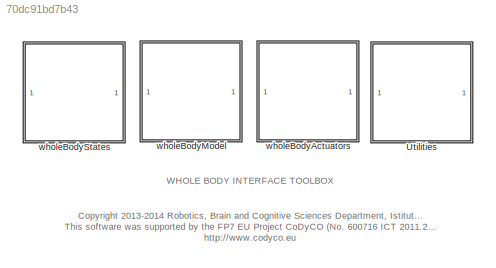
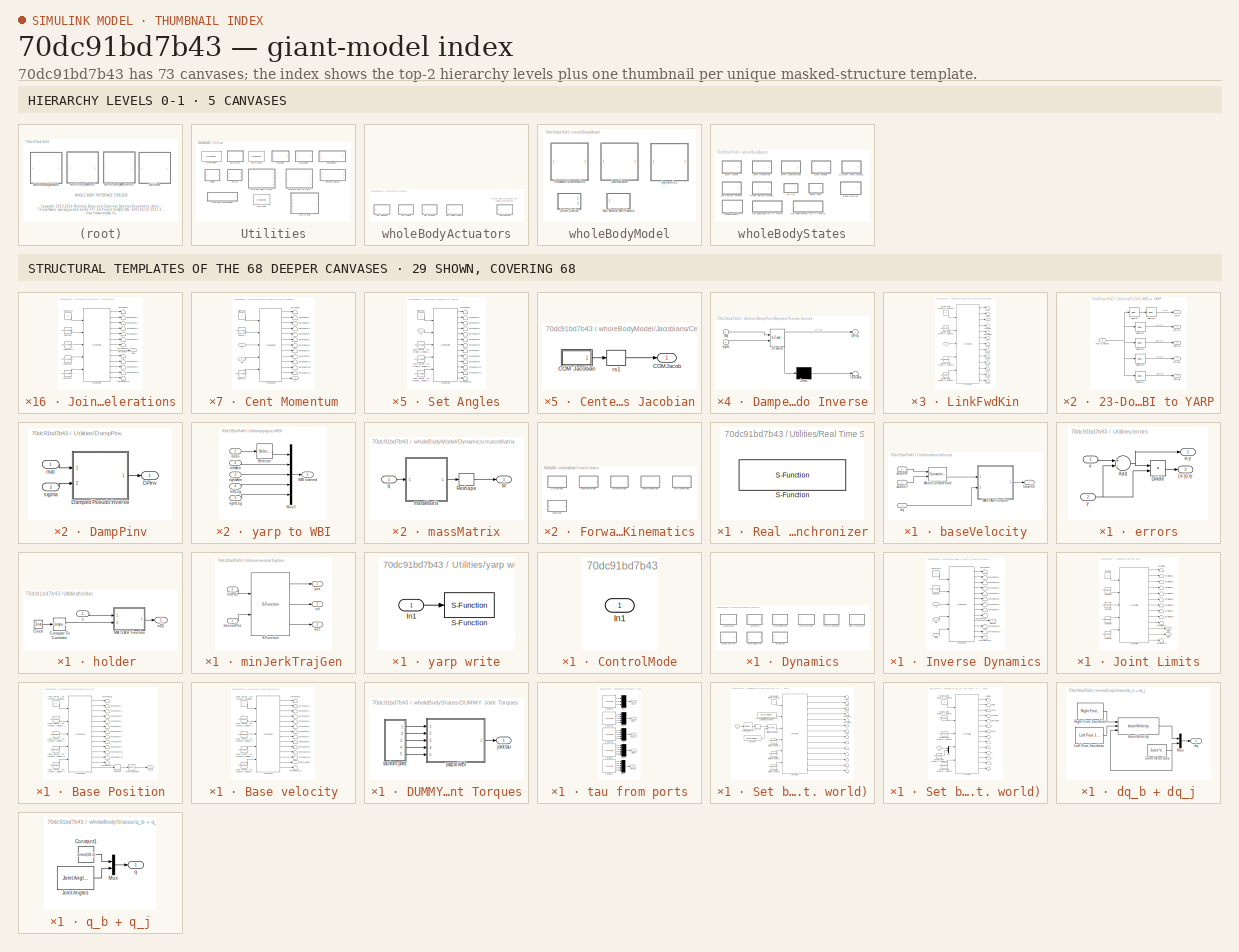
[diagram: thumbnail index - top-2 hierarchy levels (5 canvases) + 29 structural-template representatives of the remaining 68 canvases]
MODEL slx_70dc91bd7b43
KIND library
BLOCK [SubSystem] Utilities
  Ports = []
  RequestExecContextInheritance = off
  Variant = off
BLOCK [SubSystem] Utilities/23-DoFs WBI to YARP
  Ports = [1, 5]
  RequestExecContextInheritance = off
  Variant = off
BLOCK [Selector] Utilities/23-DoFs WBI to YARP/Selector
  IndexOptions = Index vector (dialog)
  Indices = [1:3]
  InputPortWidth = ROBOT_DOF
  OutputSizes = 1
  Ports = [1, 1]
BLOCK [Selector] Utilities/23-DoFs WBI to YARP/Selector1
  IndexOptions = Index vector (dialog)
  Indices = [4:7]
  InputPortWidth = ROBOT_DOF
  OutputSizes = 1
  Ports = [1, 1]
BLOCK [Selector] Utilities/23-DoFs WBI to YARP/Selector2
  IndexOptions = Index vector (dialog)
  Indices = [8:11]
  InputPortWidth = ROBOT_DOF
  OutputSizes = 1
  Ports = [1, 1]
BLOCK [Selector] Utilities/23-DoFs WBI to YARP/Selector3
  IndexOptions = Index vector (dialog)
  Indices = [12:17]
  InputPortWidth = ROBOT_DOF
  OutputSizes = 1
  Ports = [1, 1]
BLOCK [Selector] Utilities/23-DoFs WBI to YARP/Selector4
  IndexOptions = Index vector (dialog)
  Indices = [18:23]
  InputPortWidth = ROBOT_DOF
  OutputSizes = 1
  Ports = [1, 1]
BLOCK [Selector] Utilities/23-DoFs WBI to YARP/Selector6
  IndexOptions = Index vector (dialog)
  Indices = [3 2 1]
  InputPortWidth = 3
  OutputSizes = 1
  Ports = [1, 1]
BLOCK [Inport] Utilities/23-DoFs WBI to YARP/WBI Ordered
  IconDisplay = Port number
BLOCK [Outport] Utilities/23-DoFs WBI to YARP/leftArm
  IconDisplay = Port number
  Port = 2
BLOCK [Outport] Utilities/23-DoFs WBI to YARP/leftLeg
  IconDisplay = Port number
  Port = 4
BLOCK [Outport] Utilities/23-DoFs WBI to YARP/rightArm
  IconDisplay = Port number
  Port = 3
BLOCK [Outport] Utilities/23-DoFs WBI to YARP/rightLeg
  IconDisplay = Port number
  Port = 5
BLOCK [Outport] Utilities/23-DoFs WBI to YARP/torso
  IconDisplay = Port number
BLOCK [SubSystem] Utilities/25-DoFs WBI to yarp
  Ports = [1, 5]
  RequestExecContextInheritance = off
  Variant = off
BLOCK [Selector] Utilities/25-DoFs WBI to yarp/Selector
  IndexOptions = Index vector (dialog)
  Indices = [1:3]
  InputPortWidth = ROBOT_DOF
  OutputSizes = 1
  Ports = [1, 1]
BLOCK [Selector] Utilities/25-DoFs WBI to yarp/Selector1
  IndexOptions = Index vector (dialog)
  Indices = [4:8]
  InputPortWidth = ROBOT_DOF
  OutputSizes = 1
  Ports = [1, 1]
BLOCK [Selector] Utilities/25-DoFs WBI to yarp/Selector2
  IndexOptions = Index vector (dialog)
  Indices = [9:13]
  InputPortWidth = ROBOT_DOF
  OutputSizes = 1
  Ports = [1, 1]
BLOCK [Selector] Utilities/25-DoFs WBI to yarp/Selector3
  IndexOptions = Index vector (dialog)
  Indices = [14:19]
  InputPortWidth = ROBOT_DOF
  OutputSizes = 1
  Ports = [1, 1]
BLOCK [Selector] Utilities/25-DoFs WBI to yarp/Selector4
  IndexOptions = Index vector (dialog)
  Indices = [20:25]
  InputPortWidth = ROBOT_DOF
  OutputSizes = 1
  Ports = [1, 1]
BLOCK [Selector] Utilities/25-DoFs WBI to yarp/Selector6
  IndexOptions = Index vector (dialog)
  Indices = [3 2 1]
  InputPortWidth = 3
  OutputSizes = 1
  Ports = [1, 1]
BLOCK [Inport] Utilities/25-DoFs WBI to yarp/WBI ordered
  IconDisplay = Port number
BLOCK [Outport] Utilities/25-DoFs WBI to yarp/leftArm
  IconDisplay = Port number
  Port = 2
BLOCK [Outport] Utilities/25-DoFs WBI to yarp/leftLeg
  IconDisplay = Port number
  Port = 4
BLOCK [Outport] Utilities/25-DoFs WBI to yarp/rightArm
  IconDisplay = Port number
  Port = 3
BLOCK [Outport] Utilities/25-DoFs WBI to yarp/rightLeg
  IconDisplay = Port number
  Port = 5
BLOCK [Outport] Utilities/25-DoFs WBI to yarp/torso
  IconDisplay = Port number
BLOCK [SubSystem] Utilities/DampPinv
  Ports = [2, 1]
  RequestExecContextInheritance = off
  Variant = off
BLOCK [Outport] Utilities/DampPinv/DPinv
  IconDisplay = Port number
BLOCK [SubSystem] Utilities/DampPinv/Damped Pseudo Inverse
  ErrorFcn = Stateflow.Translate.translate
  PermitHierarchicalResolution = ParametersOnly
  Ports = [2, 1]
  RequestExecContextInheritance = off
  SFBlockType = MATLAB Function
  TreatAsAtomicUnit = on
  Variant = off
BLOCK [Demux] Utilities/DampPinv/Damped Pseudo Inverse/ Demux 
  Outputs = 1
  Ports = [1, 1]
BLOCK [S-Function] Utilities/DampPinv/Damped Pseudo Inverse/ SFunction 
  EnableBusSupport = off
  FunctionName = sf_sfun
  PortCounts = [2 2]
  Ports = [2, 2]
  SFunctionDeploymentMode = off
  Tag = Stateflow S-Function WBCLibrary 6
BLOCK [Terminator] Utilities/DampPinv/Damped Pseudo Inverse/ Terminator 
BLOCK [Outport] Utilities/DampPinv/Damped Pseudo Inverse/DPinv
  IconDisplay = Port number
BLOCK [Inport] Utilities/DampPinv/Damped Pseudo Inverse/mat
  IconDisplay = Port number
BLOCK [Inport] Utilities/DampPinv/Damped Pseudo Inverse/sigma
  IconDisplay = Port number
  Port = 2
BLOCK [Inport] Utilities/DampPinv/mat
  IconDisplay = Port number
BLOCK [Inport] Utilities/DampPinv/sigma
  IconDisplay = Port number
  Port = 2
BLOCK [SubSystem] Utilities/Real Time Synchronizer
  Ports = []
  Priority = -10
  RequestExecContextInheritance = off
  Variant = off
BLOCK [S-Function] Utilities/Real Time Synchronizer/S-Function
  EnableBusSupport = off
  FunctionName = realTimeSynchronizer
  Parameters = threadPeriod
  Ports = []
  SFunctionDeploymentMode = off
BLOCK [SubSystem] Utilities/TruncPinv
  Ports = [2, 1]
  RequestExecContextInheritance = off
  Variant = off
BLOCK [Inport] Utilities/TruncPinv/S
  IconDisplay = Port number
BLOCK [Outport] Utilities/TruncPinv/Tpinv
  IconDisplay = Port number
BLOCK [SubSystem] Utilities/TruncPinv/Truncated PseudoInverse
  ErrorFcn = Stateflow.Translate.translate
  PermitHierarchicalResolution = ParametersOnly
  Ports = [2, 1]
  RequestExecContextInheritance = off
  SFBlockType = MATLAB Function
  TreatAsAtomicUnit = on
  Variant = off
BLOCK [Demux] Utilities/TruncPinv/Truncated PseudoInverse/ Demux 
  Outputs = 1
  Ports = [1, 1]
BLOCK [S-Function] Utilities/TruncPinv/Truncated PseudoInverse/ SFunction 
  EnableBusSupport = off
  FunctionName = sf_sfun
  PortCounts = [2 2]
  Ports = [2, 2]
  SFunctionDeploymentMode = off
  Tag = Stateflow S-Function WBCLibrary 7
BLOCK [Terminator] Utilities/TruncPinv/Truncated PseudoInverse/ Terminator 
BLOCK [Outport] Utilities/TruncPinv/Truncated PseudoInverse/TPinv
  IconDisplay = Port number
BLOCK [Inport] Utilities/TruncPinv/Truncated PseudoInverse/mat
  IconDisplay = Port number
BLOCK [Inport] Utilities/TruncPinv/Truncated PseudoInverse/tol
  IconDisplay = Port number
  Port = 2
BLOCK [Inport] Utilities/TruncPinv/tol
  IconDisplay = Port number
  Port = 2
BLOCK [S-Function] Utilities/YARP Read
  EnableBusSupport = off
  FunctionName = yarpRead
  Parameters = portName,signalSize,blocking,timestamp,autoconnect,errorOnConnection
  Ports = [0, 2]
  SFunctionDeploymentMode = off
BLOCK [SubSystem] Utilities/baseVelocity
  Ports = [3, 1]
  RequestExecContextInheritance = off
  Variant = off
BLOCK [Inport] Utilities/baseVelocity/JacobLF
  IconDisplay = Port number
  Port = 2
BLOCK [Inport] Utilities/baseVelocity/JacobRF
  IconDisplay = Port number
BLOCK [SubSystem] Utilities/baseVelocity/MATLAB Function
  ErrorFcn = Stateflow.Translate.translate
  PermitHierarchicalResolution = ParametersOnly
  Ports = [2, 1]
  RequestExecContextInheritance = off
  SFBlockType = MATLAB Function
  TreatAsAtomicUnit = on
  Variant = off
BLOCK [Demux] Utilities/baseVelocity/MATLAB Function/ Demux 
  Outputs = 1
  Ports = [1, 1]
BLOCK [S-Function] Utilities/baseVelocity/MATLAB Function/ SFunction 
  EnableBusSupport = off
  FunctionName = sf_sfun
  PortCounts = [2 2]
  Ports = [2, 2]
  SFunctionDeploymentMode = off
  Tag = Stateflow S-Function WBCLibrary 2
BLOCK [Terminator] Utilities/baseVelocity/MATLAB Function/ Terminator 
BLOCK [Inport] Utilities/baseVelocity/MATLAB Function/JcIn
  IconDisplay = Port number
BLOCK [Inport] Utilities/baseVelocity/MATLAB Function/qD
  IconDisplay = Port number
  Port = 2
BLOCK [Outport] Utilities/baseVelocity/MATLAB Function/y
  IconDisplay = Port number
BLOCK [Concatenate] Utilities/baseVelocity/Matrix Concatenate
  Mode = Multidimensional array
  Ports = [2, 1]
BLOCK [Outport] Utilities/baseVelocity/baseVel
  IconDisplay = Port number
BLOCK [Inport] Utilities/baseVelocity/dq
  IconDisplay = Port number
  Port = 3
BLOCK [SubSystem] Utilities/errors
  Ports = [2, 2]
  RequestExecContextInheritance = off
  Variant = off
BLOCK [Outport] Utilities/errors/(x-y).//y
  IconDisplay = Port number
  Port = 2
BLOCK [Sum] Utilities/errors/Add
  InputSameDT = off
  Inputs = +-
  OutDataTypeStr = Inherit: Inherit via internal rule
  Ports = [2, 1]
  SaturateOnIntegerOverflow = off
BLOCK [Product] Utilities/errors/Divide
  InputSameDT = off
  Inputs = */
  OutDataTypeStr = Inherit: Inherit via internal rule
  Ports = [2, 1]
  RndMeth = Floor
  SaturateOnIntegerOverflow = off
BLOCK [Inport] Utilities/errors/x
  IconDisplay = Port number
BLOCK [Outport] Utilities/errors/x-y
  IconDisplay = Port number
BLOCK [Inport] Utilities/errors/y
  IconDisplay = Port number
  Port = 2
BLOCK [SubSystem] Utilities/holder 
  Ports = [1, 1]
  RequestExecContextInheritance = off
  Variant = off
BLOCK [Clock] Utilities/holder /Clock
BLOCK [Reference] Utilities/holder /Compare To Constant  REF=simulink/Logic and Bit
Operations/Compare
To Constant
  OutDataTypeStr = boolean
  Ports = [1, 1]
  SourceBlock = simulink/Logic and Bit\nOperations/Compare\nTo Constant
  SourceType = Compare To Constant
  ZeroCross = on
  const = 0
  relop = ==
BLOCK [SubSystem] Utilities/holder /MATLAB Function
  ErrorFcn = Stateflow.Translate.translate
  PermitHierarchicalResolution = ParametersOnly
  Ports = [2, 1]
  RequestExecContextInheritance = off
  SFBlockType = MATLAB Function
  TreatAsAtomicUnit = on
  Variant = off
BLOCK [Demux] Utilities/holder /MATLAB Function/ Demux 
  Outputs = 1
  Ports = [1, 1]
BLOCK [S-Function] Utilities/holder /MATLAB Function/ SFunction 
  EnableBusSupport = off
  FunctionName = sf_sfun
  PortCounts = [2 2]
  Ports = [2, 2]
  SFunctionDeploymentMode = off
  Tag = Stateflow S-Function WBCLibrary 1
BLOCK [Terminator] Utilities/holder /MATLAB Function/ Terminator 
BLOCK [Inport] Utilities/holder /MATLAB Function/s
  IconDisplay = Port number
BLOCK [Outport] Utilities/holder /MATLAB Function/s0
  IconDisplay = Port number
BLOCK [Inport] Utilities/holder /MATLAB Function/unused
  IconDisplay = Port number
  Port = 2
BLOCK [Inport] Utilities/holder /s
  IconDisplay = Port number
BLOCK [Outport] Utilities/holder /s(0)
  IconDisplay = Port number
BLOCK [SubSystem] Utilities/minJerkTrajGen
  Ports = [2, 3]
  RequestExecContextInheritance = off
  Variant = off
BLOCK [S-Function] Utilities/minJerkTrajGen/S-Function
  EnableBusSupport = off
  FunctionName = minJerkGenerator
  Parameters = dim, rate, tt
  Ports = [2, 3]
  SFunctionDeploymentMode = off
BLOCK [Outport] Utilities/minJerkTrajGen/acc
  IconDisplay = Port number
  Port = 3
BLOCK [Inport] Utilities/minJerkTrajGen/desiredPos
  IconDisplay = Port number
BLOCK [Inport] Utilities/minJerkTrajGen/initPos
  IconDisplay = Port number
  Port = 2
BLOCK [Outport] Utilities/minJerkTrajGen/pos
  IconDisplay = Port number
BLOCK [Outport] Utilities/minJerkTrajGen/vel
  IconDisplay = Port number
  Port = 2
BLOCK [S-Function] Utilities/synchronize
  EnableBusSupport = off
  FunctionName = ySynchronizer
  Parameters = rate
  Ports = [0, 1]
  SFunctionDeploymentMode = off
BLOCK [S-Function] Utilities/yarp read
  EnableBusSupport = off
  FunctionName = yRead
  Parameters = from,to,num,blocking,timestamp,autoconnect
  Ports = [0, 3]
  SFunctionDeploymentMode = off
BLOCK [SubSystem] Utilities/yarp to WBI
  Ports = [5, 1]
  RequestExecContextInheritance = off
  Variant = off
BLOCK [Mux] Utilities/yarp to WBI/Mux3
  DisplayOption = bar
  Inputs = 5
  Ports = [5, 1]
BLOCK [Selector] Utilities/yarp to WBI/Selector
  IndexOptions = Index vector (dialog)
  Indices = [3 2 1]
  InputPortWidth = 3
  OutputSizes = 1
  Ports = [1, 1]
BLOCK [Outport] Utilities/yarp to WBI/WBI ordered
  IconDisplay = Port number
BLOCK [Inport] Utilities/yarp to WBI/leftArm
  IconDisplay = Port number
  Port = 2
BLOCK [Inport] Utilities/yarp to WBI/leftLeg
  IconDisplay = Port number
  Port = 4
BLOCK [Inport] Utilities/yarp to WBI/rightArm
  IconDisplay = Port number
  Port = 3
BLOCK [Inport] Utilities/yarp to WBI/rightLeg
  IconDisplay = Port number
  Port = 5
BLOCK [Inport] Utilities/yarp to WBI/torso
  IconDisplay = Port number
BLOCK [SubSystem] Utilities/yarp write
  Ports = [1]
  RequestExecContextInheritance = off
  Variant = off
BLOCK [Inport] Utilities/yarp write/In1
  IconDisplay = Port number
BLOCK [S-Function] Utilities/yarp write/S-Function
  EnableBusSupport = off
  FunctionName = yWrite
  Parameters = port_name
  Ports = [1]
  SFunctionDeploymentMode = off
BLOCK [SubSystem] wholeBodyActuators
  Ports = []
  RequestExecContextInheritance = off
  Variant = off
BLOCK [SubSystem] wholeBodyActuators/ControlMode
  Ports = [1]
  RequestExecContextInheritance = off
  Variant = off
BLOCK [Inport] wholeBodyActuators/ControlMode/In1
  IconDisplay = Port number
BLOCK [SubSystem] wholeBodyActuators/Set Angles
  Ports = [1]
  RequestExecContextInheritance = off
  Variant = off
BLOCK [SubSystem] wholeBodyActuators/Set Angles (Direct)
  Ports = [1]
  RequestExecContextInheritance = off
  Variant = off
BLOCK [Constant] wholeBodyActuators/Set Angles (Direct)/Input Param. for forwardKinematics and computeJacobians 
  OutDataTypeStr = int8
  SampleTime = Ts
  Value = 0
BLOCK [Constant] wholeBodyActuators/Set Angles (Direct)/Input Param. for forwardKinematics and computeJacobians 1
  OutDataTypeStr = double
  SampleTime = Ts
  Value = zeros(ROBOT_DOF+16,1)
BLOCK [Constant] wholeBodyActuators/Set Angles (Direct)/Input Param. for forwardKinematics and computeJacobians 2
  OutDataTypeStr = double
  SampleTime = Ts
  Value = zeros(ROBOT_DOF+6,1)
BLOCK [Constant] wholeBodyActuators/Set Angles (Direct)/Input Param. for forwardKinematics and computeJacobians 3
  OutDataTypeStr = double
  SampleTime = Ts
  Value = zeros(ROBOT_DOF+6,1)
BLOCK [S-Function] wholeBodyActuators/Set Angles (Direct)/S-Function
  EnableBusSupport = off
  FunctionName = robotState
  Parameters = val,robotname,localname,linkname
  Ports = [5, 13]
  SFunctionDeploymentMode = off
BLOCK [Terminator] wholeBodyActuators/Set Angles (Direct)/Terminator1
BLOCK [Terminator] wholeBodyActuators/Set Angles (Direct)/Terminator10
BLOCK [Terminator] wholeBodyActuators/Set Angles (Direct)/Terminator11
BLOCK [Terminator] wholeBodyActuators/Set Angles (Direct)/Terminator12
BLOCK [Terminator] wholeBodyActuators/Set Angles (Direct)/Terminator13
BLOCK [Terminator] wholeBodyActuators/Set Angles (Direct)/Terminator2
BLOCK [Terminator] wholeBodyActuators/Set Angles (Direct)/Terminator3
BLOCK [Terminator] wholeBodyActuators/Set Angles (Direct)/Terminator4
BLOCK [Terminator] wholeBodyActuators/Set Angles (Direct)/Terminator5
BLOCK [Terminator] wholeBodyActuators/Set Angles (Direct)/Terminator6
BLOCK [Terminator] wholeBodyActuators/Set Angles (Direct)/Terminator7
BLOCK [Terminator] wholeBodyActuators/Set Angles (Direct)/Terminator8
BLOCK [Terminator] wholeBodyActuators/Set Angles (Direct)/Terminator9
BLOCK [Inport] wholeBodyActuators/Set Angles (Direct)/q_j
  IconDisplay = Port number
BLOCK [Constant] wholeBodyActuators/Set Angles/Input Param. for forwardKinematics and computeJacobians 1
  OutDataTypeStr = double
  SampleTime = Ts
  Value = zeros(ROBOT_DOF+16,1)
BLOCK [Constant] wholeBodyActuators/Set Angles/Input Param. for forwardKinematics and computeJacobians 2
  OutDataTypeStr = double
  SampleTime = Ts
  Value = zeros(ROBOT_DOF+6,1)
BLOCK [Constant] wholeBodyActuators/Set Angles/Input Param. for forwardKinematics and computeJacobians 3
  OutDataTypeStr = double
  SampleTime = Ts
  Value = zeros(ROBOT_DOF+6,1)
BLOCK [Constant] wholeBodyActuators/Set Angles/RightFoot
  OutDataTypeStr = int8
  SampleTime = Ts
  Value = 0
BLOCK [S-Function] wholeBodyActuators/Set Angles/S-Function
  EnableBusSupport = off
  FunctionName = robotState
  Parameters = val,robotName,localName,'na'
  Ports = [5, 13]
  SFunctionDeploymentMode = off
BLOCK [Terminator] wholeBodyActuators/Set Angles/Terminator
BLOCK [Terminator] wholeBodyActuators/Set Angles/Terminator1
BLOCK [Terminator] wholeBodyActuators/Set Angles/Terminator10
BLOCK [Terminator] wholeBodyActuators/Set Angles/Terminator11
BLOCK [Terminator] wholeBodyActuators/Set Angles/Terminator12
BLOCK [Terminator] wholeBodyActuators/Set Angles/Terminator2
BLOCK [Terminator] wholeBodyActuators/Set Angles/Terminator3
BLOCK [Terminator] wholeBodyActuators/Set Angles/Terminator4
BLOCK [Terminator] wholeBodyActuators/Set Angles/Terminator5
BLOCK [Terminator] wholeBodyActuators/Set Angles/Terminator6
BLOCK [Terminator] wholeBodyActuators/Set Angles/Terminator7
BLOCK [Terminator] wholeBodyActuators/Set Angles/Terminator8
BLOCK [Terminator] wholeBodyActuators/Set Angles/Terminator9
BLOCK [Inport] wholeBodyActuators/Set Angles/q_j
  IconDisplay = Port number
BLOCK [SubSystem] wholeBodyActuators/Set Torques
  Ports = [1]
  RequestExecContextInheritance = off
  Variant = off
BLOCK [Constant] wholeBodyActuators/Set Torques/Input Param. for forwardKinematics and computeJacobians 1
  OutDataTypeStr = double
  SampleTime = Ts
  Value = zeros(ROBOT_DOF+16,1)
BLOCK [Constant] wholeBodyActuators/Set Torques/Input Param. for forwardKinematics and computeJacobians 2
  OutDataTypeStr = double
  SampleTime = Ts
  Value = zeros(ROBOT_DOF+6,1)
BLOCK [Constant] wholeBodyActuators/Set Torques/Input Param. for forwardKinematics and computeJacobians 3
  OutDataTypeStr = double
  SampleTime = Ts
  Value = zeros(ROBOT_DOF+6,1)
BLOCK [Constant] wholeBodyActuators/Set Torques/RightFoot
  OutDataTypeStr = int8
  SampleTime = Ts
  Value = 0
BLOCK [S-Function] wholeBodyActuators/Set Torques/S-Function
  EnableBusSupport = off
  FunctionName = robotState
  Parameters = val,robotName,localName,'na'
  Ports = [5, 13]
  SFunctionDeploymentMode = off
BLOCK [Terminator] wholeBodyActuators/Set Torques/Terminator
BLOCK [Terminator] wholeBodyActuators/Set Torques/Terminator1
BLOCK [Terminator] wholeBodyActuators/Set Torques/Terminator10
BLOCK [Terminator] wholeBodyActuators/Set Torques/Terminator11
BLOCK [Terminator] wholeBodyActuators/Set Torques/Terminator12
BLOCK [Terminator] wholeBodyActuators/Set Torques/Terminator2
BLOCK [Terminator] wholeBodyActuators/Set Torques/Terminator3
BLOCK [Terminator] wholeBodyActuators/Set Torques/Terminator4
BLOCK [Terminator] wholeBodyActuators/Set Torques/Terminator5
BLOCK [Terminator] wholeBodyActuators/Set Torques/Terminator6
BLOCK [Terminator] wholeBodyActuators/Set Torques/Terminator7
BLOCK [Terminator] wholeBodyActuators/Set Torques/Terminator8
BLOCK [Terminator] wholeBodyActuators/Set Torques/Terminator9
BLOCK [Inport] wholeBodyActuators/Set Torques/tau_j
  IconDisplay = Port number
BLOCK [SubSystem] wholeBodyActuators/Set Velocities
  Ports = [1]
  RequestExecContextInheritance = off
  Variant = off
BLOCK [Constant] wholeBodyActuators/Set Velocities/Input Param. for forwardKinematics and computeJacobians 
  OutDataTypeStr = int8
  SampleTime = Ts
  Value = 0
BLOCK [Constant] wholeBodyActuators/Set Velocities/Input Param. for forwardKinematics and computeJacobians 1
  OutDataTypeStr = double
  SampleTime = Ts
  Value = zeros(ROBOT_DOF+16,1)
BLOCK [Constant] wholeBodyActuators/Set Velocities/Input Param. for forwardKinematics and computeJacobians 2
  OutDataTypeStr = double
  SampleTime = Ts
  Value = zeros(ROBOT_DOF+6,1)
BLOCK [Constant] wholeBodyActuators/Set Velocities/Input Param. for forwardKinematics and computeJacobians 3
  OutDataTypeStr = double
  SampleTime = Ts
  Value = zeros(ROBOT_DOF+6,1)
BLOCK [S-Function] wholeBodyActuators/Set Velocities/S-Function
  EnableBusSupport = off
  FunctionName = robotState
  Parameters = val,robotname,localname,linkname
  Ports = [5, 13]
  SFunctionDeploymentMode = off
BLOCK [Terminator] wholeBodyActuators/Set Velocities/Terminator1
BLOCK [Terminator] wholeBodyActuators/Set Velocities/Terminator10
BLOCK [Terminator] wholeBodyActuators/Set Velocities/Terminator11
BLOCK [Terminator] wholeBodyActuators/Set Velocities/Terminator12
BLOCK [Terminator] wholeBodyActuators/Set Velocities/Terminator13
BLOCK [Terminator] wholeBodyActuators/Set Velocities/Terminator2
BLOCK [Terminator] wholeBodyActuators/Set Velocities/Terminator3
BLOCK [Terminator] wholeBodyActuators/Set Velocities/Terminator4
BLOCK [Terminator] wholeBodyActuators/Set Velocities/Terminator5
BLOCK [Terminator] wholeBodyActuators/Set Velocities/Terminator6
BLOCK [Terminator] wholeBodyActuators/Set Velocities/Terminator7
BLOCK [Terminator] wholeBodyActuators/Set Velocities/Terminator8
BLOCK [Terminator] wholeBodyActuators/Set Velocities/Terminator9
BLOCK [Inport] wholeBodyActuators/Set Velocities/dq_j
  IconDisplay = Port number
BLOCK [SubSystem] wholeBodyModel
  Ports = []
  RequestExecContextInheritance = off
  Variant = off
BLOCK [SubSystem] wholeBodyModel/Dynamics
  Ports = []
  RequestExecContextInheritance = off
  Variant = off
BLOCK [SubSystem] wholeBodyModel/Dynamics/Cent Momentum
  Ports = [2, 1]
  RequestExecContextInheritance = off
  Variant = off
BLOCK [Outport] wholeBodyModel/Dynamics/Cent Momentum/H
  IconDisplay = Port number
BLOCK [Constant] wholeBodyModel/Dynamics/Cent Momentum/RightFoot
  OutDataTypeStr = int8
  SampleTime = Ts
  Value = 0
BLOCK [S-Function] wholeBodyModel/Dynamics/Cent Momentum/S-Function
  EnableBusSupport = off
  FunctionName = robotState
  Parameters = 14,robotName,localName,'na'
  Ports = [5, 13]
  SFunctionDeploymentMode = off
BLOCK [Terminator] wholeBodyModel/Dynamics/Cent Momentum/Terminator
BLOCK [Terminator] wholeBodyModel/Dynamics/Cent Momentum/Terminator1
BLOCK [Terminator] wholeBodyModel/Dynamics/Cent Momentum/Terminator10
BLOCK [Terminator] wholeBodyModel/Dynamics/Cent Momentum/Terminator11
BLOCK [Terminator] wholeBodyModel/Dynamics/Cent Momentum/Terminator2
BLOCK [Terminator] wholeBodyModel/Dynamics/Cent Momentum/Terminator3
BLOCK [Terminator] wholeBodyModel/Dynamics/Cent Momentum/Terminator4
BLOCK [Terminator] wholeBodyModel/Dynamics/Cent Momentum/Terminator5
BLOCK [Terminator] wholeBodyModel/Dynamics/Cent Momentum/Terminator6
BLOCK [Terminator] wholeBodyModel/Dynamics/Cent Momentum/Terminator7
BLOCK [Terminator] wholeBodyModel/Dynamics/Cent Momentum/Terminator8
BLOCK [Terminator] wholeBodyModel/Dynamics/Cent Momentum/Terminator9
BLOCK [Inport] wholeBodyModel/Dynamics/Cent Momentum/dq
  IconDisplay = Port number
  Port = 2
BLOCK [Constant] wholeBodyModel/Dynamics/Cent Momentum/dummy
  OutDataTypeStr = double
  SampleTime = Ts
  Value = zeros(ROBOT_DOF,1)
BLOCK [Constant] wholeBodyModel/Dynamics/Cent Momentum/dummy3
  OutDataTypeStr = double
  SampleTime = Ts
  Value = zeros(ROBOT_DOF+6,1)
BLOCK [Inport] wholeBodyModel/Dynamics/Cent Momentum/q
  IconDisplay = Port number
BLOCK [SubSystem] wholeBodyModel/Dynamics/Inverse Dynamics
  Ports = [3, 1]
  RequestExecContextInheritance = off
  Variant = off
BLOCK [Constant] wholeBodyModel/Dynamics/Inverse Dynamics/Constant
  OutDataTypeStr = double
  SampleTime = Ts
  Value = zeros(ROBOT_DOF,1)
BLOCK [Constant] wholeBodyModel/Dynamics/Inverse Dynamics/Constant2
  OutDataTypeStr = int8
  SampleTime = Ts
  Value = 0
BLOCK [S-Function] wholeBodyModel/Dynamics/Inverse Dynamics/S-Function
  EnableBusSupport = off
  FunctionName = robotState
  Parameters = 12,robotName,localName,'na'
  Ports = [5, 13]
  SFunctionDeploymentMode = off
BLOCK [Terminator] wholeBodyModel/Dynamics/Inverse Dynamics/Terminator
BLOCK [Terminator] wholeBodyModel/Dynamics/Inverse Dynamics/Terminator1
BLOCK [Terminator] wholeBodyModel/Dynamics/Inverse Dynamics/Terminator10
BLOCK [Terminator] wholeBodyModel/Dynamics/Inverse Dynamics/Terminator11
BLOCK [Terminator] wholeBodyModel/Dynamics/Inverse Dynamics/Terminator2
BLOCK [Terminator] wholeBodyModel/Dynamics/Inverse Dynamics/Terminator3
BLOCK [Terminator] wholeBodyModel/Dynamics/Inverse Dynamics/Terminator4
BLOCK [Terminator] wholeBodyModel/Dynamics/Inverse Dynamics/Terminator5
BLOCK [Terminator] wholeBodyModel/Dynamics/Inverse Dynamics/Terminator6
BLOCK [Terminator] wholeBodyModel/Dynamics/Inverse Dynamics/Terminator7
BLOCK [Terminator] wholeBodyModel/Dynamics/Inverse Dynamics/Terminator8
BLOCK [Terminator] wholeBodyModel/Dynamics/Inverse Dynamics/Terminator9
BLOCK [Inport] wholeBodyModel/Dynamics/Inverse Dynamics/ddq
  IconDisplay = Port number
  Port = 3
BLOCK [Inport] wholeBodyModel/Dynamics/Inverse Dynamics/dq
  IconDisplay = Port number
  Port = 2
BLOCK [Outport] wholeBodyModel/Dynamics/Inverse Dynamics/genTau
  IconDisplay = Port number
BLOCK [Inport] wholeBodyModel/Dynamics/Inverse Dynamics/q
  IconDisplay = Port number
BLOCK [SubSystem] wholeBodyModel/Dynamics/computeh
  Ports = [2, 1]
  RequestExecContextInheritance = off
  Variant = off
BLOCK [Terminator] wholeBodyModel/Dynamics/computeh/ 
BLOCK [Terminator] wholeBodyModel/Dynamics/computeh/  
BLOCK [Terminator] wholeBodyModel/Dynamics/computeh/  1
BLOCK [Terminator] wholeBodyModel/Dynamics/computeh/  2
BLOCK [Constant] wholeBodyModel/Dynamics/computeh/Constant
  OutDataTypeStr = int8
  SampleTime = Ts
  Value = 0
BLOCK [Constant] wholeBodyModel/Dynamics/computeh/Constant1
  OutDataTypeStr = double
  SampleTime = Ts
  Value = zeros(ROBOT_DOF,1)
BLOCK [Constant] wholeBodyModel/Dynamics/computeh/Constant4
  OutDataTypeStr = double
  SampleTime = Ts
  Value = zeros(ROBOT_DOF+6,1)
BLOCK [S-Function] wholeBodyModel/Dynamics/computeh/S-Function
  EnableBusSupport = off
  FunctionName = robotState
  Parameters = val,robotname,localname,'na'
  Ports = [5, 13]
  SFunctionDeploymentMode = off
BLOCK [Inport] wholeBodyModel/Dynamics/computeh/dq
  IconDisplay = Port number
  Port = 2
BLOCK [Outport] wholeBodyModel/Dynamics/computeh/h
  IconDisplay = Port number
BLOCK [Terminator] wholeBodyModel/Dynamics/computeh/h1
BLOCK [Terminator] wholeBodyModel/Dynamics/computeh/h2
BLOCK [Terminator] wholeBodyModel/Dynamics/computeh/h3
BLOCK [Terminator] wholeBodyModel/Dynamics/computeh/h4
BLOCK [Terminator] wholeBodyModel/Dynamics/computeh/h5
BLOCK [Terminator] wholeBodyModel/Dynamics/computeh/h6
BLOCK [Terminator] wholeBodyModel/Dynamics/computeh/h7
BLOCK [Terminator] wholeBodyModel/Dynamics/computeh/h8
BLOCK [Inport] wholeBodyModel/Dynamics/computeh/q
  IconDisplay = Port number
BLOCK [SubSystem] wholeBodyModel/Dynamics/dJ*dq LeftArm
  Ports = [2, 1]
  RequestExecContextInheritance = off
  Variant = off
BLOCK [Constant] wholeBodyModel/Dynamics/dJ*dq LeftArm/LeftFoot
  OutDataTypeStr = int8
  SampleTime = Ts
  Value = 4
BLOCK [S-Function] wholeBodyModel/Dynamics/dJ*dq LeftArm/S-Function
  EnableBusSupport = off
  FunctionName = robotState
  Parameters = val,robotName,localName,'na'
  Ports = [5, 13]
  SFunctionDeploymentMode = off
BLOCK [Terminator] wholeBodyModel/Dynamics/dJ*dq LeftArm/Terminator
BLOCK [Terminator] wholeBodyModel/Dynamics/dJ*dq LeftArm/Terminator1
BLOCK [Terminator] wholeBodyModel/Dynamics/dJ*dq LeftArm/Terminator10
BLOCK [Terminator] wholeBodyModel/Dynamics/dJ*dq LeftArm/Terminator11
BLOCK [Terminator] wholeBodyModel/Dynamics/dJ*dq LeftArm/Terminator2
BLOCK [Terminator] wholeBodyModel/Dynamics/dJ*dq LeftArm/Terminator3
BLOCK [Terminator] wholeBodyModel/Dynamics/dJ*dq LeftArm/Terminator4
BLOCK [Terminator] wholeBodyModel/Dynamics/dJ*dq LeftArm/Terminator5
BLOCK [Terminator] wholeBodyModel/Dynamics/dJ*dq LeftArm/Terminator6
BLOCK [Terminator] wholeBodyModel/Dynamics/dJ*dq LeftArm/Terminator7
BLOCK [Terminator] wholeBodyModel/Dynamics/dJ*dq LeftArm/Terminator8
BLOCK [Terminator] wholeBodyModel/Dynamics/dJ*dq LeftArm/Terminator9
BLOCK [Outport] wholeBodyModel/Dynamics/dJ*dq LeftArm/dJdqLA
  IconDisplay = Port number
BLOCK [Inport] wholeBodyModel/Dynamics/dJ*dq LeftArm/dq
  IconDisplay = Port number
  Port = 2
BLOCK [Constant] wholeBodyModel/Dynamics/dJ*dq LeftArm/dummy
  OutDataTypeStr = double
  SampleTime = Ts
  Value = zeros(ROBOT_DOF,1)
BLOCK [Constant] wholeBodyModel/Dynamics/dJ*dq LeftArm/dummy3
  OutDataTypeStr = double
  SampleTime = Ts
  Value = zeros(ROBOT_DOF+6,1)
BLOCK [Inport] wholeBodyModel/Dynamics/dJ*dq LeftArm/q
  IconDisplay = Port number
BLOCK [SubSystem] wholeBodyModel/Dynamics/dJ*dq LeftFoot
  Ports = [2, 1]
  RequestExecContextInheritance = off
  Variant = off
BLOCK [Constant] wholeBodyModel/Dynamics/dJ*dq LeftFoot/LeftFoot
  OutDataTypeStr = int8
  SampleTime = Ts
BLOCK [S-Function] wholeBodyModel/Dynamics/dJ*dq LeftFoot/S-Function
  EnableBusSupport = off
  FunctionName = robotState
  Parameters = val,robotName,localName,'na'
  Ports = [5, 13]
  SFunctionDeploymentMode = off
BLOCK [Terminator] wholeBodyModel/Dynamics/dJ*dq LeftFoot/Terminator
BLOCK [Terminator] wholeBodyModel/Dynamics/dJ*dq LeftFoot/Terminator1
BLOCK [Terminator] wholeBodyModel/Dynamics/dJ*dq LeftFoot/Terminator10
BLOCK [Terminator] wholeBodyModel/Dynamics/dJ*dq LeftFoot/Terminator11
BLOCK [Terminator] wholeBodyModel/Dynamics/dJ*dq LeftFoot/Terminator2
BLOCK [Terminator] wholeBodyModel/Dynamics/dJ*dq LeftFoot/Terminator3
BLOCK [Terminator] wholeBodyModel/Dynamics/dJ*dq LeftFoot/Terminator4
BLOCK [Terminator] wholeBodyModel/Dynamics/dJ*dq LeftFoot/Terminator5
BLOCK [Terminator] wholeBodyModel/Dynamics/dJ*dq LeftFoot/Terminator6
BLOCK [Terminator] wholeBodyModel/Dynamics/dJ*dq LeftFoot/Terminator7
BLOCK [Terminator] wholeBodyModel/Dynamics/dJ*dq LeftFoot/Terminator8
BLOCK [Terminator] wholeBodyModel/Dynamics/dJ*dq LeftFoot/Terminator9
BLOCK [Outport] wholeBodyModel/Dynamics/dJ*dq LeftFoot/dJdqLF
  IconDisplay = Port number
BLOCK [Inport] wholeBodyModel/Dynamics/dJ*dq LeftFoot/dq
  IconDisplay = Port number
  Port = 2
BLOCK [Constant] wholeBodyModel/Dynamics/dJ*dq LeftFoot/dummy
  OutDataTypeStr = double
  SampleTime = Ts
  Value = zeros(ROBOT_DOF,1)
BLOCK [Constant] wholeBodyModel/Dynamics/dJ*dq LeftFoot/dummy3
  OutDataTypeStr = double
  SampleTime = Ts
  Value = zeros(ROBOT_DOF+6,1)
BLOCK [Inport] wholeBodyModel/Dynamics/dJ*dq LeftFoot/q
  IconDisplay = Port number
BLOCK [SubSystem] wholeBodyModel/Dynamics/dJ*dq Link
  Ports = [2, 1]
  RequestExecContextInheritance = off
  Variant = off
BLOCK [Constant] wholeBodyModel/Dynamics/dJ*dq Link/RightFoot
  OutDataTypeStr = int8
  SampleTime = Ts
  Value = 0
BLOCK [S-Function] wholeBodyModel/Dynamics/dJ*dq Link/S-Function
  EnableBusSupport = off
  FunctionName = robotState
  Parameters = val,robotName,localName,LinkName
  Ports = [5, 13]
  SFunctionDeploymentMode = off
BLOCK [Terminator] wholeBodyModel/Dynamics/dJ*dq Link/Terminator
BLOCK [Terminator] wholeBodyModel/Dynamics/dJ*dq Link/Terminator1
BLOCK [Terminator] wholeBodyModel/Dynamics/dJ*dq Link/Terminator10
BLOCK [Terminator] wholeBodyModel/Dynamics/dJ*dq Link/Terminator11
BLOCK [Terminator] wholeBodyModel/Dynamics/dJ*dq Link/Terminator2
BLOCK [Terminator] wholeBodyModel/Dynamics/dJ*dq Link/Terminator3
BLOCK [Terminator] wholeBodyModel/Dynamics/dJ*dq Link/Terminator4
BLOCK [Terminator] wholeBodyModel/Dynamics/dJ*dq Link/Terminator5
BLOCK [Terminator] wholeBodyModel/Dynamics/dJ*dq Link/Terminator6
BLOCK [Terminator] wholeBodyModel/Dynamics/dJ*dq Link/Terminator7
BLOCK [Terminator] wholeBodyModel/Dynamics/dJ*dq Link/Terminator8
BLOCK [Terminator] wholeBodyModel/Dynamics/dJ*dq Link/Terminator9
BLOCK [Outport] wholeBodyModel/Dynamics/dJ*dq Link/dJdq
  IconDisplay = Port number
BLOCK [Inport] wholeBodyModel/Dynamics/dJ*dq Link/dq
  IconDisplay = Port number
  Port = 2
BLOCK [Constant] wholeBodyModel/Dynamics/dJ*dq Link/dummy
  OutDataTypeStr = double
  SampleTime = Ts
  Value = zeros(ROBOT_DOF,1)
BLOCK [Constant] wholeBodyModel/Dynamics/dJ*dq Link/dummy3
  OutDataTypeStr = double
  SampleTime = Ts
  Value = zeros(ROBOT_DOF+6,1)
BLOCK [Inport] wholeBodyModel/Dynamics/dJ*dq Link/q
  IconDisplay = Port number
BLOCK [SubSystem] wholeBodyModel/Dynamics/dJ*dq RightArm
  Ports = [2, 1]
  RequestExecContextInheritance = off
  Variant = off
BLOCK [Constant] wholeBodyModel/Dynamics/dJ*dq RightArm/RightFoot
  OutDataTypeStr = int8
  SampleTime = Ts
  Value = 3
BLOCK [S-Function] wholeBodyModel/Dynamics/dJ*dq RightArm/S-Function
  EnableBusSupport = off
  FunctionName = robotState
  Parameters = val,robotName,localName,'na'
  Ports = [5, 13]
  SFunctionDeploymentMode = off
BLOCK [Terminator] wholeBodyModel/Dynamics/dJ*dq RightArm/Terminator
BLOCK [Terminator] wholeBodyModel/Dynamics/dJ*dq RightArm/Terminator1
BLOCK [Terminator] wholeBodyModel/Dynamics/dJ*dq RightArm/Terminator10
BLOCK [Terminator] wholeBodyModel/Dynamics/dJ*dq RightArm/Terminator11
BLOCK [Terminator] wholeBodyModel/Dynamics/dJ*dq RightArm/Terminator2
BLOCK [Terminator] wholeBodyModel/Dynamics/dJ*dq RightArm/Terminator3
BLOCK [Terminator] wholeBodyModel/Dynamics/dJ*dq RightArm/Terminator4
BLOCK [Terminator] wholeBodyModel/Dynamics/dJ*dq RightArm/Terminator5
BLOCK [Terminator] wholeBodyModel/Dynamics/dJ*dq RightArm/Terminator6
BLOCK [Terminator] wholeBodyModel/Dynamics/dJ*dq RightArm/Terminator7
BLOCK [Terminator] wholeBodyModel/Dynamics/dJ*dq RightArm/Terminator8
BLOCK [Terminator] wholeBodyModel/Dynamics/dJ*dq RightArm/Terminator9
BLOCK [Outport] wholeBodyModel/Dynamics/dJ*dq RightArm/dJdqRA
  IconDisplay = Port number
BLOCK [Inport] wholeBodyModel/Dynamics/dJ*dq RightArm/dq
  IconDisplay = Port number
  Port = 2
BLOCK [Constant] wholeBodyModel/Dynamics/dJ*dq RightArm/dummy
  OutDataTypeStr = double
  SampleTime = Ts
  Value = zeros(ROBOT_DOF,1)
BLOCK [Constant] wholeBodyModel/Dynamics/dJ*dq RightArm/dummy3
  OutDataTypeStr = double
  SampleTime = Ts
  Value = zeros(ROBOT_DOF+6,1)
BLOCK [Inport] wholeBodyModel/Dynamics/dJ*dq RightArm/q
  IconDisplay = Port number
BLOCK [SubSystem] wholeBodyModel/Dynamics/dJ*dq RightFoot
  Ports = [2, 1]
  RequestExecContextInheritance = off
  Variant = off
BLOCK [Constant] wholeBodyModel/Dynamics/dJ*dq RightFoot/RightFoot
  OutDataTypeStr = int8
  SampleTime = Ts
  Value = 0
BLOCK [S-Function] wholeBodyModel/Dynamics/dJ*dq RightFoot/S-Function
  EnableBusSupport = off
  FunctionName = robotState
  Parameters = val,robotName,localName,'na'
  Ports = [5, 13]
  SFunctionDeploymentMode = off
BLOCK [Terminator] wholeBodyModel/Dynamics/dJ*dq RightFoot/Terminator
BLOCK [Terminator] wholeBodyModel/Dynamics/dJ*dq RightFoot/Terminator1
BLOCK [Terminator] wholeBodyModel/Dynamics/dJ*dq RightFoot/Terminator10
BLOCK [Terminator] wholeBodyModel/Dynamics/dJ*dq RightFoot/Terminator11
BLOCK [Terminator] wholeBodyModel/Dynamics/dJ*dq RightFoot/Terminator2
BLOCK [Terminator] wholeBodyModel/Dynamics/dJ*dq RightFoot/Terminator3
BLOCK [Terminator] wholeBodyModel/Dynamics/dJ*dq RightFoot/Terminator4
BLOCK [Terminator] wholeBodyModel/Dynamics/dJ*dq RightFoot/Terminator5
BLOCK [Terminator] wholeBodyModel/Dynamics/dJ*dq RightFoot/Terminator6
BLOCK [Terminator] wholeBodyModel/Dynamics/dJ*dq RightFoot/Terminator7
BLOCK [Terminator] wholeBodyModel/Dynamics/dJ*dq RightFoot/Terminator8
BLOCK [Terminator] wholeBodyModel/Dynamics/dJ*dq RightFoot/Terminator9
BLOCK [Outport] wholeBodyModel/Dynamics/dJ*dq RightFoot/dJdqRF
  IconDisplay = Port number
BLOCK [Inport] wholeBodyModel/Dynamics/dJ*dq RightFoot/dq
  IconDisplay = Port number
  Port = 2
BLOCK [Constant] wholeBodyModel/Dynamics/dJ*dq RightFoot/dummy
  OutDataTypeStr = double
  SampleTime = Ts
  Value = zeros(ROBOT_DOF,1)
BLOCK [Constant] wholeBodyModel/Dynamics/dJ*dq RightFoot/dummy3
  OutDataTypeStr = double
  SampleTime = Ts
  Value = zeros(ROBOT_DOF+6,1)
BLOCK [Inport] wholeBodyModel/Dynamics/dJ*dq RightFoot/q
  IconDisplay = Port number
BLOCK [SubSystem] wholeBodyModel/Dynamics/massMatrix
  Ports = [1, 1]
  RequestExecContextInheritance = off
  Variant = off
BLOCK [Outport] wholeBodyModel/Dynamics/massMatrix/M
  IconDisplay = Port number
BLOCK [Reshape] wholeBodyModel/Dynamics/massMatrix/Reshape
  OutputDimensionality = Customize
  OutputDimensions = [ROBOT_DOF+6,ROBOT_DOF+6]
  Ports = [1, 1]
BLOCK [SubSystem] wholeBodyModel/Dynamics/massMatrix/massMatrix
  Ports = [1, 1]
  RequestExecContextInheritance = off
  Variant = off
BLOCK [Constant] wholeBodyModel/Dynamics/massMatrix/massMatrix/Constant
  OutDataTypeStr = int8
  SampleTime = Ts
  Value = 0
BLOCK [Constant] wholeBodyModel/Dynamics/massMatrix/massMatrix/Constant1
  OutDataTypeStr = double
  SampleTime = Ts
  Value = zeros(ROBOT_DOF,1)
BLOCK [Constant] wholeBodyModel/Dynamics/massMatrix/massMatrix/Constant3
  OutDataTypeStr = double
  SampleTime = Ts
  Value = zeros(ROBOT_DOF+6,1)
BLOCK [Constant] wholeBodyModel/Dynamics/massMatrix/massMatrix/Constant4
  OutDataTypeStr = double
  SampleTime = Ts
  Value = zeros(ROBOT_DOF+6,1)
BLOCK [S-Function] wholeBodyModel/Dynamics/massMatrix/massMatrix/S-Function
  EnableBusSupport = off
  FunctionName = robotState
  Parameters = val,robotname,localname,'na'
  Ports = [5, 13]
  SFunctionDeploymentMode = off
BLOCK [Terminator] wholeBodyModel/Dynamics/massMatrix/massMatrix/Terminator
BLOCK [Terminator] wholeBodyModel/Dynamics/massMatrix/massMatrix/Terminator1
BLOCK [Terminator] wholeBodyModel/Dynamics/massMatrix/massMatrix/Terminator10
BLOCK [Terminator] wholeBodyModel/Dynamics/massMatrix/massMatrix/Terminator11
BLOCK [Terminator] wholeBodyModel/Dynamics/massMatrix/massMatrix/Terminator2
BLOCK [Terminator] wholeBodyModel/Dynamics/massMatrix/massMatrix/Terminator3
BLOCK [Terminator] wholeBodyModel/Dynamics/massMatrix/massMatrix/Terminator4
BLOCK [Terminator] wholeBodyModel/Dynamics/massMatrix/massMatrix/Terminator5
BLOCK [Terminator] wholeBodyModel/Dynamics/massMatrix/massMatrix/Terminator6
BLOCK [Terminator] wholeBodyModel/Dynamics/massMatrix/massMatrix/Terminator7
BLOCK [Terminator] wholeBodyModel/Dynamics/massMatrix/massMatrix/Terminator8
BLOCK [Terminator] wholeBodyModel/Dynamics/massMatrix/massMatrix/Terminator9
BLOCK [Outport] wholeBodyModel/Dynamics/massMatrix/massMatrix/massMatrix
  IconDisplay = Port number
BLOCK [Inport] wholeBodyModel/Dynamics/massMatrix/massMatrix/q
  IconDisplay = Port number
BLOCK [Inport] wholeBodyModel/Dynamics/massMatrix/q
  IconDisplay = Port number
BLOCK [SubSystem] wholeBodyModel/Forward Kinematics
  Ports = []
  RequestExecContextInheritance = off
  Variant = off
BLOCK [SubSystem] wholeBodyModel/Forward Kinematics/COMFwdKin 
  Ports = [0, 1]
  RequestExecContextInheritance = off
  Variant = off
BLOCK [Constant] wholeBodyModel/Forward Kinematics/COMFwdKin /Input Param. for forwardKinematics and computeJacobians 
  OutDataTypeStr = int8
  SampleTime = Ts
  Value = 2
BLOCK [Constant] wholeBodyModel/Forward Kinematics/COMFwdKin /Input Param. for forwardKinematics and computeJacobians 1
  OutDataTypeStr = double
  SampleTime = Ts
  Value = zeros(ROBOT_DOF,1)
BLOCK [Constant] wholeBodyModel/Forward Kinematics/COMFwdKin /Input Param. for forwardKinematics and computeJacobians 2
  OutDataTypeStr = double
  SampleTime = Ts
  Value = zeros(ROBOT_DOF+16,1)
BLOCK [Constant] wholeBodyModel/Forward Kinematics/COMFwdKin /Input Param. for forwardKinematics and computeJacobians 3
  OutDataTypeStr = double
  SampleTime = Ts
  Value = zeros(ROBOT_DOF+6,1)
BLOCK [Constant] wholeBodyModel/Forward Kinematics/COMFwdKin /Input Param. for forwardKinematics and computeJacobians 4
  OutDataTypeStr = double
  SampleTime = Ts
  Value = zeros(ROBOT_DOF+6,1)
BLOCK [Terminator] wholeBodyModel/Forward Kinematics/COMFwdKin /Jacobian
BLOCK [S-Function] wholeBodyModel/Forward Kinematics/COMFwdKin /S-Function
  EnableBusSupport = off
  FunctionName = robotState
  Parameters = val,robotname,localname,linkname
  Ports = [5, 13]
  SFunctionDeploymentMode = off
BLOCK [Terminator] wholeBodyModel/Forward Kinematics/COMFwdKin /dJ dq
BLOCK [Terminator] wholeBodyModel/Forward Kinematics/COMFwdKin /dJ dq1
BLOCK [Terminator] wholeBodyModel/Forward Kinematics/COMFwdKin /dJ dq2
BLOCK [Terminator] wholeBodyModel/Forward Kinematics/COMFwdKin /dJ dq3
BLOCK [Terminator] wholeBodyModel/Forward Kinematics/COMFwdKin /dJ dq4
BLOCK [Terminator] wholeBodyModel/Forward Kinematics/COMFwdKin /dJ dq5
BLOCK [Terminator] wholeBodyModel/Forward Kinematics/COMFwdKin /dJ dq6
BLOCK [Terminator] wholeBodyModel/Forward Kinematics/COMFwdKin /getDq
BLOCK [Terminator] wholeBodyModel/Forward Kinematics/COMFwdKin /h
BLOCK [Terminator] wholeBodyModel/Forward Kinematics/COMFwdKin /massMatrix
BLOCK [Terminator] wholeBodyModel/Forward Kinematics/COMFwdKin /qrad
BLOCK [Outport] wholeBodyModel/Forward Kinematics/COMFwdKin /xCOM
  IconDisplay = Port number
BLOCK [SubSystem] wholeBodyModel/Forward Kinematics/LeftFootFwdKin
  Ports = [0, 1]
  RequestExecContextInheritance = off
  Variant = off
BLOCK [Constant] wholeBodyModel/Forward Kinematics/LeftFootFwdKin/Input Param. for forwardKinematics and computeJacobians 
  OutDataTypeStr = int8
  SampleTime = Ts
BLOCK [Constant] wholeBodyModel/Forward Kinematics/LeftFootFwdKin/Input Param. for forwardKinematics and computeJacobians 1
  OutDataTypeStr = double
  SampleTime = Ts
  Value = zeros(ROBOT_DOF,1)
BLOCK [Constant] wholeBodyModel/Forward Kinematics/LeftFootFwdKin/Input Param. for forwardKinematics and computeJacobians 2
  OutDataTypeStr = double
  SampleTime = Ts
  Value = zeros(ROBOT_DOF+16,1)
BLOCK [Constant] wholeBodyModel/Forward Kinematics/LeftFootFwdKin/Input Param. for forwardKinematics and computeJacobians 3
  OutDataTypeStr = double
  SampleTime = Ts
  Value = zeros(ROBOT_DOF+6,1)
BLOCK [Constant] wholeBodyModel/Forward Kinematics/LeftFootFwdKin/Input Param. for forwardKinematics and computeJacobians 4
  OutDataTypeStr = double
  SampleTime = Ts
  Value = zeros(ROBOT_DOF+6,1)
BLOCK [Terminator] wholeBodyModel/Forward Kinematics/LeftFootFwdKin/Jacobian
BLOCK [S-Function] wholeBodyModel/Forward Kinematics/LeftFootFwdKin/S-Function
  EnableBusSupport = off
  FunctionName = robotState
  Parameters = val,robotname,localname,linkname
  Ports = [5, 13]
  SFunctionDeploymentMode = off
BLOCK [Terminator] wholeBodyModel/Forward Kinematics/LeftFootFwdKin/dJ dq
BLOCK [Terminator] wholeBodyModel/Forward Kinematics/LeftFootFwdKin/dJ dq1
BLOCK [Terminator] wholeBodyModel/Forward Kinematics/LeftFootFwdKin/dJ dq2
BLOCK [Terminator] wholeBodyModel/Forward Kinematics/LeftFootFwdKin/dJ dq3
BLOCK [Terminator] wholeBodyModel/Forward Kinematics/LeftFootFwdKin/dJ dq4
BLOCK [Terminator] wholeBodyModel/Forward Kinematics/LeftFootFwdKin/dJ dq5
BLOCK [Terminator] wholeBodyModel/Forward Kinematics/LeftFootFwdKin/dJ dq6
BLOCK [Terminator] wholeBodyModel/Forward Kinematics/LeftFootFwdKin/getDq
BLOCK [Terminator] wholeBodyModel/Forward Kinematics/LeftFootFwdKin/h
BLOCK [Terminator] wholeBodyModel/Forward Kinematics/LeftFootFwdKin/massMatrix
BLOCK [Terminator] wholeBodyModel/Forward Kinematics/LeftFootFwdKin/qrad
BLOCK [Outport] wholeBodyModel/Forward Kinematics/LeftFootFwdKin/xLeftFoot
  IconDisplay = Port number
BLOCK [SubSystem] wholeBodyModel/Forward Kinematics/LeftHandFwdKin
  Ports = [0, 1]
  RequestExecContextInheritance = off
  Variant = off
BLOCK [Constant] wholeBodyModel/Forward Kinematics/LeftHandFwdKin/Input Param. for forwardKinematics and computeJacobians 
  OutDataTypeStr = int8
  SampleTime = Ts
  Value = 4
BLOCK [Constant] wholeBodyModel/Forward Kinematics/LeftHandFwdKin/Input Param. for forwardKinematics and computeJacobians 1
  OutDataTypeStr = double
  SampleTime = Ts
  Value = zeros(ROBOT_DOF,1)
BLOCK [Constant] wholeBodyModel/Forward Kinematics/LeftHandFwdKin/Input Param. for forwardKinematics and computeJacobians 2
  OutDataTypeStr = double
  SampleTime = Ts
  Value = zeros(ROBOT_DOF+16,1)
BLOCK [Constant] wholeBodyModel/Forward Kinematics/LeftHandFwdKin/Input Param. for forwardKinematics and computeJacobians 3
  OutDataTypeStr = double
  SampleTime = Ts
  Value = zeros(ROBOT_DOF+6,1)
BLOCK [Constant] wholeBodyModel/Forward Kinematics/LeftHandFwdKin/Input Param. for forwardKinematics and computeJacobians 4
  OutDataTypeStr = double
  SampleTime = Ts
  Value = zeros(ROBOT_DOF+6,1)
BLOCK [Terminator] wholeBodyModel/Forward Kinematics/LeftHandFwdKin/Jacobian
BLOCK [S-Function] wholeBodyModel/Forward Kinematics/LeftHandFwdKin/S-Function
  EnableBusSupport = off
  FunctionName = robotState
  Parameters = val,robotname,localname,linkname
  Ports = [5, 13]
  SFunctionDeploymentMode = off
BLOCK [Terminator] wholeBodyModel/Forward Kinematics/LeftHandFwdKin/dJ dq
BLOCK [Terminator] wholeBodyModel/Forward Kinematics/LeftHandFwdKin/dJ dq1
BLOCK [Terminator] wholeBodyModel/Forward Kinematics/LeftHandFwdKin/dJ dq2
BLOCK [Terminator] wholeBodyModel/Forward Kinematics/LeftHandFwdKin/dJ dq3
BLOCK [Terminator] wholeBodyModel/Forward Kinematics/LeftHandFwdKin/dJ dq4
BLOCK [Terminator] wholeBodyModel/Forward Kinematics/LeftHandFwdKin/dJ dq5
BLOCK [Terminator] wholeBodyModel/Forward Kinematics/LeftHandFwdKin/dJ dq6
BLOCK [Terminator] wholeBodyModel/Forward Kinematics/LeftHandFwdKin/getDq
BLOCK [Terminator] wholeBodyModel/Forward Kinematics/LeftHandFwdKin/h
BLOCK [Terminator] wholeBodyModel/Forward Kinematics/LeftHandFwdKin/massMatrix
BLOCK [Terminator] wholeBodyModel/Forward Kinematics/LeftHandFwdKin/qrad
BLOCK [Outport] wholeBodyModel/Forward Kinematics/LeftHandFwdKin/xLeftHand
  IconDisplay = Port number
BLOCK [SubSystem] wholeBodyModel/Forward Kinematics/LinkFwdKin
  Ports = [1, 1]
  RequestExecContextInheritance = off
  Variant = off
BLOCK [Constant] wholeBodyModel/Forward Kinematics/LinkFwdKin/Input Param. for forwardKinematics and computeJacobians 
  OutDataTypeStr = int8
  SampleTime = Ts
  Value = 2
BLOCK [Constant] wholeBodyModel/Forward Kinematics/LinkFwdKin/Input Param. for forwardKinematics and computeJacobians 1
  OutDataTypeStr = double
  SampleTime = Ts
  Value = zeros(ROBOT_DOF,1)
BLOCK [Constant] wholeBodyModel/Forward Kinematics/LinkFwdKin/Input Param. for forwardKinematics and computeJacobians 3
  OutDataTypeStr = double
  SampleTime = Ts
  Value = zeros(ROBOT_DOF+6,1)
BLOCK [Constant] wholeBodyModel/Forward Kinematics/LinkFwdKin/Input Param. for forwardKinematics and computeJacobians 4
  OutDataTypeStr = double
  SampleTime = Ts
  Value = zeros(ROBOT_DOF+6,1)
BLOCK [Terminator] wholeBodyModel/Forward Kinematics/LinkFwdKin/Jacobian
BLOCK [S-Function] wholeBodyModel/Forward Kinematics/LinkFwdKin/S-Function
  EnableBusSupport = off
  FunctionName = robotState
  Parameters = 17,robotname,localname,LinkName
  Ports = [5, 13]
  SFunctionDeploymentMode = off
BLOCK [Terminator] wholeBodyModel/Forward Kinematics/LinkFwdKin/dJ dq
BLOCK [Terminator] wholeBodyModel/Forward Kinematics/LinkFwdKin/dJ dq1
BLOCK [Terminator] wholeBodyModel/Forward Kinematics/LinkFwdKin/dJ dq2
BLOCK [Terminator] wholeBodyModel/Forward Kinematics/LinkFwdKin/dJ dq3
BLOCK [Terminator] wholeBodyModel/Forward Kinematics/LinkFwdKin/dJ dq4
BLOCK [Terminator] wholeBodyModel/Forward Kinematics/LinkFwdKin/dJ dq5
BLOCK [Terminator] wholeBodyModel/Forward Kinematics/LinkFwdKin/dJ dq6
BLOCK [Terminator] wholeBodyModel/Forward Kinematics/LinkFwdKin/getDq
BLOCK [Terminator] wholeBodyModel/Forward Kinematics/LinkFwdKin/h
BLOCK [Terminator] wholeBodyModel/Forward Kinematics/LinkFwdKin/massMatrix
BLOCK [Inport] wholeBodyModel/Forward Kinematics/LinkFwdKin/q
  IconDisplay = Port number
BLOCK [Terminator] wholeBodyModel/Forward Kinematics/LinkFwdKin/qrad
BLOCK [Outport] wholeBodyModel/Forward Kinematics/LinkFwdKin/x
  IconDisplay = Port number
BLOCK [SubSystem] wholeBodyModel/Forward Kinematics/RightFootFwdKin
  Ports = [0, 1]
  RequestExecContextInheritance = off
  Variant = off
BLOCK [Constant] wholeBodyModel/Forward Kinematics/RightFootFwdKin/Input Param. for forwardKinematics and computeJacobians 
  OutDataTypeStr = int8
  SampleTime = Ts
  Value = 0
BLOCK [Constant] wholeBodyModel/Forward Kinematics/RightFootFwdKin/Input Param. for forwardKinematics and computeJacobians 1
  OutDataTypeStr = double
  SampleTime = Ts
  Value = zeros(ROBOT_DOF,1)
BLOCK [Constant] wholeBodyModel/Forward Kinematics/RightFootFwdKin/Input Param. for forwardKinematics and computeJacobians 2
  OutDataTypeStr = double
  SampleTime = Ts
  Value = zeros(ROBOT_DOF+16,1)
BLOCK [Constant] wholeBodyModel/Forward Kinematics/RightFootFwdKin/Input Param. for forwardKinematics and computeJacobians 3
  OutDataTypeStr = double
  SampleTime = Ts
  Value = zeros(ROBOT_DOF+6,1)
BLOCK [Constant] wholeBodyModel/Forward Kinematics/RightFootFwdKin/Input Param. for forwardKinematics and computeJacobians 4
  OutDataTypeStr = double
  SampleTime = Ts
  Value = zeros(ROBOT_DOF+6,1)
BLOCK [Terminator] wholeBodyModel/Forward Kinematics/RightFootFwdKin/Jacobian
BLOCK [S-Function] wholeBodyModel/Forward Kinematics/RightFootFwdKin/S-Function
  EnableBusSupport = off
  FunctionName = robotState
  Parameters = val,robotname,localname,linkname
  Ports = [5, 13]
  SFunctionDeploymentMode = off
BLOCK [Terminator] wholeBodyModel/Forward Kinematics/RightFootFwdKin/dJ dq
BLOCK [Terminator] wholeBodyModel/Forward Kinematics/RightFootFwdKin/dJ dq1
BLOCK [Terminator] wholeBodyModel/Forward Kinematics/RightFootFwdKin/dJ dq2
BLOCK [Terminator] wholeBodyModel/Forward Kinematics/RightFootFwdKin/dJ dq3
BLOCK [Terminator] wholeBodyModel/Forward Kinematics/RightFootFwdKin/dJ dq4
BLOCK [Terminator] wholeBodyModel/Forward Kinematics/RightFootFwdKin/dJ dq5
BLOCK [Terminator] wholeBodyModel/Forward Kinematics/RightFootFwdKin/dJ dq6
BLOCK [Terminator] wholeBodyModel/Forward Kinematics/RightFootFwdKin/getDq
BLOCK [Terminator] wholeBodyModel/Forward Kinematics/RightFootFwdKin/h
BLOCK [Terminator] wholeBodyModel/Forward Kinematics/RightFootFwdKin/massMatrix
BLOCK [Terminator] wholeBodyModel/Forward Kinematics/RightFootFwdKin/qrad
BLOCK [Outport] wholeBodyModel/Forward Kinematics/RightFootFwdKin/xRightFoot
  IconDisplay = Port number
BLOCK [SubSystem] wholeBodyModel/Forward Kinematics/RightHandFwdKin
  Ports = [0, 1]
  RequestExecContextInheritance = off
  Variant = off
BLOCK [Constant] wholeBodyModel/Forward Kinematics/RightHandFwdKin/Input Param. for forwardKinematics and computeJacobians 
  OutDataTypeStr = int8
  SampleTime = Ts
  Value = 3
BLOCK [Constant] wholeBodyModel/Forward Kinematics/RightHandFwdKin/Input Param. for forwardKinematics and computeJacobians 1
  OutDataTypeStr = double
  SampleTime = Ts
  Value = zeros(ROBOT_DOF,1)
BLOCK [Constant] wholeBodyModel/Forward Kinematics/RightHandFwdKin/Input Param. for forwardKinematics and computeJacobians 2
  OutDataTypeStr = double
  SampleTime = Ts
  Value = zeros(ROBOT_DOF+16,1)
BLOCK [Constant] wholeBodyModel/Forward Kinematics/RightHandFwdKin/Input Param. for forwardKinematics and computeJacobians 3
  OutDataTypeStr = double
  SampleTime = Ts
  Value = zeros(ROBOT_DOF+6,1)
BLOCK [Constant] wholeBodyModel/Forward Kinematics/RightHandFwdKin/Input Param. for forwardKinematics and computeJacobians 4
  OutDataTypeStr = double
  SampleTime = Ts
  Value = zeros(ROBOT_DOF+6,1)
BLOCK [Terminator] wholeBodyModel/Forward Kinematics/RightHandFwdKin/Jacobian
BLOCK [S-Function] wholeBodyModel/Forward Kinematics/RightHandFwdKin/S-Function
  EnableBusSupport = off
  FunctionName = robotState
  Parameters = val,robotname,localname,linkname
  Ports = [5, 13]
  SFunctionDeploymentMode = off
BLOCK [Terminator] wholeBodyModel/Forward Kinematics/RightHandFwdKin/dJ dq
BLOCK [Terminator] wholeBodyModel/Forward Kinematics/RightHandFwdKin/dJ dq1
BLOCK [Terminator] wholeBodyModel/Forward Kinematics/RightHandFwdKin/dJ dq2
BLOCK [Terminator] wholeBodyModel/Forward Kinematics/RightHandFwdKin/dJ dq3
BLOCK [Terminator] wholeBodyModel/Forward Kinematics/RightHandFwdKin/dJ dq4
BLOCK [Terminator] wholeBodyModel/Forward Kinematics/RightHandFwdKin/dJ dq5
BLOCK [Terminator] wholeBodyModel/Forward Kinematics/RightHandFwdKin/dJ dq6
BLOCK [Terminator] wholeBodyModel/Forward Kinematics/RightHandFwdKin/getDq
BLOCK [Terminator] wholeBodyModel/Forward Kinematics/RightHandFwdKin/h
BLOCK [Terminator] wholeBodyModel/Forward Kinematics/RightHandFwdKin/massMatrix
BLOCK [Terminator] wholeBodyModel/Forward Kinematics/RightHandFwdKin/qrad
BLOCK [Outport] wholeBodyModel/Forward Kinematics/RightHandFwdKin/xRightHand
  IconDisplay = Port number
BLOCK [SubSystem] wholeBodyModel/Jacobians
  Ports = []
  RequestExecContextInheritance = off
  Variant = off
BLOCK [SubSystem] wholeBodyModel/Jacobians/Center of Mass Jacobian
  Ports = [0, 1]
  RequestExecContextInheritance = off
  Variant = off
BLOCK [SubSystem] wholeBodyModel/Jacobians/Center of Mass Jacobian/COM Jacobian
  Ports = [0, 1]
  RequestExecContextInheritance = off
  Variant = off
BLOCK [Constant] wholeBodyModel/Jacobians/Center of Mass Jacobian/COM Jacobian/Input Param. for forwardKinematics and computeJacobians 
  OutDataTypeStr = int8
  SampleTime = Ts
  Value = 2
BLOCK [Constant] wholeBodyModel/Jacobians/Center of Mass Jacobian/COM Jacobian/Input Param. for forwardKinematics and computeJacobians 1
  OutDataTypeStr = double
  SampleTime = Ts
  Value = zeros(ROBOT_DOF,1)
BLOCK [Constant] wholeBodyModel/Jacobians/Center of Mass Jacobian/COM Jacobian/Input Param. for forwardKinematics and computeJacobians 2
  OutDataTypeStr = double
  SampleTime = Ts
  Value = zeros(ROBOT_DOF+16,1)
BLOCK [Constant] wholeBodyModel/Jacobians/Center of Mass Jacobian/COM Jacobian/Input Param. for forwardKinematics and computeJacobians 3
  OutDataTypeStr = double
  SampleTime = Ts
  Value = zeros(ROBOT_DOF+6,1)
BLOCK [Constant] wholeBodyModel/Jacobians/Center of Mass Jacobian/COM Jacobian/Input Param. for forwardKinematics and computeJacobians 4
  OutDataTypeStr = double
  SampleTime = Ts
  Value = zeros(ROBOT_DOF+6,1)
BLOCK [Outport] wholeBodyModel/Jacobians/Center of Mass Jacobian/COM Jacobian/Jacobian
  IconDisplay = Port number
BLOCK [S-Function] wholeBodyModel/Jacobians/Center of Mass Jacobian/COM Jacobian/S-Function
  EnableBusSupport = off
  FunctionName = robotState
  Parameters = val,robotname,localname,linkname
  Ports = [5, 13]
  SFunctionDeploymentMode = off
BLOCK [Terminator] wholeBodyModel/Jacobians/Center of Mass Jacobian/COM Jacobian/Terminator1
BLOCK [Terminator] wholeBodyModel/Jacobians/Center of Mass Jacobian/COM Jacobian/Terminator2
BLOCK [Terminator] wholeBodyModel/Jacobians/Center of Mass Jacobian/COM Jacobian/Terminator3
BLOCK [Terminator] wholeBodyModel/Jacobians/Center of Mass Jacobian/COM Jacobian/Terminator4
BLOCK [Terminator] wholeBodyModel/Jacobians/Center of Mass Jacobian/COM Jacobian/Terminator5
BLOCK [Terminator] wholeBodyModel/Jacobians/Center of Mass Jacobian/COM Jacobian/Terminator6
BLOCK [Terminator] wholeBodyModel/Jacobians/Center of Mass Jacobian/COM Jacobian/dqRad
BLOCK [Terminator] wholeBodyModel/Jacobians/Center of Mass Jacobian/COM Jacobian/massMatrix
BLOCK [Terminator] wholeBodyModel/Jacobians/Center of Mass Jacobian/COM Jacobian/massMatrix1
BLOCK [Terminator] wholeBodyModel/Jacobians/Center of Mass Jacobian/COM Jacobian/massMatrix2
BLOCK [Terminator] wholeBodyModel/Jacobians/Center of Mass Jacobian/COM Jacobian/qRad
BLOCK [Terminator] wholeBodyModel/Jacobians/Center of Mass Jacobian/COM Jacobian/x
BLOCK [Outport] wholeBodyModel/Jacobians/Center of Mass Jacobian/COMJacob
  IconDisplay = Port number
BLOCK [Reshape] wholeBodyModel/Jacobians/Center of Mass Jacobian/rs1
  OutputDimensionality = Customize
  OutputDimensions = [6, ROBOT_DOF+6]
  Ports = [1, 1]
BLOCK [SubSystem] wholeBodyModel/Jacobians/Left Foot Jacobian
  Ports = [0, 1]
  RequestExecContextInheritance = off
  Variant = off
BLOCK [Outport] wholeBodyModel/Jacobians/Left Foot Jacobian/LFootJacob
  IconDisplay = Port number
BLOCK [SubSystem] wholeBodyModel/Jacobians/Left Foot Jacobian/Left Foot Jacobian
  Ports = [0, 1]
  RequestExecContextInheritance = off
  Variant = off
BLOCK [Constant] wholeBodyModel/Jacobians/Left Foot Jacobian/Left Foot Jacobian/Input Param. for forwardKinematics and computeJacobians 
  OutDataTypeStr = int8
  SampleTime = Ts
BLOCK [Constant] wholeBodyModel/Jacobians/Left Foot Jacobian/Left Foot Jacobian/Input Param. for forwardKinematics and computeJacobians 1
  OutDataTypeStr = double
  SampleTime = Ts
  Value = zeros(ROBOT_DOF,1)
BLOCK [Constant] wholeBodyModel/Jacobians/Left Foot Jacobian/Left Foot Jacobian/Input Param. for forwardKinematics and computeJacobians 2
  OutDataTypeStr = double
  SampleTime = Ts
  Value = zeros(ROBOT_DOF+16,1)
BLOCK [Constant] wholeBodyModel/Jacobians/Left Foot Jacobian/Left Foot Jacobian/Input Param. for forwardKinematics and computeJacobians 3
  OutDataTypeStr = double
  SampleTime = Ts
  Value = zeros(ROBOT_DOF+6,1)
BLOCK [Constant] wholeBodyModel/Jacobians/Left Foot Jacobian/Left Foot Jacobian/Input Param. for forwardKinematics and computeJacobians 4
  OutDataTypeStr = double
  SampleTime = Ts
  Value = zeros(ROBOT_DOF+6,1)
BLOCK [Outport] wholeBodyModel/Jacobians/Left Foot Jacobian/Left Foot Jacobian/Jacobian
  IconDisplay = Port number
BLOCK [S-Function] wholeBodyModel/Jacobians/Left Foot Jacobian/Left Foot Jacobian/S-Function
  EnableBusSupport = off
  FunctionName = robotState
  Parameters = val,robotname,localname,linkname
  Ports = [5, 13]
  SFunctionDeploymentMode = off
BLOCK [Terminator] wholeBodyModel/Jacobians/Left Foot Jacobian/Left Foot Jacobian/Terminator1
BLOCK [Terminator] wholeBodyModel/Jacobians/Left Foot Jacobian/Left Foot Jacobian/Terminator2
BLOCK [Terminator] wholeBodyModel/Jacobians/Left Foot Jacobian/Left Foot Jacobian/Terminator3
BLOCK [Terminator] wholeBodyModel/Jacobians/Left Foot Jacobian/Left Foot Jacobian/dqrad
BLOCK [Terminator] wholeBodyModel/Jacobians/Left Foot Jacobian/Left Foot Jacobian/dqrad1
BLOCK [Terminator] wholeBodyModel/Jacobians/Left Foot Jacobian/Left Foot Jacobian/dqrad2
BLOCK [Terminator] wholeBodyModel/Jacobians/Left Foot Jacobian/Left Foot Jacobian/dqrad3
BLOCK [Terminator] wholeBodyModel/Jacobians/Left Foot Jacobian/Left Foot Jacobian/dqrad4
BLOCK [Terminator] wholeBodyModel/Jacobians/Left Foot Jacobian/Left Foot Jacobian/dqrad5
BLOCK [Terminator] wholeBodyModel/Jacobians/Left Foot Jacobian/Left Foot Jacobian/massMatrix
BLOCK [Terminator] wholeBodyModel/Jacobians/Left Foot Jacobian/Left Foot Jacobian/massMatrix1
BLOCK [Terminator] wholeBodyModel/Jacobians/Left Foot Jacobian/Left Foot Jacobian/qrad
BLOCK [Reshape] wholeBodyModel/Jacobians/Left Foot Jacobian/rs2
  OutputDimensionality = Customize
  OutputDimensions = [6,ROBOT_DOF+6]
  Ports = [1, 1]
BLOCK [SubSystem] wholeBodyModel/Jacobians/Left Hand Jacobian
  Ports = [0, 1]
  RequestExecContextInheritance = off
  Variant = off
BLOCK [Outport] wholeBodyModel/Jacobians/Left Hand Jacobian/LHandJacob
  IconDisplay = Port number
BLOCK [SubSystem] wholeBodyModel/Jacobians/Left Hand Jacobian/Left Hand Jacobian
  Ports = [0, 1]
  RequestExecContextInheritance = off
  Variant = off
BLOCK [Constant] wholeBodyModel/Jacobians/Left Hand Jacobian/Left Hand Jacobian/Input Param. for forwardKinematics and computeJacobians 
  OutDataTypeStr = int8
  SampleTime = Ts
  Value = 4
BLOCK [Constant] wholeBodyModel/Jacobians/Left Hand Jacobian/Left Hand Jacobian/Input Param. for forwardKinematics and computeJacobians 1
  OutDataTypeStr = double
  SampleTime = Ts
  Value = zeros(ROBOT_DOF,1)
BLOCK [Constant] wholeBodyModel/Jacobians/Left Hand Jacobian/Left Hand Jacobian/Input Param. for forwardKinematics and computeJacobians 2
  OutDataTypeStr = double
  SampleTime = Ts
  Value = zeros(ROBOT_DOF+16,1)
BLOCK [Constant] wholeBodyModel/Jacobians/Left Hand Jacobian/Left Hand Jacobian/Input Param. for forwardKinematics and computeJacobians 3
  OutDataTypeStr = double
  SampleTime = Ts
  Value = zeros(ROBOT_DOF+6,1)
BLOCK [Constant] wholeBodyModel/Jacobians/Left Hand Jacobian/Left Hand Jacobian/Input Param. for forwardKinematics and computeJacobians 4
  OutDataTypeStr = double
  SampleTime = Ts
  Value = zeros(ROBOT_DOF+6,1)
BLOCK [Outport] wholeBodyModel/Jacobians/Left Hand Jacobian/Left Hand Jacobian/Jacobian
  IconDisplay = Port number
BLOCK [S-Function] wholeBodyModel/Jacobians/Left Hand Jacobian/Left Hand Jacobian/S-Function
  EnableBusSupport = off
  FunctionName = robotState
  Parameters = val,robotname,localname,linkname
  Ports = [5, 13]
  SFunctionDeploymentMode = off
BLOCK [Terminator] wholeBodyModel/Jacobians/Left Hand Jacobian/Left Hand Jacobian/Terminator1
BLOCK [Terminator] wholeBodyModel/Jacobians/Left Hand Jacobian/Left Hand Jacobian/Terminator2
BLOCK [Terminator] wholeBodyModel/Jacobians/Left Hand Jacobian/Left Hand Jacobian/Terminator3
BLOCK [Terminator] wholeBodyModel/Jacobians/Left Hand Jacobian/Left Hand Jacobian/Terminator4
BLOCK [Terminator] wholeBodyModel/Jacobians/Left Hand Jacobian/Left Hand Jacobian/dqrad
BLOCK [Terminator] wholeBodyModel/Jacobians/Left Hand Jacobian/Left Hand Jacobian/dqrad1
BLOCK [Terminator] wholeBodyModel/Jacobians/Left Hand Jacobian/Left Hand Jacobian/dqrad2
BLOCK [Terminator] wholeBodyModel/Jacobians/Left Hand Jacobian/Left Hand Jacobian/dqrad3
BLOCK [Terminator] wholeBodyModel/Jacobians/Left Hand Jacobian/Left Hand Jacobian/massMatrix
BLOCK [Terminator] wholeBodyModel/Jacobians/Left Hand Jacobian/Left Hand Jacobian/massMatrix1
BLOCK [Terminator] wholeBodyModel/Jacobians/Left Hand Jacobian/Left Hand Jacobian/massMatrix2
BLOCK [Terminator] wholeBodyModel/Jacobians/Left Hand Jacobian/Left Hand Jacobian/qrad
BLOCK [Reshape] wholeBodyModel/Jacobians/Left Hand Jacobian/rs2
  OutputDimensionality = Customize
  OutputDimensions = [6, ROBOT_DOF+6]
  Ports = [1, 1]
BLOCK [SubSystem] wholeBodyModel/Jacobians/Link Jacobian
  Ports = [1, 1]
  RequestExecContextInheritance = off
  Variant = off
BLOCK [Outport] wholeBodyModel/Jacobians/Link Jacobian/Jacobian
  IconDisplay = Port number
BLOCK [SubSystem] wholeBodyModel/Jacobians/Link Jacobian/Link Jacobian
  Ports = [1, 1]
  RequestExecContextInheritance = off
  Variant = off
BLOCK [Constant] wholeBodyModel/Jacobians/Link Jacobian/Link Jacobian/Input Param. for forwardKinematics and computeJacobians 
  OutDataTypeStr = int8
  SampleTime = Ts
BLOCK [Constant] wholeBodyModel/Jacobians/Link Jacobian/Link Jacobian/Input Param. for forwardKinematics and computeJacobians 1
  OutDataTypeStr = double
  SampleTime = Ts
  Value = zeros(ROBOT_DOF,1)
BLOCK [Constant] wholeBodyModel/Jacobians/Link Jacobian/Link Jacobian/Input Param. for forwardKinematics and computeJacobians 3
  OutDataTypeStr = double
  SampleTime = Ts
  Value = zeros(ROBOT_DOF+6,1)
BLOCK [Constant] wholeBodyModel/Jacobians/Link Jacobian/Link Jacobian/Input Param. for forwardKinematics and computeJacobians 4
  OutDataTypeStr = double
  SampleTime = Ts
  Value = zeros(ROBOT_DOF+6,1)
BLOCK [Outport] wholeBodyModel/Jacobians/Link Jacobian/Link Jacobian/Jacobian
  IconDisplay = Port number
BLOCK [S-Function] wholeBodyModel/Jacobians/Link Jacobian/Link Jacobian/S-Function
  EnableBusSupport = off
  FunctionName = robotState
  Parameters = val,robotname,localname,LinkName
  Ports = [5, 13]
  SFunctionDeploymentMode = off
BLOCK [Terminator] wholeBodyModel/Jacobians/Link Jacobian/Link Jacobian/Terminator1
BLOCK [Terminator] wholeBodyModel/Jacobians/Link Jacobian/Link Jacobian/Terminator2
BLOCK [Terminator] wholeBodyModel/Jacobians/Link Jacobian/Link Jacobian/Terminator3
BLOCK [Terminator] wholeBodyModel/Jacobians/Link Jacobian/Link Jacobian/dqrad
BLOCK [Terminator] wholeBodyModel/Jacobians/Link Jacobian/Link Jacobian/dqrad1
BLOCK [Terminator] wholeBodyModel/Jacobians/Link Jacobian/Link Jacobian/dqrad2
BLOCK [Terminator] wholeBodyModel/Jacobians/Link Jacobian/Link Jacobian/dqrad3
BLOCK [Terminator] wholeBodyModel/Jacobians/Link Jacobian/Link Jacobian/dqrad4
BLOCK [Terminator] wholeBodyModel/Jacobians/Link Jacobian/Link Jacobian/dqrad5
BLOCK [Terminator] wholeBodyModel/Jacobians/Link Jacobian/Link Jacobian/massMatrix
BLOCK [Terminator] wholeBodyModel/Jacobians/Link Jacobian/Link Jacobian/massMatrix1
BLOCK [Inport] wholeBodyModel/Jacobians/Link Jacobian/Link Jacobian/q
  IconDisplay = Port number
BLOCK [Terminator] wholeBodyModel/Jacobians/Link Jacobian/Link Jacobian/qrad
BLOCK [Inport] wholeBodyModel/Jacobians/Link Jacobian/q
  IconDisplay = Port number
BLOCK [Reshape] wholeBodyModel/Jacobians/Link Jacobian/rs2
  OutputDimensionality = Customize
  OutputDimensions = [6, ROBOT_DOF+6]
  Ports = [1, 1]
BLOCK [SubSystem] wholeBodyModel/Jacobians/Right Foot Jacobian
  Ports = [0, 1]
  RequestExecContextInheritance = off
  Variant = off
BLOCK [Outport] wholeBodyModel/Jacobians/Right Foot Jacobian/RFootJacob
  IconDisplay = Port number
BLOCK [SubSystem] wholeBodyModel/Jacobians/Right Foot Jacobian/Right Foot Jacobian
  Ports = [0, 1]
  RequestExecContextInheritance = off
  Variant = off
BLOCK [Constant] wholeBodyModel/Jacobians/Right Foot Jacobian/Right Foot Jacobian/Input Param. for forwardKinematics and computeJacobians 
  OutDataTypeStr = int8
  SampleTime = Ts
  Value = 0
BLOCK [Constant] wholeBodyModel/Jacobians/Right Foot Jacobian/Right Foot Jacobian/Input Param. for forwardKinematics and computeJacobians 1
  OutDataTypeStr = double
  SampleTime = Ts
  Value = zeros(ROBOT_DOF,1)
BLOCK [Constant] wholeBodyModel/Jacobians/Right Foot Jacobian/Right Foot Jacobian/Input Param. for forwardKinematics and computeJacobians 2
  OutDataTypeStr = double
  SampleTime = Ts
  Value = zeros(ROBOT_DOF+16,1)
BLOCK [Constant] wholeBodyModel/Jacobians/Right Foot Jacobian/Right Foot Jacobian/Input Param. for forwardKinematics and computeJacobians 3
  OutDataTypeStr = double
  SampleTime = Ts
  Value = zeros(ROBOT_DOF+6,1)
BLOCK [Constant] wholeBodyModel/Jacobians/Right Foot Jacobian/Right Foot Jacobian/Input Param. for forwardKinematics and computeJacobians 4
  OutDataTypeStr = double
  SampleTime = Ts
  Value = zeros(ROBOT_DOF+6,1)
BLOCK [Outport] wholeBodyModel/Jacobians/Right Foot Jacobian/Right Foot Jacobian/Jacobian
  IconDisplay = Port number
BLOCK [S-Function] wholeBodyModel/Jacobians/Right Foot Jacobian/Right Foot Jacobian/S-Function
  EnableBusSupport = off
  FunctionName = robotState
  Parameters = val,robotname,localname,linkname
  Ports = [5, 13]
  SFunctionDeploymentMode = off
BLOCK [Terminator] wholeBodyModel/Jacobians/Right Foot Jacobian/Right Foot Jacobian/Terminator1
BLOCK [Terminator] wholeBodyModel/Jacobians/Right Foot Jacobian/Right Foot Jacobian/Terminator2
BLOCK [Terminator] wholeBodyModel/Jacobians/Right Foot Jacobian/Right Foot Jacobian/Terminator3
BLOCK [Terminator] wholeBodyModel/Jacobians/Right Foot Jacobian/Right Foot Jacobian/Terminator4
BLOCK [Terminator] wholeBodyModel/Jacobians/Right Foot Jacobian/Right Foot Jacobian/Terminator5
BLOCK [Terminator] wholeBodyModel/Jacobians/Right Foot Jacobian/Right Foot Jacobian/Terminator6
BLOCK [Terminator] wholeBodyModel/Jacobians/Right Foot Jacobian/Right Foot Jacobian/Terminator7
BLOCK [Terminator] wholeBodyModel/Jacobians/Right Foot Jacobian/Right Foot Jacobian/Terminator8
BLOCK [Terminator] wholeBodyModel/Jacobians/Right Foot Jacobian/Right Foot Jacobian/dqRad
BLOCK [Terminator] wholeBodyModel/Jacobians/Right Foot Jacobian/Right Foot Jacobian/massMatrix
BLOCK [Terminator] wholeBodyModel/Jacobians/Right Foot Jacobian/Right Foot Jacobian/qRad
BLOCK [Terminator] wholeBodyModel/Jacobians/Right Foot Jacobian/Right Foot Jacobian/x
BLOCK [Reshape] wholeBodyModel/Jacobians/Right Foot Jacobian/rs1
  OutputDimensionality = Customize
  OutputDimensions = [6, ROBOT_DOF+6]
  Ports = [1, 1]
BLOCK [SubSystem] wholeBodyModel/Jacobians/Right Hand Jacobian
  Ports = [0, 1]
  RequestExecContextInheritance = off
  Variant = off
BLOCK [Outport] wholeBodyModel/Jacobians/Right Hand Jacobian/RHandJacob
  IconDisplay = Port number
BLOCK [SubSystem] wholeBodyModel/Jacobians/Right Hand Jacobian/Right Hand Jacobian
  Ports = [0, 1]
  RequestExecContextInheritance = off
  Variant = off
BLOCK [Constant] wholeBodyModel/Jacobians/Right Hand Jacobian/Right Hand Jacobian/Input Param. for forwardKinematics and computeJacobians 
  OutDataTypeStr = int8
  SampleTime = Ts
  Value = 3
BLOCK [Constant] wholeBodyModel/Jacobians/Right Hand Jacobian/Right Hand Jacobian/Input Param. for forwardKinematics and computeJacobians 1
  OutDataTypeStr = double
  SampleTime = Ts
  Value = zeros(ROBOT_DOF,1)
BLOCK [Constant] wholeBodyModel/Jacobians/Right Hand Jacobian/Right Hand Jacobian/Input Param. for forwardKinematics and computeJacobians 2
  OutDataTypeStr = double
  SampleTime = Ts
  Value = zeros(ROBOT_DOF+16,1)
BLOCK [Constant] wholeBodyModel/Jacobians/Right Hand Jacobian/Right Hand Jacobian/Input Param. for forwardKinematics and computeJacobians 3
  OutDataTypeStr = double
  SampleTime = Ts
  Value = zeros(ROBOT_DOF+6,1)
BLOCK [Constant] wholeBodyModel/Jacobians/Right Hand Jacobian/Right Hand Jacobian/Input Param. for forwardKinematics and computeJacobians 4
  OutDataTypeStr = double
  SampleTime = Ts
  Value = zeros(ROBOT_DOF+6,1)
BLOCK [Outport] wholeBodyModel/Jacobians/Right Hand Jacobian/Right Hand Jacobian/Jacobian
  IconDisplay = Port number
BLOCK [S-Function] wholeBodyModel/Jacobians/Right Hand Jacobian/Right Hand Jacobian/S-Function
  EnableBusSupport = off
  FunctionName = robotState
  Parameters = val,robotname,localname,linkname
  Ports = [5, 13]
  SFunctionDeploymentMode = off
BLOCK [Terminator] wholeBodyModel/Jacobians/Right Hand Jacobian/Right Hand Jacobian/Terminator1
BLOCK [Terminator] wholeBodyModel/Jacobians/Right Hand Jacobian/Right Hand Jacobian/Terminator2
BLOCK [Terminator] wholeBodyModel/Jacobians/Right Hand Jacobian/Right Hand Jacobian/Terminator3
BLOCK [Terminator] wholeBodyModel/Jacobians/Right Hand Jacobian/Right Hand Jacobian/Terminator4
BLOCK [Terminator] wholeBodyModel/Jacobians/Right Hand Jacobian/Right Hand Jacobian/Terminator5
BLOCK [Terminator] wholeBodyModel/Jacobians/Right Hand Jacobian/Right Hand Jacobian/Terminator6
BLOCK [Terminator] wholeBodyModel/Jacobians/Right Hand Jacobian/Right Hand Jacobian/Terminator7
BLOCK [Terminator] wholeBodyModel/Jacobians/Right Hand Jacobian/Right Hand Jacobian/Terminator8
BLOCK [Terminator] wholeBodyModel/Jacobians/Right Hand Jacobian/Right Hand Jacobian/dqRad
BLOCK [Terminator] wholeBodyModel/Jacobians/Right Hand Jacobian/Right Hand Jacobian/massMatrix
BLOCK [Terminator] wholeBodyModel/Jacobians/Right Hand Jacobian/Right Hand Jacobian/qRad
BLOCK [Terminator] wholeBodyModel/Jacobians/Right Hand Jacobian/Right Hand Jacobian/x
BLOCK [Reshape] wholeBodyModel/Jacobians/Right Hand Jacobian/rs1
  OutputDimensionality = Customize
  OutputDimensions = [6, ROBOT_DOF+6]
  Ports = [1, 1]
BLOCK [SubSystem] wholeBodyModel/Joint Limits
  Ports = [0, 2]
  RequestExecContextInheritance = off
  Variant = off
BLOCK [Constant] wholeBodyModel/Joint Limits/Constant
  OutDataTypeStr = int8
  SampleTime = Ts
  Value = 0
BLOCK [Constant] wholeBodyModel/Joint Limits/Constant1
  OutDataTypeStr = double
  SampleTime = Ts
  Value = zeros(ROBOT_DOF,1)
BLOCK [Constant] wholeBodyModel/Joint Limits/Constant2
  OutDataTypeStr = double
  SampleTime = Ts
  Value = zeros(ROBOT_DOF+16,1)
BLOCK [Constant] wholeBodyModel/Joint Limits/Constant3
  OutDataTypeStr = double
  SampleTime = Ts
  Value = zeros(ROBOT_DOF+6,1)
BLOCK [Constant] wholeBodyModel/Joint Limits/Constant4
  OutDataTypeStr = double
  SampleTime = Ts
  Value = zeros(ROBOT_DOF+6,1)
BLOCK [S-Function] wholeBodyModel/Joint Limits/S-Function
  EnableBusSupport = off
  FunctionName = robotState
  Parameters = 13,robotName,localName,'na'
  Ports = [5, 13]
  SFunctionDeploymentMode = off
BLOCK [Terminator] wholeBodyModel/Joint Limits/Terminator
BLOCK [Terminator] wholeBodyModel/Joint Limits/Terminator1
BLOCK [Terminator] wholeBodyModel/Joint Limits/Terminator10
BLOCK [Terminator] wholeBodyModel/Joint Limits/Terminator2
BLOCK [Terminator] wholeBodyModel/Joint Limits/Terminator3
BLOCK [Terminator] wholeBodyModel/Joint Limits/Terminator4
BLOCK [Terminator] wholeBodyModel/Joint Limits/Terminator5
BLOCK [Terminator] wholeBodyModel/Joint Limits/Terminator6
BLOCK [Terminator] wholeBodyModel/Joint Limits/Terminator7
BLOCK [Terminator] wholeBodyModel/Joint Limits/Terminator8
BLOCK [Terminator] wholeBodyModel/Joint Limits/Terminator9
BLOCK [Outport] wholeBodyModel/Joint Limits/qMax
  IconDisplay = Port number
  Port = 2
BLOCK [Outport] wholeBodyModel/Joint Limits/qMin
  IconDisplay = Port number
BLOCK [SubSystem] wholeBodyModel/Set World Ref Frame
  Ports = [1]
  RequestExecContextInheritance = off
  Variant = off
BLOCK [Constant] wholeBodyModel/Set World Ref Frame/Constant1
  OutDataTypeStr = double
  SampleTime = Ts
  Value = zeros(ROBOT_DOF,1)
BLOCK [Constant] wholeBodyModel/Set World Ref Frame/Constant2
  OutDataTypeStr = double
  SampleTime = Ts
  Value = zeros(ROBOT_DOF+16,1)
BLOCK [Constant] wholeBodyModel/Set World Ref Frame/Constant3
  OutDataTypeStr = double
  SampleTime = Ts
  Value = zeros(ROBOT_DOF+6,1)
BLOCK [Constant] wholeBodyModel/Set World Ref Frame/Constant4
  OutDataTypeStr = double
  SampleTime = Ts
  Value = zeros(ROBOT_DOF+6,1)
BLOCK [S-Function] wholeBodyModel/Set World Ref Frame/S-Function
  EnableBusSupport = off
  FunctionName = robotState
  Parameters = 16,robotName,localName,'na'
  Ports = [5, 13]
  SFunctionDeploymentMode = off
BLOCK [Terminator] wholeBodyModel/Set World Ref Frame/Terminator
BLOCK [Terminator] wholeBodyModel/Set World Ref Frame/Terminator1
BLOCK [Terminator] wholeBodyModel/Set World Ref Frame/Terminator10
BLOCK [Terminator] wholeBodyModel/Set World Ref Frame/Terminator11
BLOCK [Terminator] wholeBodyModel/Set World Ref Frame/Terminator12
BLOCK [Terminator] wholeBodyModel/Set World Ref Frame/Terminator2
BLOCK [Terminator] wholeBodyModel/Set World Ref Frame/Terminator3
BLOCK [Terminator] wholeBodyModel/Set World Ref Frame/Terminator4
BLOCK [Terminator] wholeBodyModel/Set World Ref Frame/Terminator5
BLOCK [Terminator] wholeBodyModel/Set World Ref Frame/Terminator6
BLOCK [Terminator] wholeBodyModel/Set World Ref Frame/Terminator7
BLOCK [Terminator] wholeBodyModel/Set World Ref Frame/Terminator8
BLOCK [Terminator] wholeBodyModel/Set World Ref Frame/Terminator9
BLOCK [Inport] wholeBodyModel/Set World Ref Frame/link
  IconDisplay = Port number
BLOCK [SubSystem] wholeBodyStates
  Ports = []
  RequestExecContextInheritance = off
  Variant = off
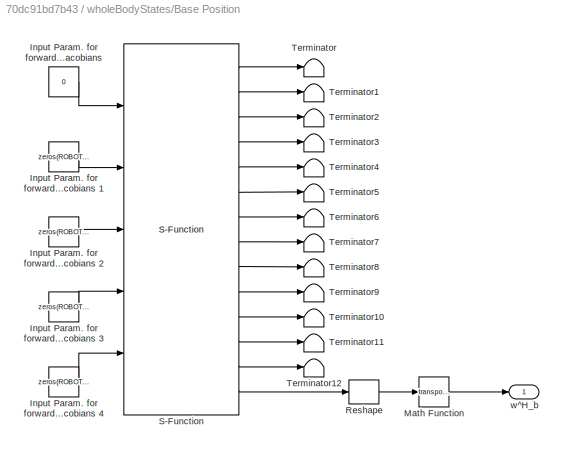
BLOCK [SubSystem] wholeBodyStates/Base Position
  Ports = [0, 1]
  RequestExecContextInheritance = off
  Variant = off
BLOCK [Constant] wholeBodyStates/Base Position/Input Param. for forwardKinematics and computeJacobians 
  OutDataTypeStr = int8
  SampleTime = Ts
  Value = 0
BLOCK [Constant] wholeBodyStates/Base Position/Input Param. for forwardKinematics and computeJacobians 1
  OutDataTypeStr = double
  SampleTime = Ts
  Value = zeros(ROBOT_DOF,1)
BLOCK [Constant] wholeBodyStates/Base Position/Input Param. for forwardKinematics and computeJacobians 2
  OutDataTypeStr = double
  SampleTime = Ts
  Value = zeros(ROBOT_DOF+16, 1)
BLOCK [Constant] wholeBodyStates/Base Position/Input Param. for forwardKinematics and computeJacobians 3
  OutDataTypeStr = double
  SampleTime = Ts
  Value = zeros(ROBOT_DOF+6,1)
BLOCK [Constant] wholeBodyStates/Base Position/Input Param. for forwardKinematics and computeJacobians 4
  OutDataTypeStr = double
  SampleTime = Ts
  Value = zeros(ROBOT_DOF+6,1)
BLOCK [Math] wholeBodyStates/Base Position/Math Function
  Operator = transpose
  Ports = [1, 1]
BLOCK [Reshape] wholeBodyStates/Base Position/Reshape
  OutputDimensionality = Customize
  OutputDimensions = [4,4]
  Ports = [1, 1]
BLOCK [S-Function] wholeBodyStates/Base Position/S-Function
  EnableBusSupport = off
  FunctionName = robotState
  Parameters = val,robotName,localName,linkName
  Ports = [5, 14]
  SFunctionDeploymentMode = off
BLOCK [Terminator] wholeBodyStates/Base Position/Terminator
BLOCK [Terminator] wholeBodyStates/Base Position/Terminator1
BLOCK [Terminator] wholeBodyStates/Base Position/Terminator10
BLOCK [Terminator] wholeBodyStates/Base Position/Terminator11
BLOCK [Terminator] wholeBodyStates/Base Position/Terminator12
BLOCK [Terminator] wholeBodyStates/Base Position/Terminator2
BLOCK [Terminator] wholeBodyStates/Base Position/Terminator3
BLOCK [Terminator] wholeBodyStates/Base Position/Terminator4
BLOCK [Terminator] wholeBodyStates/Base Position/Terminator5
BLOCK [Terminator] wholeBodyStates/Base Position/Terminator6
BLOCK [Terminator] wholeBodyStates/Base Position/Terminator7
BLOCK [Terminator] wholeBodyStates/Base Position/Terminator8
BLOCK [Terminator] wholeBodyStates/Base Position/Terminator9
BLOCK [Outport] wholeBodyStates/Base Position/w^H_b
  IconDisplay = Port number
BLOCK [SubSystem] wholeBodyStates/Base velocity
  Ports = [0, 1]
  RequestExecContextInheritance = off
  Variant = off
BLOCK [Constant] wholeBodyStates/Base velocity/Input Param. for forwardKinematics and computeJacobians 
  OutDataTypeStr = int8
  SampleTime = Ts
  Value = 0
BLOCK [Constant] wholeBodyStates/Base velocity/Input Param. for forwardKinematics and computeJacobians 1
  OutDataTypeStr = double
  SampleTime = Ts
  Value = zeros(ROBOT_DOF,1)
BLOCK [Constant] wholeBodyStates/Base velocity/Input Param. for forwardKinematics and computeJacobians 2
  OutDataTypeStr = double
  SampleTime = Ts
  Value = zeros(ROBOT_DOF+16, 1)
BLOCK [Constant] wholeBodyStates/Base velocity/Input Param. for forwardKinematics and computeJacobians 3
  OutDataTypeStr = double
  SampleTime = Ts
  Value = zeros(ROBOT_DOF+6,1)
BLOCK [Constant] wholeBodyStates/Base velocity/Input Param. for forwardKinematics and computeJacobians 4
  OutDataTypeStr = double
  SampleTime = Ts
  Value = zeros(ROBOT_DOF+6,1)
BLOCK [S-Function] wholeBodyStates/Base velocity/S-Function
  EnableBusSupport = off
  FunctionName = robotState
  Parameters = val,robotName,localName,linkName
  Ports = [5, 14]
  SFunctionDeploymentMode = off
BLOCK [Terminator] wholeBodyStates/Base velocity/Terminator
BLOCK [Terminator] wholeBodyStates/Base velocity/Terminator1
BLOCK [Terminator] wholeBodyStates/Base velocity/Terminator10
BLOCK [Terminator] wholeBodyStates/Base velocity/Terminator11
BLOCK [Terminator] wholeBodyStates/Base velocity/Terminator13
BLOCK [Terminator] wholeBodyStates/Base velocity/Terminator2
BLOCK [Terminator] wholeBodyStates/Base velocity/Terminator3
BLOCK [Terminator] wholeBodyStates/Base velocity/Terminator4
BLOCK [Terminator] wholeBodyStates/Base velocity/Terminator5
BLOCK [Terminator] wholeBodyStates/Base velocity/Terminator6
BLOCK [Terminator] wholeBodyStates/Base velocity/Terminator7
BLOCK [Terminator] wholeBodyStates/Base velocity/Terminator8
BLOCK [Terminator] wholeBodyStates/Base velocity/Terminator9
BLOCK [Outport] wholeBodyStates/Base velocity/base velocity
  IconDisplay = Port number
BLOCK [SubSystem] wholeBodyStates/DUMMY Joint Torques
  Ports = [0, 1]
  RequestExecContextInheritance = off
  Variant = off
BLOCK [Outport] wholeBodyStates/DUMMY Joint Torques/joint tau
  IconDisplay = Port number
BLOCK [SubSystem] wholeBodyStates/DUMMY Joint Torques/tau from ports
  Ports = [0, 5]
  RequestExecContextInheritance = off
  Variant = off
BLOCK [Mux] wholeBodyStates/DUMMY Joint Torques/tau from ports/Mux
  DisplayOption = bar
  Inputs = 5
  Ports = [5, 1]
BLOCK [Mux] wholeBodyStates/DUMMY Joint Torques/tau from ports/Mux1
  DisplayOption = bar
  Inputs = 5
  Ports = [5, 1]
BLOCK [Mux] wholeBodyStates/DUMMY Joint Torques/tau from ports/Mux2
  DisplayOption = bar
  Inputs = 3
  Ports = [3, 1]
BLOCK [Mux] wholeBodyStates/DUMMY Joint Torques/tau from ports/Mux4
  DisplayOption = bar
  Inputs = 6
  Ports = [6, 1]
BLOCK [Mux] wholeBodyStates/DUMMY Joint Torques/tau from ports/Mux5
  DisplayOption = bar
  Inputs = 6
  Ports = [6, 1]
BLOCK [Outport] wholeBodyStates/DUMMY Joint Torques/tau from ports/leftArm
  IconDisplay = Port number
  Port = 2
BLOCK [Outport] wholeBodyStates/DUMMY Joint Torques/tau from ports/leftLeg
  IconDisplay = Port number
  Port = 4
BLOCK [Outport] wholeBodyStates/DUMMY Joint Torques/tau from ports/rightArm
  IconDisplay = Port number
  Port = 3
BLOCK [Outport] wholeBodyStates/DUMMY Joint Torques/tau from ports/rightLeg
  IconDisplay = Port number
  Port = 5
BLOCK [Outport] wholeBodyStates/DUMMY Joint Torques/tau from ports/torso
  IconDisplay = Port number
BLOCK [Reference] wholeBodyStates/DUMMY Joint Torques/tau from ports/yarp armL  REF=WBCLibrary/Utilities/yarp read
  Ports = [0, 5]
  SourceBlock = WBCLibrary/Utilities/yarp read
  SourceType = yarp read
  autoconnect = on
  blocking = off
  from = ['/' robotName '/left_arm/analog:o/torques']
  num = 5
  timestamp = off
  to = '...'
BLOCK [Reference] wholeBodyStates/DUMMY Joint Torques/tau from ports/yarp armR  REF=WBCLibrary/Utilities/yarp read
  Ports = [0, 5]
  SourceBlock = WBCLibrary/Utilities/yarp read
  SourceType = yarp read
  autoconnect = on
  blocking = off
  from = ['/' robotName '/right_arm/analog:o/torques']
  num = 5
  timestamp = off
  to = '...'
BLOCK [Reference] wholeBodyStates/DUMMY Joint Torques/tau from ports/yarp legL  REF=WBCLibrary/Utilities/yarp read
  Ports = [0, 6]
  SourceBlock = WBCLibrary/Utilities/yarp read
  SourceType = yarp read
  autoconnect = on
  blocking = off
  from = ['/' robotName '/left_leg/analog:o/torques']
  num = 6
  timestamp = off
  to = '...'
BLOCK [Reference] wholeBodyStates/DUMMY Joint Torques/tau from ports/yarp legR  REF=WBCLibrary/Utilities/yarp read
  Ports = [0, 6]
  SourceBlock = WBCLibrary/Utilities/yarp read
  SourceType = yarp read
  autoconnect = on
  blocking = off
  from = ['/' robotName '/right_leg/analog:o/torques']
  num = 6
  timestamp = off
  to = '...'
BLOCK [Reference] wholeBodyStates/DUMMY Joint Torques/tau from ports/yarp torso  REF=WBCLibrary/Utilities/yarp read
  Ports = [0, 3]
  SourceBlock = WBCLibrary/Utilities/yarp read
  SourceType = yarp read
  autoconnect = on
  blocking = off
  from = ['/' robotName '/torso/analog:o/torques']
  num = 3
  timestamp = off
  to = '...'
BLOCK [SubSystem] wholeBodyStates/DUMMY Joint Torques/yarp to WBI
  Ports = [5, 1]
  RequestExecContextInheritance = off
  Variant = off
BLOCK [Mux] wholeBodyStates/DUMMY Joint Torques/yarp to WBI/Mux3
  DisplayOption = bar
  Inputs = 5
  Ports = [5, 1]
BLOCK [Selector] wholeBodyStates/DUMMY Joint Torques/yarp to WBI/Selector
  IndexOptions = Index vector (dialog)
  Indices = [3 2 1]
  InputPortWidth = 3
  OutputSizes = 1
  Ports = [1, 1]
BLOCK [Outport] wholeBodyStates/DUMMY Joint Torques/yarp to WBI/WBI ordered
  IconDisplay = Port number
BLOCK [Inport] wholeBodyStates/DUMMY Joint Torques/yarp to WBI/leftArm
  IconDisplay = Port number
  Port = 2
BLOCK [Inport] wholeBodyStates/DUMMY Joint Torques/yarp to WBI/leftLeg
  IconDisplay = Port number
  Port = 4
BLOCK [Inport] wholeBodyStates/DUMMY Joint Torques/yarp to WBI/rightArm
  IconDisplay = Port number
  Port = 3
BLOCK [Inport] wholeBodyStates/DUMMY Joint Torques/yarp to WBI/rightLeg
  IconDisplay = Port number
  Port = 5
BLOCK [Inport] wholeBodyStates/DUMMY Joint Torques/yarp to WBI/torso
  IconDisplay = Port number
BLOCK [SubSystem] wholeBodyStates/Joint Accelerations
  Ports = [0, 1]
  RequestExecContextInheritance = off
  Variant = off
BLOCK [Constant] wholeBodyStates/Joint Accelerations/Constant
  OutDataTypeStr = double
  SampleTime = Ts
  Value = zeros(ROBOT_DOF,1)
BLOCK [Constant] wholeBodyStates/Joint Accelerations/Constant1
  OutDataTypeStr = double
  SampleTime = Ts
  Value = zeros(ROBOT_DOF+16,1)
BLOCK [Constant] wholeBodyStates/Joint Accelerations/Constant2
  OutDataTypeStr = int8
  SampleTime = Ts
  Value = 0
BLOCK [Constant] wholeBodyStates/Joint Accelerations/Constant3
  OutDataTypeStr = double
  SampleTime = Ts
  Value = zeros(ROBOT_DOF+6,1)
BLOCK [Constant] wholeBodyStates/Joint Accelerations/Constant4
  OutDataTypeStr = double
  SampleTime = Ts
  Value = zeros(ROBOT_DOF+6,1)
BLOCK [S-Function] wholeBodyStates/Joint Accelerations/S-Function
  EnableBusSupport = off
  FunctionName = robotState
  Parameters = 10,robotName,localName,'na'
  Ports = [5, 13]
  SFunctionDeploymentMode = off
BLOCK [Terminator] wholeBodyStates/Joint Accelerations/Terminator
BLOCK [Terminator] wholeBodyStates/Joint Accelerations/Terminator1
BLOCK [Terminator] wholeBodyStates/Joint Accelerations/Terminator10
BLOCK [Terminator] wholeBodyStates/Joint Accelerations/Terminator11
BLOCK [Terminator] wholeBodyStates/Joint Accelerations/Terminator2
BLOCK [Terminator] wholeBodyStates/Joint Accelerations/Terminator3
BLOCK [Terminator] wholeBodyStates/Joint Accelerations/Terminator4
BLOCK [Terminator] wholeBodyStates/Joint Accelerations/Terminator5
BLOCK [Terminator] wholeBodyStates/Joint Accelerations/Terminator6
BLOCK [Terminator] wholeBodyStates/Joint Accelerations/Terminator7
BLOCK [Terminator] wholeBodyStates/Joint Accelerations/Terminator8
BLOCK [Terminator] wholeBodyStates/Joint Accelerations/Terminator9
BLOCK [Outport] wholeBodyStates/Joint Accelerations/ddqJ
  IconDisplay = Port number
BLOCK [SubSystem] wholeBodyStates/Joint Angles
  Ports = [0, 1]
  RequestExecContextInheritance = off
  Variant = off
BLOCK [Terminator] wholeBodyStates/Joint Angles/ 
BLOCK [Terminator] wholeBodyStates/Joint Angles/  
BLOCK [Terminator] wholeBodyStates/Joint Angles/   
BLOCK [Terminator] wholeBodyStates/Joint Angles/   1
BLOCK [Terminator] wholeBodyStates/Joint Angles/   2
BLOCK [Terminator] wholeBodyStates/Joint Angles/   3
BLOCK [Constant] wholeBodyStates/Joint Angles/Input Param. for forwardKinematics and computeJacobians 
  OutDataTypeStr = int8
  SampleTime = Ts
  Value = 0
BLOCK [Constant] wholeBodyStates/Joint Angles/Input Param. for forwardKinematics and computeJacobians 1
  OutDataTypeStr = double
  SampleTime = Ts
  Value = zeros(ROBOT_DOF,1)
BLOCK [Constant] wholeBodyStates/Joint Angles/Input Param. for forwardKinematics and computeJacobians 2
  OutDataTypeStr = double
  SampleTime = Ts
  Value = zeros(ROBOT_DOF+16, 1)
BLOCK [Constant] wholeBodyStates/Joint Angles/Input Param. for forwardKinematics and computeJacobians 3
  OutDataTypeStr = double
  SampleTime = Ts
  Value = zeros(ROBOT_DOF+6,1)
BLOCK [Constant] wholeBodyStates/Joint Angles/Input Param. for forwardKinematics and computeJacobians 4
  OutDataTypeStr = double
  SampleTime = Ts
  Value = zeros(ROBOT_DOF+6,1)
BLOCK [Terminator] wholeBodyStates/Joint Angles/Jacobian
BLOCK [S-Function] wholeBodyStates/Joint Angles/S-Function
  EnableBusSupport = off
  FunctionName = robotState
  Parameters = val,robotname,localname,linkname
  Ports = [5, 13]
  SFunctionDeploymentMode = off
BLOCK [Terminator] wholeBodyStates/Joint Angles/dJ dq
BLOCK [Terminator] wholeBodyStates/Joint Angles/getDq
BLOCK [Terminator] wholeBodyStates/Joint Angles/h
BLOCK [Terminator] wholeBodyStates/Joint Angles/massMatrix
BLOCK [Outport] wholeBodyStates/Joint Angles/qrad
  IconDisplay = Port number
BLOCK [Terminator] wholeBodyStates/Joint Angles/xFoot
BLOCK [SubSystem] wholeBodyStates/Joint Torques
  Ports = [0, 1]
  RequestExecContextInheritance = off
  Variant = off
BLOCK [Constant] wholeBodyStates/Joint Torques/Constant
  OutDataTypeStr = double
  SampleTime = Ts
  Value = zeros(ROBOT_DOF,1)
BLOCK [Constant] wholeBodyStates/Joint Torques/Constant1
  OutDataTypeStr = double
  SampleTime = Ts
  Value = zeros(ROBOT_DOF+16,1)
BLOCK [Constant] wholeBodyStates/Joint Torques/Constant2
  OutDataTypeStr = int8
  SampleTime = Ts
  Value = 0
BLOCK [Constant] wholeBodyStates/Joint Torques/Constant3
  OutDataTypeStr = double
  SampleTime = Ts
  Value = zeros(ROBOT_DOF+6,1)
BLOCK [Constant] wholeBodyStates/Joint Torques/Constant4
  OutDataTypeStr = double
  SampleTime = Ts
  Value = zeros(ROBOT_DOF+6,1)
BLOCK [S-Function] wholeBodyStates/Joint Torques/S-Function
  EnableBusSupport = off
  FunctionName = robotState
  Parameters = 11,robotName,localName,'na'
  Ports = [5, 13]
  SFunctionDeploymentMode = off
BLOCK [Terminator] wholeBodyStates/Joint Torques/Terminator
BLOCK [Terminator] wholeBodyStates/Joint Torques/Terminator1
BLOCK [Terminator] wholeBodyStates/Joint Torques/Terminator10
BLOCK [Terminator] wholeBodyStates/Joint Torques/Terminator11
BLOCK [Terminator] wholeBodyStates/Joint Torques/Terminator2
BLOCK [Terminator] wholeBodyStates/Joint Torques/Terminator3
BLOCK [Terminator] wholeBodyStates/Joint Torques/Terminator4
BLOCK [Terminator] wholeBodyStates/Joint Torques/Terminator5
BLOCK [Terminator] wholeBodyStates/Joint Torques/Terminator6
BLOCK [Terminator] wholeBodyStates/Joint Torques/Terminator7
BLOCK [Terminator] wholeBodyStates/Joint Torques/Terminator8
BLOCK [Terminator] wholeBodyStates/Joint Torques/Terminator9
BLOCK [Outport] wholeBodyStates/Joint Torques/tauJ
  IconDisplay = Port number
BLOCK [SubSystem] wholeBodyStates/Joint Velocities
  Ports = [0, 1]
  RequestExecContextInheritance = off
  Variant = off
BLOCK [Constant] wholeBodyStates/Joint Velocities/ 
  OutDataTypeStr = double
  SampleTime = Ts
  Value = zeros(ROBOT_DOF,1)
BLOCK [Constant] wholeBodyStates/Joint Velocities/ 1
  OutDataTypeStr = double
  SampleTime = Ts
  Value = zeros(ROBOT_DOF+16,1)
BLOCK [Constant] wholeBodyStates/Joint Velocities/ 2
  OutDataTypeStr = double
  SampleTime = Ts
  Value = zeros(ROBOT_DOF+6,1)
BLOCK [Constant] wholeBodyStates/Joint Velocities/ 3
  OutDataTypeStr = double
  SampleTime = Ts
  Value = zeros(ROBOT_DOF+6,1)
BLOCK [Constant] wholeBodyStates/Joint Velocities/Input Param. for forwardKinematics and computeJacobians 
  OutDataTypeStr = int8
  SampleTime = Ts
  Value = 0
BLOCK [Terminator] wholeBodyStates/Joint Velocities/Jacobian
BLOCK [S-Function] wholeBodyStates/Joint Velocities/S-Function
  EnableBusSupport = off
  FunctionName = robotState
  Parameters = val,robotname,localname,linkname
  Ports = [5, 13]
  SFunctionDeploymentMode = off
BLOCK [Terminator] wholeBodyStates/Joint Velocities/Terminator
BLOCK [Terminator] wholeBodyStates/Joint Velocities/dJ dq
BLOCK [Terminator] wholeBodyStates/Joint Velocities/dJ dq1
BLOCK [Terminator] wholeBodyStates/Joint Velocities/dJ dq2
BLOCK [Terminator] wholeBodyStates/Joint Velocities/dJ dq3
BLOCK [Terminator] wholeBodyStates/Joint Velocities/dJ dq4
BLOCK [Terminator] wholeBodyStates/Joint Velocities/dJ dq5
BLOCK [Terminator] wholeBodyStates/Joint Velocities/dJ dq6
BLOCK [Outport] wholeBodyStates/Joint Velocities/dq
  IconDisplay = Port number
BLOCK [Terminator] wholeBodyStates/Joint Velocities/h
BLOCK [Terminator] wholeBodyStates/Joint Velocities/massMatrix
BLOCK [Terminator] wholeBodyStates/Joint Velocities/xFoot
BLOCK [SubSystem] wholeBodyStates/Left leg EE Wrench
  Ports = [0, 1]
  RequestExecContextInheritance = off
  Variant = off
BLOCK [Terminator] wholeBodyStates/Left leg EE Wrench/ 
BLOCK [Terminator] wholeBodyStates/Left leg EE Wrench/  
BLOCK [Terminator] wholeBodyStates/Left leg EE Wrench/   
BLOCK [Terminator] wholeBodyStates/Left leg EE Wrench/   1
BLOCK [Terminator] wholeBodyStates/Left leg EE Wrench/  1
BLOCK [Terminator] wholeBodyStates/Left leg EE Wrench/ 1
BLOCK [Constant] wholeBodyStates/Left leg EE Wrench/Input Param. for forwardKinematics and computeJacobians 
  OutDataTypeStr = int8
  SampleTime = Ts
BLOCK [Constant] wholeBodyStates/Left leg EE Wrench/Input Param. for forwardKinematics and computeJacobians 1
  OutDataTypeStr = double
  SampleTime = Ts
  Value = zeros(ROBOT_DOF,1)
BLOCK [Constant] wholeBodyStates/Left leg EE Wrench/Input Param. for forwardKinematics and computeJacobians 2
  OutDataTypeStr = double
  SampleTime = Ts
  Value = zeros(ROBOT_DOF+16,1)
BLOCK [Constant] wholeBodyStates/Left leg EE Wrench/Input Param. for forwardKinematics and computeJacobians 3
  OutDataTypeStr = double
  SampleTime = Ts
  Value = zeros(ROBOT_DOF+6,1)
BLOCK [Constant] wholeBodyStates/Left leg EE Wrench/Input Param. for forwardKinematics and computeJacobians 4
  OutDataTypeStr = double
  SampleTime = Ts
  Value = zeros(ROBOT_DOF+6,1)
BLOCK [Terminator] wholeBodyStates/Left leg EE Wrench/Jacobian
BLOCK [Outport] wholeBodyStates/Left leg EE Wrench/LL EEWrench
  IconDisplay = Port number
BLOCK [S-Function] wholeBodyStates/Left leg EE Wrench/S-Function
  EnableBusSupport = off
  FunctionName = robotState
  Parameters = val,robotname,localname,linkname
  Ports = [5, 13]
  SFunctionDeploymentMode = off
BLOCK [Terminator] wholeBodyStates/Left leg EE Wrench/getDq
BLOCK [Terminator] wholeBodyStates/Left leg EE Wrench/h
BLOCK [Terminator] wholeBodyStates/Left leg EE Wrench/massMatrix
BLOCK [Terminator] wholeBodyStates/Left leg EE Wrench/qrad
BLOCK [Terminator] wholeBodyStates/Left leg EE Wrench/xFoot
BLOCK [SubSystem] wholeBodyStates/Right leg EE Wrench
  Ports = [0, 1]
  RequestExecContextInheritance = off
  Variant = off
BLOCK [Constant] wholeBodyStates/Right leg EE Wrench/ 
  OutDataTypeStr = double
  SampleTime = -1
  Value = zeros(ROBOT_DOF,1)
BLOCK [Constant] wholeBodyStates/Right leg EE Wrench/ 1
  OutDataTypeStr = double
  SampleTime = -1
  Value = zeros(ROBOT_DOF+16,1)
BLOCK [Constant] wholeBodyStates/Right leg EE Wrench/ 2
  OutDataTypeStr = double
  SampleTime = -1
  Value = zeros(ROBOT_DOF+6,1)
BLOCK [Constant] wholeBodyStates/Right leg EE Wrench/ 3
  OutDataTypeStr = double
  SampleTime = -1
  Value = zeros(ROBOT_DOF+6,1)
BLOCK [Constant] wholeBodyStates/Right leg EE Wrench/Input Param. for forwardKinematics and computeJacobians 
  OutDataTypeStr = int8
  Value = 0
BLOCK [Terminator] wholeBodyStates/Right leg EE Wrench/Jacobian
BLOCK [Outport] wholeBodyStates/Right leg EE Wrench/RL EEWrench
  IconDisplay = Port number
BLOCK [S-Function] wholeBodyStates/Right leg EE Wrench/S-Function
  EnableBusSupport = off
  FunctionName = robotState
  Parameters = val,robotname,localname,linkname
  Ports = [5, 13]
  SFunctionDeploymentMode = off
BLOCK [Terminator] wholeBodyStates/Right leg EE Wrench/Terminator
BLOCK [Terminator] wholeBodyStates/Right leg EE Wrench/Terminator1
BLOCK [Terminator] wholeBodyStates/Right leg EE Wrench/dJ dq1
BLOCK [Terminator] wholeBodyStates/Right leg EE Wrench/dJ dq2
BLOCK [Terminator] wholeBodyStates/Right leg EE Wrench/dJ dq3
BLOCK [Terminator] wholeBodyStates/Right leg EE Wrench/dJ dq4
BLOCK [Terminator] wholeBodyStates/Right leg EE Wrench/dJ dq5
BLOCK [Terminator] wholeBodyStates/Right leg EE Wrench/dJ dq6
BLOCK [Terminator] wholeBodyStates/Right leg EE Wrench/h
BLOCK [Terminator] wholeBodyStates/Right leg EE Wrench/massMatrix
BLOCK [Terminator] wholeBodyStates/Right leg EE Wrench/xFoot
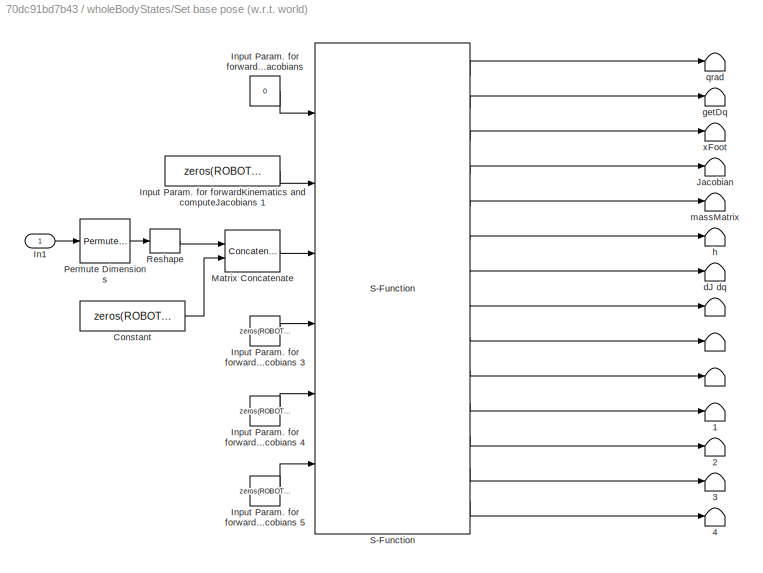
BLOCK [SubSystem] wholeBodyStates/Set base pose (w.r.t. world)
  Ports = [1]
  RequestExecContextInheritance = off
  Variant = off
BLOCK [Terminator] wholeBodyStates/Set base pose (w.r.t. world)/ 
BLOCK [Terminator] wholeBodyStates/Set base pose (w.r.t. world)/  
BLOCK [Terminator] wholeBodyStates/Set base pose (w.r.t. world)/   
BLOCK [Terminator] wholeBodyStates/Set base pose (w.r.t. world)/   1
BLOCK [Terminator] wholeBodyStates/Set base pose (w.r.t. world)/   2
BLOCK [Terminator] wholeBodyStates/Set base pose (w.r.t. world)/   3
BLOCK [Terminator] wholeBodyStates/Set base pose (w.r.t. world)/   4
BLOCK [Constant] wholeBodyStates/Set base pose (w.r.t. world)/Constant
  Value = zeros(ROBOT_DOF,1)
BLOCK [Inport] wholeBodyStates/Set base pose (w.r.t. world)/In1
  IconDisplay = Signal name
  SampleTime = Ts
BLOCK [Constant] wholeBodyStates/Set base pose (w.r.t. world)/Input Param. for forwardKinematics and computeJacobians 
  OutDataTypeStr = int8
  SampleTime = Ts
  Value = 0
BLOCK [Constant] wholeBodyStates/Set base pose (w.r.t. world)/Input Param. for forwardKinematics and computeJacobians 1
  OutDataTypeStr = double
  SampleTime = Ts
  Value = zeros(ROBOT_DOF,1)
BLOCK [Constant] wholeBodyStates/Set base pose (w.r.t. world)/Input Param. for forwardKinematics and computeJacobians 3
  OutDataTypeStr = double
  SampleTime = Ts
  Value = zeros(ROBOT_DOF+6,1)
BLOCK [Constant] wholeBodyStates/Set base pose (w.r.t. world)/Input Param. for forwardKinematics and computeJacobians 4
  OutDataTypeStr = double
  SampleTime = Ts
  Value = zeros(ROBOT_DOF+6,1)
BLOCK [Constant] wholeBodyStates/Set base pose (w.r.t. world)/Input Param. for forwardKinematics and computeJacobians 5
  OutDataTypeStr = double
  SampleTime = Ts
  Value = zeros(ROBOT_DOF+6,1)
BLOCK [Terminator] wholeBodyStates/Set base pose (w.r.t. world)/Jacobian
BLOCK [Concatenate] wholeBodyStates/Set base pose (w.r.t. world)/Matrix Concatenate
  ConcatenateDimension = 2
  Ports = [2, 1]
BLOCK [PermuteDimensions] wholeBodyStates/Set base pose (w.r.t. world)/Permute Dimensions
BLOCK [Reshape] wholeBodyStates/Set base pose (w.r.t. world)/Reshape
  Ports = [1, 1]
BLOCK [S-Function] wholeBodyStates/Set base pose (w.r.t. world)/S-Function
  EnableBusSupport = off
  FunctionName = robotState
  Parameters = val,robotname,localname,linkname
  Ports = [6, 14]
  SFunctionDeploymentMode = off
BLOCK [Terminator] wholeBodyStates/Set base pose (w.r.t. world)/dJ dq
BLOCK [Terminator] wholeBodyStates/Set base pose (w.r.t. world)/getDq
BLOCK [Terminator] wholeBodyStates/Set base pose (w.r.t. world)/h
BLOCK [Terminator] wholeBodyStates/Set base pose (w.r.t. world)/massMatrix
BLOCK [Terminator] wholeBodyStates/Set base pose (w.r.t. world)/qrad
BLOCK [Terminator] wholeBodyStates/Set base pose (w.r.t. world)/xFoot
BLOCK [SubSystem] wholeBodyStates/Set base velocity (w.r.t. world)
  Ports = [1]
  RequestExecContextInheritance = off
  Variant = off
BLOCK [Terminator] wholeBodyStates/Set base velocity (w.r.t. world)/ 
BLOCK [Terminator] wholeBodyStates/Set base velocity (w.r.t. world)/  
BLOCK [Terminator] wholeBodyStates/Set base velocity (w.r.t. world)/   
BLOCK [Terminator] wholeBodyStates/Set base velocity (w.r.t. world)/   1
BLOCK [Terminator] wholeBodyStates/Set base velocity (w.r.t. world)/   2
BLOCK [Terminator] wholeBodyStates/Set base velocity (w.r.t. world)/   3
BLOCK [Terminator] wholeBodyStates/Set base velocity (w.r.t. world)/   4
BLOCK [Constant] wholeBodyStates/Set base velocity (w.r.t. world)/Input Param. for forwardKinematics and computeJacobians 
  OutDataTypeStr = int8
  SampleTime = Ts
  Value = 0
BLOCK [Constant] wholeBodyStates/Set base velocity (w.r.t. world)/Input Param. for forwardKinematics and computeJacobians 1
  OutDataTypeStr = double
  SampleTime = Ts
  Value = zeros(ROBOT_DOF,1)
BLOCK [Constant] wholeBodyStates/Set base velocity (w.r.t. world)/Input Param. for forwardKinematics and computeJacobians 2
  OutDataTypeStr = double
  SampleTime = Ts
  Value = zeros(ROBOT_DOF+16, 1)
BLOCK [Constant] wholeBodyStates/Set base velocity (w.r.t. world)/Input Param. for forwardKinematics and computeJacobians 3
  OutDataTypeStr = double
  SampleTime = Ts
  Value = zeros(ROBOT_DOF, 1)
BLOCK [Constant] wholeBodyStates/Set base velocity (w.r.t. world)/Input Param. for forwardKinematics and computeJacobians 4
  OutDataTypeStr = double
  SampleTime = Ts
  Value = zeros(ROBOT_DOF+6,1)
BLOCK [Terminator] wholeBodyStates/Set base velocity (w.r.t. world)/Jacobian
BLOCK [Mux] wholeBodyStates/Set base velocity (w.r.t. world)/Mux
  DisplayOption = bar
  Inputs = 2
  Ports = [2, 1]
BLOCK [S-Function] wholeBodyStates/Set base velocity (w.r.t. world)/S-Function
  EnableBusSupport = off
  FunctionName = robotState
  Parameters = val,robotname,localname,linkname
  Ports = [5, 14]
  SFunctionDeploymentMode = off
BLOCK [Terminator] wholeBodyStates/Set base velocity (w.r.t. world)/dJ dq
BLOCK [Terminator] wholeBodyStates/Set base velocity (w.r.t. world)/getDq
BLOCK [Terminator] wholeBodyStates/Set base velocity (w.r.t. world)/getDq1
BLOCK [Terminator] wholeBodyStates/Set base velocity (w.r.t. world)/h
BLOCK [Terminator] wholeBodyStates/Set base velocity (w.r.t. world)/massMatrix
BLOCK [Inport] wholeBodyStates/Set base velocity (w.r.t. world)/vb
  IconDisplay = Port number
BLOCK [Terminator] wholeBodyStates/Set base velocity (w.r.t. world)/xFoot
BLOCK [SubSystem] wholeBodyStates/dq_b + dq_j
  Ports = [0, 1]
  RequestExecContextInheritance = off
  Variant = off
BLOCK [Reference] wholeBodyStates/dq_b + dq_j/Joint Velocities  REF=WBCLibrary/wholeBodyStates/Joint Velocities
  Ports = [0, 1]
  SourceBlock = WBCLibrary/wholeBodyStates/Joint Velocities
  SourceType = Joint Velocities
  localName = localName
  robotName = robotName
BLOCK [Reference] wholeBodyStates/dq_b + dq_j/Left Foot Jacobian  REF=WBCLibrary/wholeBodyModel/Jacobians/Left Foot Jacobian
  Ports = [0, 1]
  SourceBlock = WBCLibrary/wholeBodyModel/Jacobians/Left Foot Jacobian
  SourceType = Left Foot Jacobian
  localName = localName
  robotName = robotName
BLOCK [Mux] wholeBodyStates/dq_b + dq_j/Mux
  DisplayOption = bar
  Inputs = 2
  Ports = [2, 1]
BLOCK [Reference] wholeBodyStates/dq_b + dq_j/Right Foot Jacobian  REF=WBCLibrary/wholeBodyModel/Jacobians/Right Foot Jacobian
  Ports = [0, 1]
  SourceBlock = WBCLibrary/wholeBodyModel/Jacobians/Right Foot Jacobian
  SourceType = Right Foot Jacobian
  localName = localName
  robotName = robotName
BLOCK [Reference] wholeBodyStates/dq_b + dq_j/baseVelocity  REF=WBCLibrary/Utilities/baseVelocity
  Ports = [3, 1]
  SourceBlock = WBCLibrary/Utilities/baseVelocity
  SourceType = baseVelocity
BLOCK [Outport] wholeBodyStates/dq_b + dq_j/dq
  IconDisplay = Port number
BLOCK [SubSystem] wholeBodyStates/q_b + q_j
  Ports = [0, 1]
  RequestExecContextInheritance = off
  Variant = off
BLOCK [Constant] wholeBodyStates/q_b + q_j/Constant1
  Value = zeros(16,1)
BLOCK [Reference] wholeBodyStates/q_b + q_j/Joint Angles  REF=WBCLibrary/wholeBodyStates/Joint Angles
  Ports = [0, 1]
  SourceBlock = WBCLibrary/wholeBodyStates/Joint Angles
  SourceType = Joint Angles
  localName = localName
  robotName = robotName
BLOCK [Mux] wholeBodyStates/q_b + q_j/Mux
  DisplayOption = bar
  Inputs = 2
  Ports = [2, 1]
BLOCK [Outport] wholeBodyStates/q_b + q_j/q
  IconDisplay = Port number
ANNOTATION (root): <copyright redacted>
ANNOTATION (root): WHOLE BODY INTERFACE TOOLBOX
ANNOTATION wholeBodyActuators: DO NOT USE THIS BLOCK YET. UNDER DEVELOPMENT
LINE Utilities/23-DoFs WBI to YARP/Selector1:1 -> Utilities/23-DoFs WBI to YARP/leftArm:1
LINE Utilities/23-DoFs WBI to YARP/Selector2:1 -> Utilities/23-DoFs WBI to YARP/rightArm:1
LINE Utilities/23-DoFs WBI to YARP/Selector3:1 -> Utilities/23-DoFs WBI to YARP/leftLeg:1
LINE Utilities/23-DoFs WBI to YARP/Selector4:1 -> Utilities/23-DoFs WBI to YARP/rightLeg:1
LINE Utilities/23-DoFs WBI to YARP/Selector6:1 -> Utilities/23-DoFs WBI to YARP/torso:1
LINE Utilities/23-DoFs WBI to YARP/Selector:1 -> Utilities/23-DoFs WBI to YARP/Selector6:1
NET Utilities/23-DoFs WBI to YARP/WBI Ordered:1 -> Utilities/23-DoFs WBI to YARP/Selector1:1, Utilities/23-DoFs WBI to YARP/Selector2:1, Utilities/23-DoFs WBI to YARP/Selector3:1, Utilities/23-DoFs WBI to YARP/Selector4:1, Utilities/23-DoFs WBI to YARP/Selector:1
LINE Utilities/25-DoFs WBI to yarp/Selector1:1 -> Utilities/25-DoFs WBI to yarp/leftArm:1
LINE Utilities/25-DoFs WBI to yarp/Selector2:1 -> Utilities/25-DoFs WBI to yarp/rightArm:1
LINE Utilities/25-DoFs WBI to yarp/Selector3:1 -> Utilities/25-DoFs WBI to yarp/leftLeg:1
LINE Utilities/25-DoFs WBI to yarp/Selector4:1 -> Utilities/25-DoFs WBI to yarp/rightLeg:1
LINE Utilities/25-DoFs WBI to yarp/Selector6:1 -> Utilities/25-DoFs WBI to yarp/torso:1
LINE Utilities/25-DoFs WBI to yarp/Selector:1 -> Utilities/25-DoFs WBI to yarp/Selector6:1
NET Utilities/25-DoFs WBI to yarp/WBI ordered:1 -> Utilities/25-DoFs WBI to yarp/Selector1:1, Utilities/25-DoFs WBI to yarp/Selector2:1, Utilities/25-DoFs WBI to yarp/Selector3:1, Utilities/25-DoFs WBI to yarp/Selector4:1, Utilities/25-DoFs WBI to yarp/Selector:1
LINE Utilities/DampPinv/Damped Pseudo Inverse:1 -> Utilities/DampPinv/DPinv:1
LINE Utilities/DampPinv/mat:1 -> Utilities/DampPinv/Damped Pseudo Inverse:1
LINE Utilities/DampPinv/sigma:1 -> Utilities/DampPinv/Damped Pseudo Inverse:2
LINE Utilities/TruncPinv/S:1 -> Utilities/TruncPinv/Truncated PseudoInverse:1
LINE Utilities/TruncPinv/Truncated PseudoInverse:1 -> Utilities/TruncPinv/Tpinv:1
LINE Utilities/TruncPinv/tol:1 -> Utilities/TruncPinv/Truncated PseudoInverse:2
LINE Utilities/baseVelocity/JacobLF:1 -> Utilities/baseVelocity/Matrix Concatenate:2
LINE Utilities/baseVelocity/JacobRF:1 -> Utilities/baseVelocity/Matrix Concatenate:1
LINE Utilities/baseVelocity/MATLAB Function:1 -> Utilities/baseVelocity/baseVel:1
LINE Utilities/baseVelocity/Matrix Concatenate:1 -> Utilities/baseVelocity/MATLAB Function:1
LINE Utilities/baseVelocity/dq:1 -> Utilities/baseVelocity/MATLAB Function:2
NET Utilities/errors/Add:1 -> Utilities/errors/Divide:1, Utilities/errors/x-y:1
LINE Utilities/errors/Divide:1 -> Utilities/errors/(x-y).//y:1
LINE Utilities/errors/x:1 -> Utilities/errors/Add:1
NET Utilities/errors/y:1 -> Utilities/errors/Add:2, Utilities/errors/Divide:2
LINE Utilities/holder /Clock:1 -> Utilities/holder /Compare To Constant:1
LINE Utilities/holder /Compare To Constant:1 -> Utilities/holder /MATLAB Function:2
LINE Utilities/holder /MATLAB Function:1 -> Utilities/holder /s(0):1
LINE Utilities/holder /s:1 -> Utilities/holder /MATLAB Function:1
LINE Utilities/minJerkTrajGen/S-Function:1 -> Utilities/minJerkTrajGen/pos:1
LINE Utilities/minJerkTrajGen/S-Function:2 -> Utilities/minJerkTrajGen/vel:1
LINE Utilities/minJerkTrajGen/S-Function:3 -> Utilities/minJerkTrajGen/acc:1
LINE Utilities/minJerkTrajGen/desiredPos:1 -> Utilities/minJerkTrajGen/S-Function:2
LINE Utilities/minJerkTrajGen/initPos:1 -> Utilities/minJerkTrajGen/S-Function:1
LINE Utilities/yarp to WBI/Mux3:1 -> Utilities/yarp to WBI/WBI ordered:1
LINE Utilities/yarp to WBI/Selector:1 -> Utilities/yarp to WBI/Mux3:1
LINE Utilities/yarp to WBI/leftArm:1 -> Utilities/yarp to WBI/Mux3:2
LINE Utilities/yarp to WBI/leftLeg:1 -> Utilities/yarp to WBI/Mux3:4
LINE Utilities/yarp to WBI/rightArm:1 -> Utilities/yarp to WBI/Mux3:3
LINE Utilities/yarp to WBI/rightLeg:1 -> Utilities/yarp to WBI/Mux3:5
LINE Utilities/yarp to WBI/torso:1 -> Utilities/yarp to WBI/Selector:1
LINE Utilities/yarp write/In1:1 -> Utilities/yarp write/S-Function:1
LINE wholeBodyActuators/Set Angles (Direct)/Input Param. for forwardKinematics and computeJacobians 1:1 -> wholeBodyActuators/Set Angles (Direct)/S-Function:3
LINE wholeBodyActuators/Set Angles (Direct)/Input Param. for forwardKinematics and computeJacobians 2:1 -> wholeBodyActuators/Set Angles (Direct)/S-Function:4
LINE wholeBodyActuators/Set Angles (Direct)/Input Param. for forwardKinematics and computeJacobians 3:1 -> wholeBodyActuators/Set Angles (Direct)/S-Function:5
LINE wholeBodyActuators/Set Angles (Direct)/Input Param. for forwardKinematics and computeJacobians :1 -> wholeBodyActuators/Set Angles (Direct)/S-Function:1
LINE wholeBodyActuators/Set Angles (Direct)/S-Function:1 -> wholeBodyActuators/Set Angles (Direct)/Terminator4:1
LINE wholeBodyActuators/Set Angles (Direct)/S-Function:10 -> wholeBodyActuators/Set Angles (Direct)/Terminator10:1
LINE wholeBodyActuators/Set Angles (Direct)/S-Function:11 -> wholeBodyActuators/Set Angles (Direct)/Terminator12:1
LINE wholeBodyActuators/Set Angles (Direct)/S-Function:12 -> wholeBodyActuators/Set Angles (Direct)/Terminator13:1
LINE wholeBodyActuators/Set Angles (Direct)/S-Function:13 -> wholeBodyActuators/Set Angles (Direct)/Terminator11:1
LINE wholeBodyActuators/Set Angles (Direct)/S-Function:2 -> wholeBodyActuators/Set Angles (Direct)/Terminator1:1
LINE wholeBodyActuators/Set Angles (Direct)/S-Function:3 -> wholeBodyActuators/Set Angles (Direct)/Terminator2:1
LINE wholeBodyActuators/Set Angles (Direct)/S-Function:4 -> wholeBodyActuators/Set Angles (Direct)/Terminator3:1
LINE wholeBodyActuators/Set Angles (Direct)/S-Function:5 -> wholeBodyActuators/Set Angles (Direct)/Terminator5:1
LINE wholeBodyActuators/Set Angles (Direct)/S-Function:6 -> wholeBodyActuators/Set Angles (Direct)/Terminator6:1
LINE wholeBodyActuators/Set Angles (Direct)/S-Function:7 -> wholeBodyActuators/Set Angles (Direct)/Terminator7:1
LINE wholeBodyActuators/Set Angles (Direct)/S-Function:8 -> wholeBodyActuators/Set Angles (Direct)/Terminator8:1
LINE wholeBodyActuators/Set Angles (Direct)/S-Function:9 -> wholeBodyActuators/Set Angles (Direct)/Terminator9:1
LINE wholeBodyActuators/Set Angles (Direct)/q_j:1 -> wholeBodyActuators/Set Angles (Direct)/S-Function:2
LINE wholeBodyActuators/Set Angles/Input Param. for forwardKinematics and computeJacobians 1:1 -> wholeBodyActuators/Set Angles/S-Function:3
LINE wholeBodyActuators/Set Angles/Input Param. for forwardKinematics and computeJacobians 2:1 -> wholeBodyActuators/Set Angles/S-Function:4
LINE wholeBodyActuators/Set Angles/Input Param. for forwardKinematics and computeJacobians 3:1 -> wholeBodyActuators/Set Angles/S-Function:5
LINE wholeBodyActuators/Set Angles/RightFoot:1 -> wholeBodyActuators/Set Angles/S-Function:1
LINE wholeBodyActuators/Set Angles/S-Function:1 -> wholeBodyActuators/Set Angles/Terminator:1
LINE wholeBodyActuators/Set Angles/S-Function:10 -> wholeBodyActuators/Set Angles/Terminator9:1
LINE wholeBodyActuators/Set Angles/S-Function:11 -> wholeBodyActuators/Set Angles/Terminator10:1
LINE wholeBodyActuators/Set Angles/S-Function:12 -> wholeBodyActuators/Set Angles/Terminator11:1
LINE wholeBodyActuators/Set Angles/S-Function:13 -> wholeBodyActuators/Set Angles/Terminator12:1
LINE wholeBodyActuators/Set Angles/S-Function:2 -> wholeBodyActuators/Set Angles/Terminator1:1
LINE wholeBodyActuators/Set Angles/S-Function:3 -> wholeBodyActuators/Set Angles/Terminator2:1
LINE wholeBodyActuators/Set Angles/S-Function:4 -> wholeBodyActuators/Set Angles/Terminator3:1
LINE wholeBodyActuators/Set Angles/S-Function:5 -> wholeBodyActuators/Set Angles/Terminator4:1
LINE wholeBodyActuators/Set Angles/S-Function:6 -> wholeBodyActuators/Set Angles/Terminator5:1
LINE wholeBodyActuators/Set Angles/S-Function:7 -> wholeBodyActuators/Set Angles/Terminator6:1
LINE wholeBodyActuators/Set Angles/S-Function:8 -> wholeBodyActuators/Set Angles/Terminator7:1
LINE wholeBodyActuators/Set Angles/S-Function:9 -> wholeBodyActuators/Set Angles/Terminator8:1
LINE wholeBodyActuators/Set Angles/q_j:1 -> wholeBodyActuators/Set Angles/S-Function:2
LINE wholeBodyActuators/Set Torques/Input Param. for forwardKinematics and computeJacobians 1:1 -> wholeBodyActuators/Set Torques/S-Function:3
LINE wholeBodyActuators/Set Torques/Input Param. for forwardKinematics and computeJacobians 2:1 -> wholeBodyActuators/Set Torques/S-Function:4
LINE wholeBodyActuators/Set Torques/Input Param. for forwardKinematics and computeJacobians 3:1 -> wholeBodyActuators/Set Torques/S-Function:5
LINE wholeBodyActuators/Set Torques/RightFoot:1 -> wholeBodyActuators/Set Torques/S-Function:1
LINE wholeBodyActuators/Set Torques/S-Function:1 -> wholeBodyActuators/Set Torques/Terminator:1
LINE wholeBodyActuators/Set Torques/S-Function:10 -> wholeBodyActuators/Set Torques/Terminator9:1
LINE wholeBodyActuators/Set Torques/S-Function:11 -> wholeBodyActuators/Set Torques/Terminator10:1
LINE wholeBodyActuators/Set Torques/S-Function:12 -> wholeBodyActuators/Set Torques/Terminator11:1
LINE wholeBodyActuators/Set Torques/S-Function:13 -> wholeBodyActuators/Set Torques/Terminator12:1
LINE wholeBodyActuators/Set Torques/S-Function:2 -> wholeBodyActuators/Set Torques/Terminator1:1
LINE wholeBodyActuators/Set Torques/S-Function:3 -> wholeBodyActuators/Set Torques/Terminator2:1
LINE wholeBodyActuators/Set Torques/S-Function:4 -> wholeBodyActuators/Set Torques/Terminator3:1
LINE wholeBodyActuators/Set Torques/S-Function:5 -> wholeBodyActuators/Set Torques/Terminator4:1
LINE wholeBodyActuators/Set Torques/S-Function:6 -> wholeBodyActuators/Set Torques/Terminator5:1
LINE wholeBodyActuators/Set Torques/S-Function:7 -> wholeBodyActuators/Set Torques/Terminator6:1
LINE wholeBodyActuators/Set Torques/S-Function:8 -> wholeBodyActuators/Set Torques/Terminator7:1
LINE wholeBodyActuators/Set Torques/S-Function:9 -> wholeBodyActuators/Set Torques/Terminator8:1
LINE wholeBodyActuators/Set Torques/tau_j:1 -> wholeBodyActuators/Set Torques/S-Function:2
LINE wholeBodyActuators/Set Velocities/Input Param. for forwardKinematics and computeJacobians 1:1 -> wholeBodyActuators/Set Velocities/S-Function:3
LINE wholeBodyActuators/Set Velocities/Input Param. for forwardKinematics and computeJacobians 2:1 -> wholeBodyActuators/Set Velocities/S-Function:4
LINE wholeBodyActuators/Set Velocities/Input Param. for forwardKinematics and computeJacobians 3:1 -> wholeBodyActuators/Set Velocities/S-Function:5
LINE wholeBodyActuators/Set Velocities/Input Param. for forwardKinematics and computeJacobians :1 -> wholeBodyActuators/Set Velocities/S-Function:1
LINE wholeBodyActuators/Set Velocities/S-Function:1 -> wholeBodyActuators/Set Velocities/Terminator4:1
LINE wholeBodyActuators/Set Velocities/S-Function:10 -> wholeBodyActuators/Set Velocities/Terminator10:1
LINE wholeBodyActuators/Set Velocities/S-Function:11 -> wholeBodyActuators/Set Velocities/Terminator12:1
LINE wholeBodyActuators/Set Velocities/S-Function:12 -> wholeBodyActuators/Set Velocities/Terminator13:1
LINE wholeBodyActuators/Set Velocities/S-Function:13 -> wholeBodyActuators/Set Velocities/Terminator11:1
LINE wholeBodyActuators/Set Velocities/S-Function:2 -> wholeBodyActuators/Set Velocities/Terminator1:1
LINE wholeBodyActuators/Set Velocities/S-Function:3 -> wholeBodyActuators/Set Velocities/Terminator2:1
LINE wholeBodyActuators/Set Velocities/S-Function:4 -> wholeBodyActuators/Set Velocities/Terminator3:1
LINE wholeBodyActuators/Set Velocities/S-Function:5 -> wholeBodyActuators/Set Velocities/Terminator5:1
LINE wholeBodyActuators/Set Velocities/S-Function:6 -> wholeBodyActuators/Set Velocities/Terminator6:1
LINE wholeBodyActuators/Set Velocities/S-Function:7 -> wholeBodyActuators/Set Velocities/Terminator7:1
LINE wholeBodyActuators/Set Velocities/S-Function:8 -> wholeBodyActuators/Set Velocities/Terminator8:1
LINE wholeBodyActuators/Set Velocities/S-Function:9 -> wholeBodyActuators/Set Velocities/Terminator9:1
LINE wholeBodyActuators/Set Velocities/dq_j:1 -> wholeBodyActuators/Set Velocities/S-Function:2
LINE wholeBodyModel/Dynamics/Cent Momentum/RightFoot:1 -> wholeBodyModel/Dynamics/Cent Momentum/S-Function:1
LINE wholeBodyModel/Dynamics/Cent Momentum/S-Function:1 -> wholeBodyModel/Dynamics/Cent Momentum/Terminator:1
LINE wholeBodyModel/Dynamics/Cent Momentum/S-Function:10 -> wholeBodyModel/Dynamics/Cent Momentum/Terminator9:1
LINE wholeBodyModel/Dynamics/Cent Momentum/S-Function:11 -> wholeBodyModel/Dynamics/Cent Momentum/Terminator10:1
LINE wholeBodyModel/Dynamics/Cent Momentum/S-Function:12 -> wholeBodyModel/Dynamics/Cent Momentum/Terminator11:1
LINE wholeBodyModel/Dynamics/Cent Momentum/S-Function:13 -> wholeBodyModel/Dynamics/Cent Momentum/H:1
LINE wholeBodyModel/Dynamics/Cent Momentum/S-Function:2 -> wholeBodyModel/Dynamics/Cent Momentum/Terminator1:1
LINE wholeBodyModel/Dynamics/Cent Momentum/S-Function:3 -> wholeBodyModel/Dynamics/Cent Momentum/Terminator2:1
LINE wholeBodyModel/Dynamics/Cent Momentum/S-Function:4 -> wholeBodyModel/Dynamics/Cent Momentum/Terminator3:1
LINE wholeBodyModel/Dynamics/Cent Momentum/S-Function:5 -> wholeBodyModel/Dynamics/Cent Momentum/Terminator4:1
LINE wholeBodyModel/Dynamics/Cent Momentum/S-Function:6 -> wholeBodyModel/Dynamics/Cent Momentum/Terminator5:1
LINE wholeBodyModel/Dynamics/Cent Momentum/S-Function:7 -> wholeBodyModel/Dynamics/Cent Momentum/Terminator6:1
LINE wholeBodyModel/Dynamics/Cent Momentum/S-Function:8 -> wholeBodyModel/Dynamics/Cent Momentum/Terminator7:1
LINE wholeBodyModel/Dynamics/Cent Momentum/S-Function:9 -> wholeBodyModel/Dynamics/Cent Momentum/Terminator8:1
LINE wholeBodyModel/Dynamics/Cent Momentum/dq:1 -> wholeBodyModel/Dynamics/Cent Momentum/S-Function:4
LINE wholeBodyModel/Dynamics/Cent Momentum/dummy3:1 -> wholeBodyModel/Dynamics/Cent Momentum/S-Function:5
LINE wholeBodyModel/Dynamics/Cent Momentum/dummy:1 -> wholeBodyModel/Dynamics/Cent Momentum/S-Function:2
LINE wholeBodyModel/Dynamics/Cent Momentum/q:1 -> wholeBodyModel/Dynamics/Cent Momentum/S-Function:3
LINE wholeBodyModel/Dynamics/Inverse Dynamics/Constant2:1 -> wholeBodyModel/Dynamics/Inverse Dynamics/S-Function:1
LINE wholeBodyModel/Dynamics/Inverse Dynamics/Constant:1 -> wholeBodyModel/Dynamics/Inverse Dynamics/S-Function:2
LINE wholeBodyModel/Dynamics/Inverse Dynamics/S-Function:1 -> wholeBodyModel/Dynamics/Inverse Dynamics/Terminator:1
LINE wholeBodyModel/Dynamics/Inverse Dynamics/S-Function:10 -> wholeBodyModel/Dynamics/Inverse Dynamics/genTau:1
LINE wholeBodyModel/Dynamics/Inverse Dynamics/S-Function:11 -> wholeBodyModel/Dynamics/Inverse Dynamics/Terminator9:1
LINE wholeBodyModel/Dynamics/Inverse Dynamics/S-Function:12 -> wholeBodyModel/Dynamics/Inverse Dynamics/Terminator10:1
LINE wholeBodyModel/Dynamics/Inverse Dynamics/S-Function:13 -> wholeBodyModel/Dynamics/Inverse Dynamics/Terminator11:1
LINE wholeBodyModel/Dynamics/Inverse Dynamics/S-Function:2 -> wholeBodyModel/Dynamics/Inverse Dynamics/Terminator1:1
LINE wholeBodyModel/Dynamics/Inverse Dynamics/S-Function:3 -> wholeBodyModel/Dynamics/Inverse Dynamics/Terminator2:1
LINE wholeBodyModel/Dynamics/Inverse Dynamics/S-Function:4 -> wholeBodyModel/Dynamics/Inverse Dynamics/Terminator3:1
LINE wholeBodyModel/Dynamics/Inverse Dynamics/S-Function:5 -> wholeBodyModel/Dynamics/Inverse Dynamics/Terminator4:1
LINE wholeBodyModel/Dynamics/Inverse Dynamics/S-Function:6 -> wholeBodyModel/Dynamics/Inverse Dynamics/Terminator5:1
LINE wholeBodyModel/Dynamics/Inverse Dynamics/S-Function:7 -> wholeBodyModel/Dynamics/Inverse Dynamics/Terminator6:1
LINE wholeBodyModel/Dynamics/Inverse Dynamics/S-Function:8 -> wholeBodyModel/Dynamics/Inverse Dynamics/Terminator7:1
LINE wholeBodyModel/Dynamics/Inverse Dynamics/S-Function:9 -> wholeBodyModel/Dynamics/Inverse Dynamics/Terminator8:1
LINE wholeBodyModel/Dynamics/Inverse Dynamics/ddq:1 -> wholeBodyModel/Dynamics/Inverse Dynamics/S-Function:5
LINE wholeBodyModel/Dynamics/Inverse Dynamics/dq:1 -> wholeBodyModel/Dynamics/Inverse Dynamics/S-Function:4
LINE wholeBodyModel/Dynamics/Inverse Dynamics/q:1 -> wholeBodyModel/Dynamics/Inverse Dynamics/S-Function:3
LINE wholeBodyModel/Dynamics/computeh/Constant1:1 -> wholeBodyModel/Dynamics/computeh/S-Function:2
LINE wholeBodyModel/Dynamics/computeh/Constant4:1 -> wholeBodyModel/Dynamics/computeh/S-Function:5
LINE wholeBodyModel/Dynamics/computeh/Constant:1 -> wholeBodyModel/Dynamics/computeh/S-Function:1
LINE wholeBodyModel/Dynamics/computeh/S-Function:1 -> wholeBodyModel/Dynamics/computeh/h1:1
LINE wholeBodyModel/Dynamics/computeh/S-Function:10 -> wholeBodyModel/Dynamics/computeh/  1:1
LINE wholeBodyModel/Dynamics/computeh/S-Function:11 -> wholeBodyModel/Dynamics/computeh/h7:1
LINE wholeBodyModel/Dynamics/computeh/S-Function:12 -> wholeBodyModel/Dynamics/computeh/h8:1
LINE wholeBodyModel/Dynamics/computeh/S-Function:13 -> wholeBodyModel/Dynamics/computeh/  2:1
LINE wholeBodyModel/Dynamics/computeh/S-Function:2 -> wholeBodyModel/Dynamics/computeh/h2:1
LINE wholeBodyModel/Dynamics/computeh/S-Function:3 -> wholeBodyModel/Dynamics/computeh/h3:1
LINE wholeBodyModel/Dynamics/computeh/S-Function:4 -> wholeBodyModel/Dynamics/computeh/h4:1
LINE wholeBodyModel/Dynamics/computeh/S-Function:5 -> wholeBodyModel/Dynamics/computeh/  :1
LINE wholeBodyModel/Dynamics/computeh/S-Function:6 -> wholeBodyModel/Dynamics/computeh/h:1
LINE wholeBodyModel/Dynamics/computeh/S-Function:7 -> wholeBodyModel/Dynamics/computeh/ :1
LINE wholeBodyModel/Dynamics/computeh/S-Function:8 -> wholeBodyModel/Dynamics/computeh/h5:1
LINE wholeBodyModel/Dynamics/computeh/S-Function:9 -> wholeBodyModel/Dynamics/computeh/h6:1
LINE wholeBodyModel/Dynamics/computeh/dq:1 -> wholeBodyModel/Dynamics/computeh/S-Function:4
LINE wholeBodyModel/Dynamics/computeh/q:1 -> wholeBodyModel/Dynamics/computeh/S-Function:3
LINE wholeBodyModel/Dynamics/dJ*dq LeftArm/LeftFoot:1 -> wholeBodyModel/Dynamics/dJ*dq LeftArm/S-Function:1
LINE wholeBodyModel/Dynamics/dJ*dq LeftArm/S-Function:1 -> wholeBodyModel/Dynamics/dJ*dq LeftArm/Terminator:1
LINE wholeBodyModel/Dynamics/dJ*dq LeftArm/S-Function:10 -> wholeBodyModel/Dynamics/dJ*dq LeftArm/Terminator8:1
LINE wholeBodyModel/Dynamics/dJ*dq LeftArm/S-Function:11 -> wholeBodyModel/Dynamics/dJ*dq LeftArm/Terminator9:1
LINE wholeBodyModel/Dynamics/dJ*dq LeftArm/S-Function:12 -> wholeBodyModel/Dynamics/dJ*dq LeftArm/Terminator10:1
LINE wholeBodyModel/Dynamics/dJ*dq LeftArm/S-Function:13 -> wholeBodyModel/Dynamics/dJ*dq LeftArm/Terminator11:1
LINE wholeBodyModel/Dynamics/dJ*dq LeftArm/S-Function:2 -> wholeBodyModel/Dynamics/dJ*dq LeftArm/Terminator1:1
LINE wholeBodyModel/Dynamics/dJ*dq LeftArm/S-Function:3 -> wholeBodyModel/Dynamics/dJ*dq LeftArm/Terminator2:1
LINE wholeBodyModel/Dynamics/dJ*dq LeftArm/S-Function:4 -> wholeBodyModel/Dynamics/dJ*dq LeftArm/Terminator3:1
LINE wholeBodyModel/Dynamics/dJ*dq LeftArm/S-Function:5 -> wholeBodyModel/Dynamics/dJ*dq LeftArm/Terminator4:1
LINE wholeBodyModel/Dynamics/dJ*dq LeftArm/S-Function:6 -> wholeBodyModel/Dynamics/dJ*dq LeftArm/Terminator5:1
LINE wholeBodyModel/Dynamics/dJ*dq LeftArm/S-Function:7 -> wholeBodyModel/Dynamics/dJ*dq LeftArm/dJdqLA:1
LINE wholeBodyModel/Dynamics/dJ*dq LeftArm/S-Function:8 -> wholeBodyModel/Dynamics/dJ*dq LeftArm/Terminator6:1
LINE wholeBodyModel/Dynamics/dJ*dq LeftArm/S-Function:9 -> wholeBodyModel/Dynamics/dJ*dq LeftArm/Terminator7:1
LINE wholeBodyModel/Dynamics/dJ*dq LeftArm/dq:1 -> wholeBodyModel/Dynamics/dJ*dq LeftArm/S-Function:4
LINE wholeBodyModel/Dynamics/dJ*dq LeftArm/dummy3:1 -> wholeBodyModel/Dynamics/dJ*dq LeftArm/S-Function:5
LINE wholeBodyModel/Dynamics/dJ*dq LeftArm/dummy:1 -> wholeBodyModel/Dynamics/dJ*dq LeftArm/S-Function:2
LINE wholeBodyModel/Dynamics/dJ*dq LeftArm/q:1 -> wholeBodyModel/Dynamics/dJ*dq LeftArm/S-Function:3
LINE wholeBodyModel/Dynamics/dJ*dq LeftFoot/LeftFoot:1 -> wholeBodyModel/Dynamics/dJ*dq LeftFoot/S-Function:1
LINE wholeBodyModel/Dynamics/dJ*dq LeftFoot/S-Function:1 -> wholeBodyModel/Dynamics/dJ*dq LeftFoot/Terminator:1
LINE wholeBodyModel/Dynamics/dJ*dq LeftFoot/S-Function:10 -> wholeBodyModel/Dynamics/dJ*dq LeftFoot/Terminator8:1
LINE wholeBodyModel/Dynamics/dJ*dq LeftFoot/S-Function:11 -> wholeBodyModel/Dynamics/dJ*dq LeftFoot/Terminator9:1
LINE wholeBodyModel/Dynamics/dJ*dq LeftFoot/S-Function:12 -> wholeBodyModel/Dynamics/dJ*dq LeftFoot/Terminator10:1
LINE wholeBodyModel/Dynamics/dJ*dq LeftFoot/S-Function:13 -> wholeBodyModel/Dynamics/dJ*dq LeftFoot/Terminator11:1
LINE wholeBodyModel/Dynamics/dJ*dq LeftFoot/S-Function:2 -> wholeBodyModel/Dynamics/dJ*dq LeftFoot/Terminator1:1
LINE wholeBodyModel/Dynamics/dJ*dq LeftFoot/S-Function:3 -> wholeBodyModel/Dynamics/dJ*dq LeftFoot/Terminator2:1
LINE wholeBodyModel/Dynamics/dJ*dq LeftFoot/S-Function:4 -> wholeBodyModel/Dynamics/dJ*dq LeftFoot/Terminator3:1
LINE wholeBodyModel/Dynamics/dJ*dq LeftFoot/S-Function:5 -> wholeBodyModel/Dynamics/dJ*dq LeftFoot/Terminator4:1
LINE wholeBodyModel/Dynamics/dJ*dq LeftFoot/S-Function:6 -> wholeBodyModel/Dynamics/dJ*dq LeftFoot/Terminator5:1
LINE wholeBodyModel/Dynamics/dJ*dq LeftFoot/S-Function:7 -> wholeBodyModel/Dynamics/dJ*dq LeftFoot/dJdqLF:1
LINE wholeBodyModel/Dynamics/dJ*dq LeftFoot/S-Function:8 -> wholeBodyModel/Dynamics/dJ*dq LeftFoot/Terminator6:1
LINE wholeBodyModel/Dynamics/dJ*dq LeftFoot/S-Function:9 -> wholeBodyModel/Dynamics/dJ*dq LeftFoot/Terminator7:1
LINE wholeBodyModel/Dynamics/dJ*dq LeftFoot/dq:1 -> wholeBodyModel/Dynamics/dJ*dq LeftFoot/S-Function:4
LINE wholeBodyModel/Dynamics/dJ*dq LeftFoot/dummy3:1 -> wholeBodyModel/Dynamics/dJ*dq LeftFoot/S-Function:5
LINE wholeBodyModel/Dynamics/dJ*dq LeftFoot/dummy:1 -> wholeBodyModel/Dynamics/dJ*dq LeftFoot/S-Function:2
LINE wholeBodyModel/Dynamics/dJ*dq LeftFoot/q:1 -> wholeBodyModel/Dynamics/dJ*dq LeftFoot/S-Function:3
LINE wholeBodyModel/Dynamics/dJ*dq RightArm/RightFoot:1 -> wholeBodyModel/Dynamics/dJ*dq RightArm/S-Function:1
LINE wholeBodyModel/Dynamics/dJ*dq RightArm/S-Function:1 -> wholeBodyModel/Dynamics/dJ*dq RightArm/Terminator:1
LINE wholeBodyModel/Dynamics/dJ*dq RightArm/S-Function:10 -> wholeBodyModel/Dynamics/dJ*dq RightArm/Terminator8:1
LINE wholeBodyModel/Dynamics/dJ*dq RightArm/S-Function:11 -> wholeBodyModel/Dynamics/dJ*dq RightArm/Terminator9:1
LINE wholeBodyModel/Dynamics/dJ*dq RightArm/S-Function:12 -> wholeBodyModel/Dynamics/dJ*dq RightArm/Terminator10:1
LINE wholeBodyModel/Dynamics/dJ*dq RightArm/S-Function:13 -> wholeBodyModel/Dynamics/dJ*dq RightArm/Terminator11:1
LINE wholeBodyModel/Dynamics/dJ*dq RightArm/S-Function:2 -> wholeBodyModel/Dynamics/dJ*dq RightArm/Terminator1:1
LINE wholeBodyModel/Dynamics/dJ*dq RightArm/S-Function:3 -> wholeBodyModel/Dynamics/dJ*dq RightArm/Terminator2:1
LINE wholeBodyModel/Dynamics/dJ*dq RightArm/S-Function:4 -> wholeBodyModel/Dynamics/dJ*dq RightArm/Terminator3:1
LINE wholeBodyModel/Dynamics/dJ*dq RightArm/S-Function:5 -> wholeBodyModel/Dynamics/dJ*dq RightArm/Terminator4:1
LINE wholeBodyModel/Dynamics/dJ*dq RightArm/S-Function:6 -> wholeBodyModel/Dynamics/dJ*dq RightArm/Terminator5:1
LINE wholeBodyModel/Dynamics/dJ*dq RightArm/S-Function:7 -> wholeBodyModel/Dynamics/dJ*dq RightArm/dJdqRA:1
LINE wholeBodyModel/Dynamics/dJ*dq RightArm/S-Function:8 -> wholeBodyModel/Dynamics/dJ*dq RightArm/Terminator6:1
LINE wholeBodyModel/Dynamics/dJ*dq RightArm/S-Function:9 -> wholeBodyModel/Dynamics/dJ*dq RightArm/Terminator7:1
LINE wholeBodyModel/Dynamics/dJ*dq RightArm/dq:1 -> wholeBodyModel/Dynamics/dJ*dq RightArm/S-Function:4
LINE wholeBodyModel/Dynamics/dJ*dq RightArm/dummy3:1 -> wholeBodyModel/Dynamics/dJ*dq RightArm/S-Function:5
LINE wholeBodyModel/Dynamics/dJ*dq RightArm/dummy:1 -> wholeBodyModel/Dynamics/dJ*dq RightArm/S-Function:2
LINE wholeBodyModel/Dynamics/dJ*dq RightArm/q:1 -> wholeBodyModel/Dynamics/dJ*dq RightArm/S-Function:3
LINE wholeBodyModel/Dynamics/dJ*dq RightFoot/RightFoot:1 -> wholeBodyModel/Dynamics/dJ*dq RightFoot/S-Function:1
LINE wholeBodyModel/Dynamics/dJ*dq RightFoot/S-Function:1 -> wholeBodyModel/Dynamics/dJ*dq RightFoot/Terminator:1
LINE wholeBodyModel/Dynamics/dJ*dq RightFoot/S-Function:10 -> wholeBodyModel/Dynamics/dJ*dq RightFoot/Terminator8:1
LINE wholeBodyModel/Dynamics/dJ*dq RightFoot/S-Function:11 -> wholeBodyModel/Dynamics/dJ*dq RightFoot/Terminator9:1
LINE wholeBodyModel/Dynamics/dJ*dq RightFoot/S-Function:12 -> wholeBodyModel/Dynamics/dJ*dq RightFoot/Terminator10:1
LINE wholeBodyModel/Dynamics/dJ*dq RightFoot/S-Function:13 -> wholeBodyModel/Dynamics/dJ*dq RightFoot/Terminator11:1
LINE wholeBodyModel/Dynamics/dJ*dq RightFoot/S-Function:2 -> wholeBodyModel/Dynamics/dJ*dq RightFoot/Terminator1:1
LINE wholeBodyModel/Dynamics/dJ*dq RightFoot/S-Function:3 -> wholeBodyModel/Dynamics/dJ*dq RightFoot/Terminator2:1
LINE wholeBodyModel/Dynamics/dJ*dq RightFoot/S-Function:4 -> wholeBodyModel/Dynamics/dJ*dq RightFoot/Terminator3:1
LINE wholeBodyModel/Dynamics/dJ*dq RightFoot/S-Function:5 -> wholeBodyModel/Dynamics/dJ*dq RightFoot/Terminator4:1
LINE wholeBodyModel/Dynamics/dJ*dq RightFoot/S-Function:6 -> wholeBodyModel/Dynamics/dJ*dq RightFoot/Terminator5:1
LINE wholeBodyModel/Dynamics/dJ*dq RightFoot/S-Function:7 -> wholeBodyModel/Dynamics/dJ*dq RightFoot/dJdqRF:1
LINE wholeBodyModel/Dynamics/dJ*dq RightFoot/S-Function:8 -> wholeBodyModel/Dynamics/dJ*dq RightFoot/Terminator6:1
LINE wholeBodyModel/Dynamics/dJ*dq RightFoot/S-Function:9 -> wholeBodyModel/Dynamics/dJ*dq RightFoot/Terminator7:1
LINE wholeBodyModel/Dynamics/dJ*dq RightFoot/dq:1 -> wholeBodyModel/Dynamics/dJ*dq RightFoot/S-Function:4
LINE wholeBodyModel/Dynamics/dJ*dq RightFoot/dummy3:1 -> wholeBodyModel/Dynamics/dJ*dq RightFoot/S-Function:5
LINE wholeBodyModel/Dynamics/dJ*dq RightFoot/dummy:1 -> wholeBodyModel/Dynamics/dJ*dq RightFoot/S-Function:2
LINE wholeBodyModel/Dynamics/dJ*dq RightFoot/q:1 -> wholeBodyModel/Dynamics/dJ*dq RightFoot/S-Function:3
LINE wholeBodyModel/Dynamics/massMatrix/Reshape:1 -> wholeBodyModel/Dynamics/massMatrix/M:1
LINE wholeBodyModel/Dynamics/massMatrix/massMatrix/Constant1:1 -> wholeBodyModel/Dynamics/massMatrix/massMatrix/S-Function:2
LINE wholeBodyModel/Dynamics/massMatrix/massMatrix/Constant3:1 -> wholeBodyModel/Dynamics/massMatrix/massMatrix/S-Function:4
LINE wholeBodyModel/Dynamics/massMatrix/massMatrix/Constant4:1 -> wholeBodyModel/Dynamics/massMatrix/massMatrix/S-Function:5
LINE wholeBodyModel/Dynamics/massMatrix/massMatrix/Constant:1 -> wholeBodyModel/Dynamics/massMatrix/massMatrix/S-Function:1
LINE wholeBodyModel/Dynamics/massMatrix/massMatrix/S-Function:1 -> wholeBodyModel/Dynamics/massMatrix/massMatrix/Terminator:1
LINE wholeBodyModel/Dynamics/massMatrix/massMatrix/S-Function:10 -> wholeBodyModel/Dynamics/massMatrix/massMatrix/Terminator8:1
LINE wholeBodyModel/Dynamics/massMatrix/massMatrix/S-Function:11 -> wholeBodyModel/Dynamics/massMatrix/massMatrix/Terminator9:1
LINE wholeBodyModel/Dynamics/massMatrix/massMatrix/S-Function:12 -> wholeBodyModel/Dynamics/massMatrix/massMatrix/Terminator10:1
LINE wholeBodyModel/Dynamics/massMatrix/massMatrix/S-Function:13 -> wholeBodyModel/Dynamics/massMatrix/massMatrix/Terminator11:1
LINE wholeBodyModel/Dynamics/massMatrix/massMatrix/S-Function:2 -> wholeBodyModel/Dynamics/massMatrix/massMatrix/Terminator1:1
LINE wholeBodyModel/Dynamics/massMatrix/massMatrix/S-Function:3 -> wholeBodyModel/Dynamics/massMatrix/massMatrix/Terminator2:1
LINE wholeBodyModel/Dynamics/massMatrix/massMatrix/S-Function:4 -> wholeBodyModel/Dynamics/massMatrix/massMatrix/Terminator3:1
LINE wholeBodyModel/Dynamics/massMatrix/massMatrix/S-Function:5 -> wholeBodyModel/Dynamics/massMatrix/massMatrix/massMatrix:1
LINE wholeBodyModel/Dynamics/massMatrix/massMatrix/S-Function:6 -> wholeBodyModel/Dynamics/massMatrix/massMatrix/Terminator4:1
LINE wholeBodyModel/Dynamics/massMatrix/massMatrix/S-Function:7 -> wholeBodyModel/Dynamics/massMatrix/massMatrix/Terminator5:1
LINE wholeBodyModel/Dynamics/massMatrix/massMatrix/S-Function:8 -> wholeBodyModel/Dynamics/massMatrix/massMatrix/Terminator6:1
LINE wholeBodyModel/Dynamics/massMatrix/massMatrix/S-Function:9 -> wholeBodyModel/Dynamics/massMatrix/massMatrix/Terminator7:1
LINE wholeBodyModel/Dynamics/massMatrix/massMatrix/q:1 -> wholeBodyModel/Dynamics/massMatrix/massMatrix/S-Function:3
LINE wholeBodyModel/Dynamics/massMatrix/massMatrix:1 -> wholeBodyModel/Dynamics/massMatrix/Reshape:1
LINE wholeBodyModel/Dynamics/massMatrix/q:1 -> wholeBodyModel/Dynamics/massMatrix/massMatrix:1
LINE wholeBodyModel/Forward Kinematics/COMFwdKin /Input Param. for forwardKinematics and computeJacobians 1:1 -> wholeBodyModel/Forward Kinematics/COMFwdKin /S-Function:2
LINE wholeBodyModel/Forward Kinematics/COMFwdKin /Input Param. for forwardKinematics and computeJacobians 2:1 -> wholeBodyModel/Forward Kinematics/COMFwdKin /S-Function:3
LINE wholeBodyModel/Forward Kinematics/COMFwdKin /Input Param. for forwardKinematics and computeJacobians 3:1 -> wholeBodyModel/Forward Kinematics/COMFwdKin /S-Function:4
LINE wholeBodyModel/Forward Kinematics/COMFwdKin /Input Param. for forwardKinematics and computeJacobians 4:1 -> wholeBodyModel/Forward Kinematics/COMFwdKin /S-Function:5
LINE wholeBodyModel/Forward Kinematics/COMFwdKin /Input Param. for forwardKinematics and computeJacobians :1 -> wholeBodyModel/Forward Kinematics/COMFwdKin /S-Function:1
LINE wholeBodyModel/Forward Kinematics/COMFwdKin /S-Function:1 -> wholeBodyModel/Forward Kinematics/COMFwdKin /qrad:1
LINE wholeBodyModel/Forward Kinematics/COMFwdKin /S-Function:10 -> wholeBodyModel/Forward Kinematics/COMFwdKin /dJ dq3:1
LINE wholeBodyModel/Forward Kinematics/COMFwdKin /S-Function:11 -> wholeBodyModel/Forward Kinematics/COMFwdKin /dJ dq4:1
LINE wholeBodyModel/Forward Kinematics/COMFwdKin /S-Function:12 -> wholeBodyModel/Forward Kinematics/COMFwdKin /dJ dq5:1
LINE wholeBodyModel/Forward Kinematics/COMFwdKin /S-Function:13 -> wholeBodyModel/Forward Kinematics/COMFwdKin /dJ dq6:1
LINE wholeBodyModel/Forward Kinematics/COMFwdKin /S-Function:2 -> wholeBodyModel/Forward Kinematics/COMFwdKin /getDq:1
LINE wholeBodyModel/Forward Kinematics/COMFwdKin /S-Function:3 -> wholeBodyModel/Forward Kinematics/COMFwdKin /xCOM:1
LINE wholeBodyModel/Forward Kinematics/COMFwdKin /S-Function:4 -> wholeBodyModel/Forward Kinematics/COMFwdKin /Jacobian:1
LINE wholeBodyModel/Forward Kinematics/COMFwdKin /S-Function:5 -> wholeBodyModel/Forward Kinematics/COMFwdKin /massMatrix:1
LINE wholeBodyModel/Forward Kinematics/COMFwdKin /S-Function:6 -> wholeBodyModel/Forward Kinematics/COMFwdKin /h:1
LINE wholeBodyModel/Forward Kinematics/COMFwdKin /S-Function:7 -> wholeBodyModel/Forward Kinematics/COMFwdKin /dJ dq:1
LINE wholeBodyModel/Forward Kinematics/COMFwdKin /S-Function:8 -> wholeBodyModel/Forward Kinematics/COMFwdKin /dJ dq1:1
LINE wholeBodyModel/Forward Kinematics/COMFwdKin /S-Function:9 -> wholeBodyModel/Forward Kinematics/COMFwdKin /dJ dq2:1
LINE wholeBodyModel/Forward Kinematics/LeftFootFwdKin/Input Param. for forwardKinematics and computeJacobians 1:1 -> wholeBodyModel/Forward Kinematics/LeftFootFwdKin/S-Function:2
LINE wholeBodyModel/Forward Kinematics/LeftFootFwdKin/Input Param. for forwardKinematics and computeJacobians 2:1 -> wholeBodyModel/Forward Kinematics/LeftFootFwdKin/S-Function:3
LINE wholeBodyModel/Forward Kinematics/LeftFootFwdKin/Input Param. for forwardKinematics and computeJacobians 3:1 -> wholeBodyModel/Forward Kinematics/LeftFootFwdKin/S-Function:4
LINE wholeBodyModel/Forward Kinematics/LeftFootFwdKin/Input Param. for forwardKinematics and computeJacobians 4:1 -> wholeBodyModel/Forward Kinematics/LeftFootFwdKin/S-Function:5
LINE wholeBodyModel/Forward Kinematics/LeftFootFwdKin/Input Param. for forwardKinematics and computeJacobians :1 -> wholeBodyModel/Forward Kinematics/LeftFootFwdKin/S-Function:1
LINE wholeBodyModel/Forward Kinematics/LeftFootFwdKin/S-Function:1 -> wholeBodyModel/Forward Kinematics/LeftFootFwdKin/qrad:1
LINE wholeBodyModel/Forward Kinematics/LeftFootFwdKin/S-Function:10 -> wholeBodyModel/Forward Kinematics/LeftFootFwdKin/dJ dq3:1
LINE wholeBodyModel/Forward Kinematics/LeftFootFwdKin/S-Function:11 -> wholeBodyModel/Forward Kinematics/LeftFootFwdKin/dJ dq4:1
LINE wholeBodyModel/Forward Kinematics/LeftFootFwdKin/S-Function:12 -> wholeBodyModel/Forward Kinematics/LeftFootFwdKin/dJ dq5:1
LINE wholeBodyModel/Forward Kinematics/LeftFootFwdKin/S-Function:13 -> wholeBodyModel/Forward Kinematics/LeftFootFwdKin/dJ dq6:1
LINE wholeBodyModel/Forward Kinematics/LeftFootFwdKin/S-Function:2 -> wholeBodyModel/Forward Kinematics/LeftFootFwdKin/getDq:1
LINE wholeBodyModel/Forward Kinematics/LeftFootFwdKin/S-Function:3 -> wholeBodyModel/Forward Kinematics/LeftFootFwdKin/xLeftFoot:1
LINE wholeBodyModel/Forward Kinematics/LeftFootFwdKin/S-Function:4 -> wholeBodyModel/Forward Kinematics/LeftFootFwdKin/Jacobian:1
LINE wholeBodyModel/Forward Kinematics/LeftFootFwdKin/S-Function:5 -> wholeBodyModel/Forward Kinematics/LeftFootFwdKin/massMatrix:1
LINE wholeBodyModel/Forward Kinematics/LeftFootFwdKin/S-Function:6 -> wholeBodyModel/Forward Kinematics/LeftFootFwdKin/h:1
LINE wholeBodyModel/Forward Kinematics/LeftFootFwdKin/S-Function:7 -> wholeBodyModel/Forward Kinematics/LeftFootFwdKin/dJ dq:1
LINE wholeBodyModel/Forward Kinematics/LeftFootFwdKin/S-Function:8 -> wholeBodyModel/Forward Kinematics/LeftFootFwdKin/dJ dq1:1
LINE wholeBodyModel/Forward Kinematics/LeftFootFwdKin/S-Function:9 -> wholeBodyModel/Forward Kinematics/LeftFootFwdKin/dJ dq2:1
LINE wholeBodyModel/Forward Kinematics/LeftHandFwdKin/Input Param. for forwardKinematics and computeJacobians 1:1 -> wholeBodyModel/Forward Kinematics/LeftHandFwdKin/S-Function:2
LINE wholeBodyModel/Forward Kinematics/LeftHandFwdKin/Input Param. for forwardKinematics and computeJacobians 2:1 -> wholeBodyModel/Forward Kinematics/LeftHandFwdKin/S-Function:3
LINE wholeBodyModel/Forward Kinematics/LeftHandFwdKin/Input Param. for forwardKinematics and computeJacobians 3:1 -> wholeBodyModel/Forward Kinematics/LeftHandFwdKin/S-Function:4
LINE wholeBodyModel/Forward Kinematics/LeftHandFwdKin/Input Param. for forwardKinematics and computeJacobians 4:1 -> wholeBodyModel/Forward Kinematics/LeftHandFwdKin/S-Function:5
LINE wholeBodyModel/Forward Kinematics/LeftHandFwdKin/Input Param. for forwardKinematics and computeJacobians :1 -> wholeBodyModel/Forward Kinematics/LeftHandFwdKin/S-Function:1
LINE wholeBodyModel/Forward Kinematics/LeftHandFwdKin/S-Function:1 -> wholeBodyModel/Forward Kinematics/LeftHandFwdKin/qrad:1
LINE wholeBodyModel/Forward Kinematics/LeftHandFwdKin/S-Function:10 -> wholeBodyModel/Forward Kinematics/LeftHandFwdKin/dJ dq3:1
LINE wholeBodyModel/Forward Kinematics/LeftHandFwdKin/S-Function:11 -> wholeBodyModel/Forward Kinematics/LeftHandFwdKin/dJ dq4:1
LINE wholeBodyModel/Forward Kinematics/LeftHandFwdKin/S-Function:12 -> wholeBodyModel/Forward Kinematics/LeftHandFwdKin/dJ dq5:1
LINE wholeBodyModel/Forward Kinematics/LeftHandFwdKin/S-Function:13 -> wholeBodyModel/Forward Kinematics/LeftHandFwdKin/dJ dq6:1
LINE wholeBodyModel/Forward Kinematics/LeftHandFwdKin/S-Function:2 -> wholeBodyModel/Forward Kinematics/LeftHandFwdKin/getDq:1
LINE wholeBodyModel/Forward Kinematics/LeftHandFwdKin/S-Function:3 -> wholeBodyModel/Forward Kinematics/LeftHandFwdKin/xLeftHand:1
LINE wholeBodyModel/Forward Kinematics/LeftHandFwdKin/S-Function:4 -> wholeBodyModel/Forward Kinematics/LeftHandFwdKin/Jacobian:1
LINE wholeBodyModel/Forward Kinematics/LeftHandFwdKin/S-Function:5 -> wholeBodyModel/Forward Kinematics/LeftHandFwdKin/massMatrix:1
LINE wholeBodyModel/Forward Kinematics/LeftHandFwdKin/S-Function:6 -> wholeBodyModel/Forward Kinematics/LeftHandFwdKin/h:1
LINE wholeBodyModel/Forward Kinematics/LeftHandFwdKin/S-Function:7 -> wholeBodyModel/Forward Kinematics/LeftHandFwdKin/dJ dq:1
LINE wholeBodyModel/Forward Kinematics/LeftHandFwdKin/S-Function:8 -> wholeBodyModel/Forward Kinematics/LeftHandFwdKin/dJ dq1:1
LINE wholeBodyModel/Forward Kinematics/LeftHandFwdKin/S-Function:9 -> wholeBodyModel/Forward Kinematics/LeftHandFwdKin/dJ dq2:1
LINE wholeBodyModel/Forward Kinematics/RightFootFwdKin/Input Param. for forwardKinematics and computeJacobians 1:1 -> wholeBodyModel/Forward Kinematics/RightFootFwdKin/S-Function:2
LINE wholeBodyModel/Forward Kinematics/RightFootFwdKin/Input Param. for forwardKinematics and computeJacobians 2:1 -> wholeBodyModel/Forward Kinematics/RightFootFwdKin/S-Function:3
LINE wholeBodyModel/Forward Kinematics/RightFootFwdKin/Input Param. for forwardKinematics and computeJacobians 3:1 -> wholeBodyModel/Forward Kinematics/RightFootFwdKin/S-Function:4
LINE wholeBodyModel/Forward Kinematics/RightFootFwdKin/Input Param. for forwardKinematics and computeJacobians 4:1 -> wholeBodyModel/Forward Kinematics/RightFootFwdKin/S-Function:5
LINE wholeBodyModel/Forward Kinematics/RightFootFwdKin/Input Param. for forwardKinematics and computeJacobians :1 -> wholeBodyModel/Forward Kinematics/RightFootFwdKin/S-Function:1
LINE wholeBodyModel/Forward Kinematics/RightFootFwdKin/S-Function:1 -> wholeBodyModel/Forward Kinematics/RightFootFwdKin/qrad:1
LINE wholeBodyModel/Forward Kinematics/RightFootFwdKin/S-Function:10 -> wholeBodyModel/Forward Kinematics/RightFootFwdKin/dJ dq3:1
LINE wholeBodyModel/Forward Kinematics/RightFootFwdKin/S-Function:11 -> wholeBodyModel/Forward Kinematics/RightFootFwdKin/dJ dq4:1
LINE wholeBodyModel/Forward Kinematics/RightFootFwdKin/S-Function:12 -> wholeBodyModel/Forward Kinematics/RightFootFwdKin/dJ dq5:1
LINE wholeBodyModel/Forward Kinematics/RightFootFwdKin/S-Function:13 -> wholeBodyModel/Forward Kinematics/RightFootFwdKin/dJ dq6:1
LINE wholeBodyModel/Forward Kinematics/RightFootFwdKin/S-Function:2 -> wholeBodyModel/Forward Kinematics/RightFootFwdKin/getDq:1
LINE wholeBodyModel/Forward Kinematics/RightFootFwdKin/S-Function:3 -> wholeBodyModel/Forward Kinematics/RightFootFwdKin/xRightFoot:1
LINE wholeBodyModel/Forward Kinematics/RightFootFwdKin/S-Function:4 -> wholeBodyModel/Forward Kinematics/RightFootFwdKin/Jacobian:1
LINE wholeBodyModel/Forward Kinematics/RightFootFwdKin/S-Function:5 -> wholeBodyModel/Forward Kinematics/RightFootFwdKin/massMatrix:1
LINE wholeBodyModel/Forward Kinematics/RightFootFwdKin/S-Function:6 -> wholeBodyModel/Forward Kinematics/RightFootFwdKin/h:1
LINE wholeBodyModel/Forward Kinematics/RightFootFwdKin/S-Function:7 -> wholeBodyModel/Forward Kinematics/RightFootFwdKin/dJ dq:1
LINE wholeBodyModel/Forward Kinematics/RightFootFwdKin/S-Function:8 -> wholeBodyModel/Forward Kinematics/RightFootFwdKin/dJ dq1:1
LINE wholeBodyModel/Forward Kinematics/RightFootFwdKin/S-Function:9 -> wholeBodyModel/Forward Kinematics/RightFootFwdKin/dJ dq2:1
LINE wholeBodyModel/Forward Kinematics/RightHandFwdKin/Input Param. for forwardKinematics and computeJacobians 1:1 -> wholeBodyModel/Forward Kinematics/RightHandFwdKin/S-Function:2
LINE wholeBodyModel/Forward Kinematics/RightHandFwdKin/Input Param. for forwardKinematics and computeJacobians 2:1 -> wholeBodyModel/Forward Kinematics/RightHandFwdKin/S-Function:3
LINE wholeBodyModel/Forward Kinematics/RightHandFwdKin/Input Param. for forwardKinematics and computeJacobians 3:1 -> wholeBodyModel/Forward Kinematics/RightHandFwdKin/S-Function:4
LINE wholeBodyModel/Forward Kinematics/RightHandFwdKin/Input Param. for forwardKinematics and computeJacobians 4:1 -> wholeBodyModel/Forward Kinematics/RightHandFwdKin/S-Function:5
LINE wholeBodyModel/Forward Kinematics/RightHandFwdKin/Input Param. for forwardKinematics and computeJacobians :1 -> wholeBodyModel/Forward Kinematics/RightHandFwdKin/S-Function:1
LINE wholeBodyModel/Forward Kinematics/RightHandFwdKin/S-Function:1 -> wholeBodyModel/Forward Kinematics/RightHandFwdKin/qrad:1
LINE wholeBodyModel/Forward Kinematics/RightHandFwdKin/S-Function:10 -> wholeBodyModel/Forward Kinematics/RightHandFwdKin/dJ dq3:1
LINE wholeBodyModel/Forward Kinematics/RightHandFwdKin/S-Function:11 -> wholeBodyModel/Forward Kinematics/RightHandFwdKin/dJ dq4:1
LINE wholeBodyModel/Forward Kinematics/RightHandFwdKin/S-Function:12 -> wholeBodyModel/Forward Kinematics/RightHandFwdKin/dJ dq5:1
LINE wholeBodyModel/Forward Kinematics/RightHandFwdKin/S-Function:13 -> wholeBodyModel/Forward Kinematics/RightHandFwdKin/dJ dq6:1
LINE wholeBodyModel/Forward Kinematics/RightHandFwdKin/S-Function:2 -> wholeBodyModel/Forward Kinematics/RightHandFwdKin/getDq:1
LINE wholeBodyModel/Forward Kinematics/RightHandFwdKin/S-Function:3 -> wholeBodyModel/Forward Kinematics/RightHandFwdKin/xRightHand:1
LINE wholeBodyModel/Forward Kinematics/RightHandFwdKin/S-Function:4 -> wholeBodyModel/Forward Kinematics/RightHandFwdKin/Jacobian:1
LINE wholeBodyModel/Forward Kinematics/RightHandFwdKin/S-Function:5 -> wholeBodyModel/Forward Kinematics/RightHandFwdKin/massMatrix:1
LINE wholeBodyModel/Forward Kinematics/RightHandFwdKin/S-Function:6 -> wholeBodyModel/Forward Kinematics/RightHandFwdKin/h:1
LINE wholeBodyModel/Forward Kinematics/RightHandFwdKin/S-Function:7 -> wholeBodyModel/Forward Kinematics/RightHandFwdKin/dJ dq:1
LINE wholeBodyModel/Forward Kinematics/RightHandFwdKin/S-Function:8 -> wholeBodyModel/Forward Kinematics/RightHandFwdKin/dJ dq1:1
LINE wholeBodyModel/Forward Kinematics/RightHandFwdKin/S-Function:9 -> wholeBodyModel/Forward Kinematics/RightHandFwdKin/dJ dq2:1
LINE wholeBodyModel/Jacobians/Center of Mass Jacobian/COM Jacobian/Input Param. for forwardKinematics and computeJacobians 1:1 -> wholeBodyModel/Jacobians/Center of Mass Jacobian/COM Jacobian/S-Function:2
LINE wholeBodyModel/Jacobians/Center of Mass Jacobian/COM Jacobian/Input Param. for forwardKinematics and computeJacobians 2:1 -> wholeBodyModel/Jacobians/Center of Mass Jacobian/COM Jacobian/S-Function:3
LINE wholeBodyModel/Jacobians/Center of Mass Jacobian/COM Jacobian/Input Param. for forwardKinematics and computeJacobians 3:1 -> wholeBodyModel/Jacobians/Center of Mass Jacobian/COM Jacobian/S-Function:4
LINE wholeBodyModel/Jacobians/Center of Mass Jacobian/COM Jacobian/Input Param. for forwardKinematics and computeJacobians 4:1 -> wholeBodyModel/Jacobians/Center of Mass Jacobian/COM Jacobian/S-Function:5
LINE wholeBodyModel/Jacobians/Center of Mass Jacobian/COM Jacobian/Input Param. for forwardKinematics and computeJacobians :1 -> wholeBodyModel/Jacobians/Center of Mass Jacobian/COM Jacobian/S-Function:1
LINE wholeBodyModel/Jacobians/Center of Mass Jacobian/COM Jacobian/S-Function:1 -> wholeBodyModel/Jacobians/Center of Mass Jacobian/COM Jacobian/qRad:1
LINE wholeBodyModel/Jacobians/Center of Mass Jacobian/COM Jacobian/S-Function:10 -> wholeBodyModel/Jacobians/Center of Mass Jacobian/COM Jacobian/Terminator2:1
LINE wholeBodyModel/Jacobians/Center of Mass Jacobian/COM Jacobian/S-Function:11 -> wholeBodyModel/Jacobians/Center of Mass Jacobian/COM Jacobian/massMatrix2:1
LINE wholeBodyModel/Jacobians/Center of Mass Jacobian/COM Jacobian/S-Function:12 -> wholeBodyModel/Jacobians/Center of Mass Jacobian/COM Jacobian/Terminator3:1
LINE wholeBodyModel/Jacobians/Center of Mass Jacobian/COM Jacobian/S-Function:13 -> wholeBodyModel/Jacobians/Center of Mass Jacobian/COM Jacobian/Terminator6:1
LINE wholeBodyModel/Jacobians/Center of Mass Jacobian/COM Jacobian/S-Function:2 -> wholeBodyModel/Jacobians/Center of Mass Jacobian/COM Jacobian/dqRad:1
LINE wholeBodyModel/Jacobians/Center of Mass Jacobian/COM Jacobian/S-Function:3 -> wholeBodyModel/Jacobians/Center of Mass Jacobian/COM Jacobian/x:1
LINE wholeBodyModel/Jacobians/Center of Mass Jacobian/COM Jacobian/S-Function:4 -> wholeBodyModel/Jacobians/Center of Mass Jacobian/COM Jacobian/Jacobian:1
LINE wholeBodyModel/Jacobians/Center of Mass Jacobian/COM Jacobian/S-Function:5 -> wholeBodyModel/Jacobians/Center of Mass Jacobian/COM Jacobian/massMatrix:1
LINE wholeBodyModel/Jacobians/Center of Mass Jacobian/COM Jacobian/S-Function:6 -> wholeBodyModel/Jacobians/Center of Mass Jacobian/COM Jacobian/Terminator4:1
LINE wholeBodyModel/Jacobians/Center of Mass Jacobian/COM Jacobian/S-Function:7 -> wholeBodyModel/Jacobians/Center of Mass Jacobian/COM Jacobian/Terminator5:1
LINE wholeBodyModel/Jacobians/Center of Mass Jacobian/COM Jacobian/S-Function:8 -> wholeBodyModel/Jacobians/Center of Mass Jacobian/COM Jacobian/massMatrix1:1
LINE wholeBodyModel/Jacobians/Center of Mass Jacobian/COM Jacobian/S-Function:9 -> wholeBodyModel/Jacobians/Center of Mass Jacobian/COM Jacobian/Terminator1:1
LINE wholeBodyModel/Jacobians/Center of Mass Jacobian/COM Jacobian:1 -> wholeBodyModel/Jacobians/Center of Mass Jacobian/rs1:1
LINE wholeBodyModel/Jacobians/Center of Mass Jacobian/rs1:1 -> wholeBodyModel/Jacobians/Center of Mass Jacobian/COMJacob:1
LINE wholeBodyModel/Jacobians/Left Foot Jacobian/Left Foot Jacobian/Input Param. for forwardKinematics and computeJacobians 1:1 -> wholeBodyModel/Jacobians/Left Foot Jacobian/Left Foot Jacobian/S-Function:2
LINE wholeBodyModel/Jacobians/Left Foot Jacobian/Left Foot Jacobian/Input Param. for forwardKinematics and computeJacobians 2:1 -> wholeBodyModel/Jacobians/Left Foot Jacobian/Left Foot Jacobian/S-Function:3
LINE wholeBodyModel/Jacobians/Left Foot Jacobian/Left Foot Jacobian/Input Param. for forwardKinematics and computeJacobians 3:1 -> wholeBodyModel/Jacobians/Left Foot Jacobian/Left Foot Jacobian/S-Function:4
LINE wholeBodyModel/Jacobians/Left Foot Jacobian/Left Foot Jacobian/Input Param. for forwardKinematics and computeJacobians 4:1 -> wholeBodyModel/Jacobians/Left Foot Jacobian/Left Foot Jacobian/S-Function:5
LINE wholeBodyModel/Jacobians/Left Foot Jacobian/Left Foot Jacobian/Input Param. for forwardKinematics and computeJacobians :1 -> wholeBodyModel/Jacobians/Left Foot Jacobian/Left Foot Jacobian/S-Function:1
LINE wholeBodyModel/Jacobians/Left Foot Jacobian/Left Foot Jacobian/S-Function:1 -> wholeBodyModel/Jacobians/Left Foot Jacobian/Left Foot Jacobian/qrad:1
LINE wholeBodyModel/Jacobians/Left Foot Jacobian/Left Foot Jacobian/S-Function:10 -> wholeBodyModel/Jacobians/Left Foot Jacobian/Left Foot Jacobian/dqrad2:1
LINE wholeBodyModel/Jacobians/Left Foot Jacobian/Left Foot Jacobian/S-Function:11 -> wholeBodyModel/Jacobians/Left Foot Jacobian/Left Foot Jacobian/dqrad3:1
LINE wholeBodyModel/Jacobians/Left Foot Jacobian/Left Foot Jacobian/S-Function:12 -> wholeBodyModel/Jacobians/Left Foot Jacobian/Left Foot Jacobian/dqrad4:1
LINE wholeBodyModel/Jacobians/Left Foot Jacobian/Left Foot Jacobian/S-Function:13 -> wholeBodyModel/Jacobians/Left Foot Jacobian/Left Foot Jacobian/dqrad5:1
LINE wholeBodyModel/Jacobians/Left Foot Jacobian/Left Foot Jacobian/S-Function:2 -> wholeBodyModel/Jacobians/Left Foot Jacobian/Left Foot Jacobian/dqrad:1
LINE wholeBodyModel/Jacobians/Left Foot Jacobian/Left Foot Jacobian/S-Function:3 -> wholeBodyModel/Jacobians/Left Foot Jacobian/Left Foot Jacobian/Terminator1:1
LINE wholeBodyModel/Jacobians/Left Foot Jacobian/Left Foot Jacobian/S-Function:4 -> wholeBodyModel/Jacobians/Left Foot Jacobian/Left Foot Jacobian/Jacobian:1
LINE wholeBodyModel/Jacobians/Left Foot Jacobian/Left Foot Jacobian/S-Function:5 -> wholeBodyModel/Jacobians/Left Foot Jacobian/Left Foot Jacobian/massMatrix:1
LINE wholeBodyModel/Jacobians/Left Foot Jacobian/Left Foot Jacobian/S-Function:6 -> wholeBodyModel/Jacobians/Left Foot Jacobian/Left Foot Jacobian/Terminator3:1
LINE wholeBodyModel/Jacobians/Left Foot Jacobian/Left Foot Jacobian/S-Function:7 -> wholeBodyModel/Jacobians/Left Foot Jacobian/Left Foot Jacobian/dqrad1:1
LINE wholeBodyModel/Jacobians/Left Foot Jacobian/Left Foot Jacobian/S-Function:8 -> wholeBodyModel/Jacobians/Left Foot Jacobian/Left Foot Jacobian/massMatrix1:1
LINE wholeBodyModel/Jacobians/Left Foot Jacobian/Left Foot Jacobian/S-Function:9 -> wholeBodyModel/Jacobians/Left Foot Jacobian/Left Foot Jacobian/Terminator2:1
LINE wholeBodyModel/Jacobians/Left Foot Jacobian/Left Foot Jacobian:1 -> wholeBodyModel/Jacobians/Left Foot Jacobian/rs2:1
LINE wholeBodyModel/Jacobians/Left Foot Jacobian/rs2:1 -> wholeBodyModel/Jacobians/Left Foot Jacobian/LFootJacob:1
LINE wholeBodyModel/Jacobians/Left Hand Jacobian/Left Hand Jacobian/Input Param. for forwardKinematics and computeJacobians 1:1 -> wholeBodyModel/Jacobians/Left Hand Jacobian/Left Hand Jacobian/S-Function:2
LINE wholeBodyModel/Jacobians/Left Hand Jacobian/Left Hand Jacobian/Input Param. for forwardKinematics and computeJacobians 2:1 -> wholeBodyModel/Jacobians/Left Hand Jacobian/Left Hand Jacobian/S-Function:3
LINE wholeBodyModel/Jacobians/Left Hand Jacobian/Left Hand Jacobian/Input Param. for forwardKinematics and computeJacobians 3:1 -> wholeBodyModel/Jacobians/Left Hand Jacobian/Left Hand Jacobian/S-Function:4
LINE wholeBodyModel/Jacobians/Left Hand Jacobian/Left Hand Jacobian/Input Param. for forwardKinematics and computeJacobians 4:1 -> wholeBodyModel/Jacobians/Left Hand Jacobian/Left Hand Jacobian/S-Function:5
LINE wholeBodyModel/Jacobians/Left Hand Jacobian/Left Hand Jacobian/Input Param. for forwardKinematics and computeJacobians :1 -> wholeBodyModel/Jacobians/Left Hand Jacobian/Left Hand Jacobian/S-Function:1
LINE wholeBodyModel/Jacobians/Left Hand Jacobian/Left Hand Jacobian/S-Function:1 -> wholeBodyModel/Jacobians/Left Hand Jacobian/Left Hand Jacobian/qrad:1
LINE wholeBodyModel/Jacobians/Left Hand Jacobian/Left Hand Jacobian/S-Function:10 -> wholeBodyModel/Jacobians/Left Hand Jacobian/Left Hand Jacobian/dqrad2:1
LINE wholeBodyModel/Jacobians/Left Hand Jacobian/Left Hand Jacobian/S-Function:11 -> wholeBodyModel/Jacobians/Left Hand Jacobian/Left Hand Jacobian/massMatrix2:1
LINE wholeBodyModel/Jacobians/Left Hand Jacobian/Left Hand Jacobian/S-Function:12 -> wholeBodyModel/Jacobians/Left Hand Jacobian/Left Hand Jacobian/Terminator4:1
LINE wholeBodyModel/Jacobians/Left Hand Jacobian/Left Hand Jacobian/S-Function:13 -> wholeBodyModel/Jacobians/Left Hand Jacobian/Left Hand Jacobian/dqrad3:1
LINE wholeBodyModel/Jacobians/Left Hand Jacobian/Left Hand Jacobian/S-Function:2 -> wholeBodyModel/Jacobians/Left Hand Jacobian/Left Hand Jacobian/dqrad:1
LINE wholeBodyModel/Jacobians/Left Hand Jacobian/Left Hand Jacobian/S-Function:3 -> wholeBodyModel/Jacobians/Left Hand Jacobian/Left Hand Jacobian/Terminator1:1
LINE wholeBodyModel/Jacobians/Left Hand Jacobian/Left Hand Jacobian/S-Function:4 -> wholeBodyModel/Jacobians/Left Hand Jacobian/Left Hand Jacobian/Jacobian:1
LINE wholeBodyModel/Jacobians/Left Hand Jacobian/Left Hand Jacobian/S-Function:5 -> wholeBodyModel/Jacobians/Left Hand Jacobian/Left Hand Jacobian/massMatrix:1
LINE wholeBodyModel/Jacobians/Left Hand Jacobian/Left Hand Jacobian/S-Function:6 -> wholeBodyModel/Jacobians/Left Hand Jacobian/Left Hand Jacobian/Terminator3:1
LINE wholeBodyModel/Jacobians/Left Hand Jacobian/Left Hand Jacobian/S-Function:7 -> wholeBodyModel/Jacobians/Left Hand Jacobian/Left Hand Jacobian/dqrad1:1
LINE wholeBodyModel/Jacobians/Left Hand Jacobian/Left Hand Jacobian/S-Function:8 -> wholeBodyModel/Jacobians/Left Hand Jacobian/Left Hand Jacobian/massMatrix1:1
LINE wholeBodyModel/Jacobians/Left Hand Jacobian/Left Hand Jacobian/S-Function:9 -> wholeBodyModel/Jacobians/Left Hand Jacobian/Left Hand Jacobian/Terminator2:1
LINE wholeBodyModel/Jacobians/Left Hand Jacobian/Left Hand Jacobian:1 -> wholeBodyModel/Jacobians/Left Hand Jacobian/rs2:1
LINE wholeBodyModel/Jacobians/Left Hand Jacobian/rs2:1 -> wholeBodyModel/Jacobians/Left Hand Jacobian/LHandJacob:1
LINE wholeBodyModel/Jacobians/Right Foot Jacobian/Right Foot Jacobian/Input Param. for forwardKinematics and computeJacobians 1:1 -> wholeBodyModel/Jacobians/Right Foot Jacobian/Right Foot Jacobian/S-Function:2
LINE wholeBodyModel/Jacobians/Right Foot Jacobian/Right Foot Jacobian/Input Param. for forwardKinematics and computeJacobians 2:1 -> wholeBodyModel/Jacobians/Right Foot Jacobian/Right Foot Jacobian/S-Function:3
LINE wholeBodyModel/Jacobians/Right Foot Jacobian/Right Foot Jacobian/Input Param. for forwardKinematics and computeJacobians 3:1 -> wholeBodyModel/Jacobians/Right Foot Jacobian/Right Foot Jacobian/S-Function:4
LINE wholeBodyModel/Jacobians/Right Foot Jacobian/Right Foot Jacobian/Input Param. for forwardKinematics and computeJacobians 4:1 -> wholeBodyModel/Jacobians/Right Foot Jacobian/Right Foot Jacobian/S-Function:5
LINE wholeBodyModel/Jacobians/Right Foot Jacobian/Right Foot Jacobian/Input Param. for forwardKinematics and computeJacobians :1 -> wholeBodyModel/Jacobians/Right Foot Jacobian/Right Foot Jacobian/S-Function:1
LINE wholeBodyModel/Jacobians/Right Foot Jacobian/Right Foot Jacobian/S-Function:1 -> wholeBodyModel/Jacobians/Right Foot Jacobian/Right Foot Jacobian/qRad:1
LINE wholeBodyModel/Jacobians/Right Foot Jacobian/Right Foot Jacobian/S-Function:10 -> wholeBodyModel/Jacobians/Right Foot Jacobian/Right Foot Jacobian/Terminator3:1
LINE wholeBodyModel/Jacobians/Right Foot Jacobian/Right Foot Jacobian/S-Function:11 -> wholeBodyModel/Jacobians/Right Foot Jacobian/Right Foot Jacobian/Terminator6:1
LINE wholeBodyModel/Jacobians/Right Foot Jacobian/Right Foot Jacobian/S-Function:12 -> wholeBodyModel/Jacobians/Right Foot Jacobian/Right Foot Jacobian/Terminator7:1
LINE wholeBodyModel/Jacobians/Right Foot Jacobian/Right Foot Jacobian/S-Function:13 -> wholeBodyModel/Jacobians/Right Foot Jacobian/Right Foot Jacobian/Terminator8:1
LINE wholeBodyModel/Jacobians/Right Foot Jacobian/Right Foot Jacobian/S-Function:2 -> wholeBodyModel/Jacobians/Right Foot Jacobian/Right Foot Jacobian/dqRad:1
LINE wholeBodyModel/Jacobians/Right Foot Jacobian/Right Foot Jacobian/S-Function:3 -> wholeBodyModel/Jacobians/Right Foot Jacobian/Right Foot Jacobian/x:1
LINE wholeBodyModel/Jacobians/Right Foot Jacobian/Right Foot Jacobian/S-Function:4 -> wholeBodyModel/Jacobians/Right Foot Jacobian/Right Foot Jacobian/Jacobian:1
LINE wholeBodyModel/Jacobians/Right Foot Jacobian/Right Foot Jacobian/S-Function:5 -> wholeBodyModel/Jacobians/Right Foot Jacobian/Right Foot Jacobian/massMatrix:1
LINE wholeBodyModel/Jacobians/Right Foot Jacobian/Right Foot Jacobian/S-Function:6 -> wholeBodyModel/Jacobians/Right Foot Jacobian/Right Foot Jacobian/Terminator4:1
LINE wholeBodyModel/Jacobians/Right Foot Jacobian/Right Foot Jacobian/S-Function:7 -> wholeBodyModel/Jacobians/Right Foot Jacobian/Right Foot Jacobian/Terminator5:1
LINE wholeBodyModel/Jacobians/Right Foot Jacobian/Right Foot Jacobian/S-Function:8 -> wholeBodyModel/Jacobians/Right Foot Jacobian/Right Foot Jacobian/Terminator1:1
LINE wholeBodyModel/Jacobians/Right Foot Jacobian/Right Foot Jacobian/S-Function:9 -> wholeBodyModel/Jacobians/Right Foot Jacobian/Right Foot Jacobian/Terminator2:1
LINE wholeBodyModel/Jacobians/Right Foot Jacobian/Right Foot Jacobian:1 -> wholeBodyModel/Jacobians/Right Foot Jacobian/rs1:1
LINE wholeBodyModel/Jacobians/Right Foot Jacobian/rs1:1 -> wholeBodyModel/Jacobians/Right Foot Jacobian/RFootJacob:1
LINE wholeBodyModel/Jacobians/Right Hand Jacobian/Right Hand Jacobian/Input Param. for forwardKinematics and computeJacobians 1:1 -> wholeBodyModel/Jacobians/Right Hand Jacobian/Right Hand Jacobian/S-Function:2
LINE wholeBodyModel/Jacobians/Right Hand Jacobian/Right Hand Jacobian/Input Param. for forwardKinematics and computeJacobians 2:1 -> wholeBodyModel/Jacobians/Right Hand Jacobian/Right Hand Jacobian/S-Function:3
LINE wholeBodyModel/Jacobians/Right Hand Jacobian/Right Hand Jacobian/Input Param. for forwardKinematics and computeJacobians 3:1 -> wholeBodyModel/Jacobians/Right Hand Jacobian/Right Hand Jacobian/S-Function:4
LINE wholeBodyModel/Jacobians/Right Hand Jacobian/Right Hand Jacobian/Input Param. for forwardKinematics and computeJacobians 4:1 -> wholeBodyModel/Jacobians/Right Hand Jacobian/Right Hand Jacobian/S-Function:5
LINE wholeBodyModel/Jacobians/Right Hand Jacobian/Right Hand Jacobian/Input Param. for forwardKinematics and computeJacobians :1 -> wholeBodyModel/Jacobians/Right Hand Jacobian/Right Hand Jacobian/S-Function:1
LINE wholeBodyModel/Jacobians/Right Hand Jacobian/Right Hand Jacobian/S-Function:1 -> wholeBodyModel/Jacobians/Right Hand Jacobian/Right Hand Jacobian/qRad:1
LINE wholeBodyModel/Jacobians/Right Hand Jacobian/Right Hand Jacobian/S-Function:10 -> wholeBodyModel/Jacobians/Right Hand Jacobian/Right Hand Jacobian/Terminator3:1
LINE wholeBodyModel/Jacobians/Right Hand Jacobian/Right Hand Jacobian/S-Function:11 -> wholeBodyModel/Jacobians/Right Hand Jacobian/Right Hand Jacobian/Terminator6:1
LINE wholeBodyModel/Jacobians/Right Hand Jacobian/Right Hand Jacobian/S-Function:12 -> wholeBodyModel/Jacobians/Right Hand Jacobian/Right Hand Jacobian/Terminator7:1
LINE wholeBodyModel/Jacobians/Right Hand Jacobian/Right Hand Jacobian/S-Function:13 -> wholeBodyModel/Jacobians/Right Hand Jacobian/Right Hand Jacobian/Terminator8:1
LINE wholeBodyModel/Jacobians/Right Hand Jacobian/Right Hand Jacobian/S-Function:2 -> wholeBodyModel/Jacobians/Right Hand Jacobian/Right Hand Jacobian/dqRad:1
LINE wholeBodyModel/Jacobians/Right Hand Jacobian/Right Hand Jacobian/S-Function:3 -> wholeBodyModel/Jacobians/Right Hand Jacobian/Right Hand Jacobian/x:1
LINE wholeBodyModel/Jacobians/Right Hand Jacobian/Right Hand Jacobian/S-Function:4 -> wholeBodyModel/Jacobians/Right Hand Jacobian/Right Hand Jacobian/Jacobian:1
LINE wholeBodyModel/Jacobians/Right Hand Jacobian/Right Hand Jacobian/S-Function:5 -> wholeBodyModel/Jacobians/Right Hand Jacobian/Right Hand Jacobian/massMatrix:1
LINE wholeBodyModel/Jacobians/Right Hand Jacobian/Right Hand Jacobian/S-Function:6 -> wholeBodyModel/Jacobians/Right Hand Jacobian/Right Hand Jacobian/Terminator4:1
LINE wholeBodyModel/Jacobians/Right Hand Jacobian/Right Hand Jacobian/S-Function:7 -> wholeBodyModel/Jacobians/Right Hand Jacobian/Right Hand Jacobian/Terminator5:1
LINE wholeBodyModel/Jacobians/Right Hand Jacobian/Right Hand Jacobian/S-Function:8 -> wholeBodyModel/Jacobians/Right Hand Jacobian/Right Hand Jacobian/Terminator1:1
LINE wholeBodyModel/Jacobians/Right Hand Jacobian/Right Hand Jacobian/S-Function:9 -> wholeBodyModel/Jacobians/Right Hand Jacobian/Right Hand Jacobian/Terminator2:1
LINE wholeBodyModel/Jacobians/Right Hand Jacobian/Right Hand Jacobian:1 -> wholeBodyModel/Jacobians/Right Hand Jacobian/rs1:1
LINE wholeBodyModel/Jacobians/Right Hand Jacobian/rs1:1 -> wholeBodyModel/Jacobians/Right Hand Jacobian/RHandJacob:1
LINE wholeBodyModel/Joint Limits/Constant1:1 -> wholeBodyModel/Joint Limits/S-Function:2
LINE wholeBodyModel/Joint Limits/Constant2:1 -> wholeBodyModel/Joint Limits/S-Function:3
LINE wholeBodyModel/Joint Limits/Constant3:1 -> wholeBodyModel/Joint Limits/S-Function:4
LINE wholeBodyModel/Joint Limits/Constant4:1 -> wholeBodyModel/Joint Limits/S-Function:5
LINE wholeBodyModel/Joint Limits/Constant:1 -> wholeBodyModel/Joint Limits/S-Function:1
LINE wholeBodyModel/Joint Limits/S-Function:1 -> wholeBodyModel/Joint Limits/Terminator:1
LINE wholeBodyModel/Joint Limits/S-Function:10 -> wholeBodyModel/Joint Limits/Terminator9:1
LINE wholeBodyModel/Joint Limits/S-Function:11 -> wholeBodyModel/Joint Limits/qMin:1
LINE wholeBodyModel/Joint Limits/S-Function:12 -> wholeBodyModel/Joint Limits/qMax:1
LINE wholeBodyModel/Joint Limits/S-Function:13 -> wholeBodyModel/Joint Limits/Terminator10:1
LINE wholeBodyModel/Joint Limits/S-Function:2 -> wholeBodyModel/Joint Limits/Terminator1:1
LINE wholeBodyModel/Joint Limits/S-Function:3 -> wholeBodyModel/Joint Limits/Terminator2:1
LINE wholeBodyModel/Joint Limits/S-Function:4 -> wholeBodyModel/Joint Limits/Terminator3:1
LINE wholeBodyModel/Joint Limits/S-Function:5 -> wholeBodyModel/Joint Limits/Terminator4:1
LINE wholeBodyModel/Joint Limits/S-Function:6 -> wholeBodyModel/Joint Limits/Terminator5:1
LINE wholeBodyModel/Joint Limits/S-Function:7 -> wholeBodyModel/Joint Limits/Terminator6:1
LINE wholeBodyModel/Joint Limits/S-Function:8 -> wholeBodyModel/Joint Limits/Terminator7:1
LINE wholeBodyModel/Joint Limits/S-Function:9 -> wholeBodyModel/Joint Limits/Terminator8:1
LINE wholeBodyModel/Set World Ref Frame/Constant1:1 -> wholeBodyModel/Set World Ref Frame/S-Function:2
LINE wholeBodyModel/Set World Ref Frame/Constant2:1 -> wholeBodyModel/Set World Ref Frame/S-Function:3
LINE wholeBodyModel/Set World Ref Frame/Constant3:1 -> wholeBodyModel/Set World Ref Frame/S-Function:4
LINE wholeBodyModel/Set World Ref Frame/Constant4:1 -> wholeBodyModel/Set World Ref Frame/S-Function:5
LINE wholeBodyModel/Set World Ref Frame/S-Function:1 -> wholeBodyModel/Set World Ref Frame/Terminator:1
LINE wholeBodyModel/Set World Ref Frame/S-Function:10 -> wholeBodyModel/Set World Ref Frame/Terminator9:1
LINE wholeBodyModel/Set World Ref Frame/S-Function:11 -> wholeBodyModel/Set World Ref Frame/Terminator10:1
LINE wholeBodyModel/Set World Ref Frame/S-Function:12 -> wholeBodyModel/Set World Ref Frame/Terminator11:1
LINE wholeBodyModel/Set World Ref Frame/S-Function:13 -> wholeBodyModel/Set World Ref Frame/Terminator12:1
LINE wholeBodyModel/Set World Ref Frame/S-Function:2 -> wholeBodyModel/Set World Ref Frame/Terminator1:1
LINE wholeBodyModel/Set World Ref Frame/S-Function:3 -> wholeBodyModel/Set World Ref Frame/Terminator2:1
LINE wholeBodyModel/Set World Ref Frame/S-Function:4 -> wholeBodyModel/Set World Ref Frame/Terminator3:1
LINE wholeBodyModel/Set World Ref Frame/S-Function:5 -> wholeBodyModel/Set World Ref Frame/Terminator4:1
LINE wholeBodyModel/Set World Ref Frame/S-Function:6 -> wholeBodyModel/Set World Ref Frame/Terminator5:1
LINE wholeBodyModel/Set World Ref Frame/S-Function:7 -> wholeBodyModel/Set World Ref Frame/Terminator6:1
LINE wholeBodyModel/Set World Ref Frame/S-Function:8 -> wholeBodyModel/Set World Ref Frame/Terminator7:1
LINE wholeBodyModel/Set World Ref Frame/S-Function:9 -> wholeBodyModel/Set World Ref Frame/Terminator8:1
LINE wholeBodyModel/Set World Ref Frame/link:1 -> wholeBodyModel/Set World Ref Frame/S-Function:1
LINE wholeBodyStates/Base Position/Input Param. for forwardKinematics and computeJacobians 1:1 -> wholeBodyStates/Base Position/S-Function:2
LINE wholeBodyStates/Base Position/Input Param. for forwardKinematics and computeJacobians 2:1 -> wholeBodyStates/Base Position/S-Function:3
LINE wholeBodyStates/Base Position/Input Param. for forwardKinematics and computeJacobians 3:1 -> wholeBodyStates/Base Position/S-Function:4
LINE wholeBodyStates/Base Position/Input Param. for forwardKinematics and computeJacobians 4:1 -> wholeBodyStates/Base Position/S-Function:5
LINE wholeBodyStates/Base Position/Input Param. for forwardKinematics and computeJacobians :1 -> wholeBodyStates/Base Position/S-Function:1
LINE wholeBodyStates/Base Position/Math Function:1 -> wholeBodyStates/Base Position/w^H_b:1
LINE wholeBodyStates/Base Position/Reshape:1 -> wholeBodyStates/Base Position/Math Function:1
LINE wholeBodyStates/Base Position/S-Function:1 -> wholeBodyStates/Base Position/Terminator:1
LINE wholeBodyStates/Base Position/S-Function:10 -> wholeBodyStates/Base Position/Terminator9:1
LINE wholeBodyStates/Base Position/S-Function:11 -> wholeBodyStates/Base Position/Terminator10:1
LINE wholeBodyStates/Base Position/S-Function:12 -> wholeBodyStates/Base Position/Terminator11:1
LINE wholeBodyStates/Base Position/S-Function:13 -> wholeBodyStates/Base Position/Terminator12:1
LINE wholeBodyStates/Base Position/S-Function:14 -> wholeBodyStates/Base Position/Reshape:1
LINE wholeBodyStates/Base Position/S-Function:2 -> wholeBodyStates/Base Position/Terminator1:1
LINE wholeBodyStates/Base Position/S-Function:3 -> wholeBodyStates/Base Position/Terminator2:1
LINE wholeBodyStates/Base Position/S-Function:4 -> wholeBodyStates/Base Position/Terminator3:1
LINE wholeBodyStates/Base Position/S-Function:5 -> wholeBodyStates/Base Position/Terminator4:1
LINE wholeBodyStates/Base Position/S-Function:6 -> wholeBodyStates/Base Position/Terminator5:1
LINE wholeBodyStates/Base Position/S-Function:7 -> wholeBodyStates/Base Position/Terminator6:1
LINE wholeBodyStates/Base Position/S-Function:8 -> wholeBodyStates/Base Position/Terminator7:1
LINE wholeBodyStates/Base Position/S-Function:9 -> wholeBodyStates/Base Position/Terminator8:1
LINE wholeBodyStates/Base velocity/Input Param. for forwardKinematics and computeJacobians 1:1 -> wholeBodyStates/Base velocity/S-Function:2
LINE wholeBodyStates/Base velocity/Input Param. for forwardKinematics and computeJacobians 2:1 -> wholeBodyStates/Base velocity/S-Function:3
LINE wholeBodyStates/Base velocity/Input Param. for forwardKinematics and computeJacobians 3:1 -> wholeBodyStates/Base velocity/S-Function:4
LINE wholeBodyStates/Base velocity/Input Param. for forwardKinematics and computeJacobians 4:1 -> wholeBodyStates/Base velocity/S-Function:5
LINE wholeBodyStates/Base velocity/Input Param. for forwardKinematics and computeJacobians :1 -> wholeBodyStates/Base velocity/S-Function:1
LINE wholeBodyStates/Base velocity/S-Function:1 -> wholeBodyStates/Base velocity/Terminator:1
LINE wholeBodyStates/Base velocity/S-Function:10 -> wholeBodyStates/Base velocity/Terminator9:1
LINE wholeBodyStates/Base velocity/S-Function:11 -> wholeBodyStates/Base velocity/Terminator10:1
LINE wholeBodyStates/Base velocity/S-Function:12 -> wholeBodyStates/Base velocity/Terminator11:1
LINE wholeBodyStates/Base velocity/S-Function:13 -> wholeBodyStates/Base velocity/base velocity:1
LINE wholeBodyStates/Base velocity/S-Function:14 -> wholeBodyStates/Base velocity/Terminator13:1
LINE wholeBodyStates/Base velocity/S-Function:2 -> wholeBodyStates/Base velocity/Terminator1:1
LINE wholeBodyStates/Base velocity/S-Function:3 -> wholeBodyStates/Base velocity/Terminator2:1
LINE wholeBodyStates/Base velocity/S-Function:4 -> wholeBodyStates/Base velocity/Terminator3:1
LINE wholeBodyStates/Base velocity/S-Function:5 -> wholeBodyStates/Base velocity/Terminator4:1
LINE wholeBodyStates/Base velocity/S-Function:6 -> wholeBodyStates/Base velocity/Terminator5:1
LINE wholeBodyStates/Base velocity/S-Function:7 -> wholeBodyStates/Base velocity/Terminator6:1
LINE wholeBodyStates/Base velocity/S-Function:8 -> wholeBodyStates/Base velocity/Terminator7:1
LINE wholeBodyStates/Base velocity/S-Function:9 -> wholeBodyStates/Base velocity/Terminator8:1
LINE wholeBodyStates/DUMMY Joint Torques/tau from ports/Mux1:1 -> wholeBodyStates/DUMMY Joint Torques/tau from ports/leftArm:1
LINE wholeBodyStates/DUMMY Joint Torques/tau from ports/Mux2:1 -> wholeBodyStates/DUMMY Joint Torques/tau from ports/torso:1
LINE wholeBodyStates/DUMMY Joint Torques/tau from ports/Mux4:1 -> wholeBodyStates/DUMMY Joint Torques/tau from ports/rightLeg:1
LINE wholeBodyStates/DUMMY Joint Torques/tau from ports/Mux5:1 -> wholeBodyStates/DUMMY Joint Torques/tau from ports/leftLeg:1
LINE wholeBodyStates/DUMMY Joint Torques/tau from ports/Mux:1 -> wholeBodyStates/DUMMY Joint Torques/tau from ports/rightArm:1
LINE wholeBodyStates/DUMMY Joint Torques/tau from ports/yarp armL:1 -> wholeBodyStates/DUMMY Joint Torques/tau from ports/Mux1:1
LINE wholeBodyStates/DUMMY Joint Torques/tau from ports/yarp armL:2 -> wholeBodyStates/DUMMY Joint Torques/tau from ports/Mux1:2
LINE wholeBodyStates/DUMMY Joint Torques/tau from ports/yarp armL:3 -> wholeBodyStates/DUMMY Joint Torques/tau from ports/Mux1:3
LINE wholeBodyStates/DUMMY Joint Torques/tau from ports/yarp armL:4 -> wholeBodyStates/DUMMY Joint Torques/tau from ports/Mux1:4
LINE wholeBodyStates/DUMMY Joint Torques/tau from ports/yarp armL:5 -> wholeBodyStates/DUMMY Joint Torques/tau from ports/Mux1:5
LINE wholeBodyStates/DUMMY Joint Torques/tau from ports/yarp armR:1 -> wholeBodyStates/DUMMY Joint Torques/tau from ports/Mux:1
LINE wholeBodyStates/DUMMY Joint Torques/tau from ports/yarp armR:2 -> wholeBodyStates/DUMMY Joint Torques/tau from ports/Mux:2
LINE wholeBodyStates/DUMMY Joint Torques/tau from ports/yarp armR:3 -> wholeBodyStates/DUMMY Joint Torques/tau from ports/Mux:3
LINE wholeBodyStates/DUMMY Joint Torques/tau from ports/yarp armR:4 -> wholeBodyStates/DUMMY Joint Torques/tau from ports/Mux:4
LINE wholeBodyStates/DUMMY Joint Torques/tau from ports/yarp armR:5 -> wholeBodyStates/DUMMY Joint Torques/tau from ports/Mux:5
LINE wholeBodyStates/DUMMY Joint Torques/tau from ports/yarp legL:1 -> wholeBodyStates/DUMMY Joint Torques/tau from ports/Mux5:1
LINE wholeBodyStates/DUMMY Joint Torques/tau from ports/yarp legL:2 -> wholeBodyStates/DUMMY Joint Torques/tau from ports/Mux5:2
LINE wholeBodyStates/DUMMY Joint Torques/tau from ports/yarp legL:3 -> wholeBodyStates/DUMMY Joint Torques/tau from ports/Mux5:3
LINE wholeBodyStates/DUMMY Joint Torques/tau from ports/yarp legL:4 -> wholeBodyStates/DUMMY Joint Torques/tau from ports/Mux5:4
LINE wholeBodyStates/DUMMY Joint Torques/tau from ports/yarp legL:5 -> wholeBodyStates/DUMMY Joint Torques/tau from ports/Mux5:5
LINE wholeBodyStates/DUMMY Joint Torques/tau from ports/yarp legL:6 -> wholeBodyStates/DUMMY Joint Torques/tau from ports/Mux5:6
LINE wholeBodyStates/DUMMY Joint Torques/tau from ports/yarp legR:1 -> wholeBodyStates/DUMMY Joint Torques/tau from ports/Mux4:1
LINE wholeBodyStates/DUMMY Joint Torques/tau from ports/yarp legR:2 -> wholeBodyStates/DUMMY Joint Torques/tau from ports/Mux4:2
LINE wholeBodyStates/DUMMY Joint Torques/tau from ports/yarp legR:3 -> wholeBodyStates/DUMMY Joint Torques/tau from ports/Mux4:3
LINE wholeBodyStates/DUMMY Joint Torques/tau from ports/yarp legR:4 -> wholeBodyStates/DUMMY Joint Torques/tau from ports/Mux4:4
LINE wholeBodyStates/DUMMY Joint Torques/tau from ports/yarp legR:5 -> wholeBodyStates/DUMMY Joint Torques/tau from ports/Mux4:5
LINE wholeBodyStates/DUMMY Joint Torques/tau from ports/yarp legR:6 -> wholeBodyStates/DUMMY Joint Torques/tau from ports/Mux4:6
LINE wholeBodyStates/DUMMY Joint Torques/tau from ports/yarp torso:1 -> wholeBodyStates/DUMMY Joint Torques/tau from ports/Mux2:1
LINE wholeBodyStates/DUMMY Joint Torques/tau from ports/yarp torso:2 -> wholeBodyStates/DUMMY Joint Torques/tau from ports/Mux2:2
LINE wholeBodyStates/DUMMY Joint Torques/tau from ports/yarp torso:3 -> wholeBodyStates/DUMMY Joint Torques/tau from ports/Mux2:3
LINE wholeBodyStates/DUMMY Joint Torques/tau from ports:1 -> wholeBodyStates/DUMMY Joint Torques/yarp to WBI:1
LINE wholeBodyStates/DUMMY Joint Torques/tau from ports:2 -> wholeBodyStates/DUMMY Joint Torques/yarp to WBI:2
LINE wholeBodyStates/DUMMY Joint Torques/tau from ports:3 -> wholeBodyStates/DUMMY Joint Torques/yarp to WBI:3
LINE wholeBodyStates/DUMMY Joint Torques/tau from ports:4 -> wholeBodyStates/DUMMY Joint Torques/yarp to WBI:4
LINE wholeBodyStates/DUMMY Joint Torques/tau from ports:5 -> wholeBodyStates/DUMMY Joint Torques/yarp to WBI:5
LINE wholeBodyStates/DUMMY Joint Torques/yarp to WBI/Mux3:1 -> wholeBodyStates/DUMMY Joint Torques/yarp to WBI/WBI ordered:1
LINE wholeBodyStates/DUMMY Joint Torques/yarp to WBI/Selector:1 -> wholeBodyStates/DUMMY Joint Torques/yarp to WBI/Mux3:1
LINE wholeBodyStates/DUMMY Joint Torques/yarp to WBI/leftArm:1 -> wholeBodyStates/DUMMY Joint Torques/yarp to WBI/Mux3:2
LINE wholeBodyStates/DUMMY Joint Torques/yarp to WBI/leftLeg:1 -> wholeBodyStates/DUMMY Joint Torques/yarp to WBI/Mux3:4
LINE wholeBodyStates/DUMMY Joint Torques/yarp to WBI/rightArm:1 -> wholeBodyStates/DUMMY Joint Torques/yarp to WBI/Mux3:3
LINE wholeBodyStates/DUMMY Joint Torques/yarp to WBI/rightLeg:1 -> wholeBodyStates/DUMMY Joint Torques/yarp to WBI/Mux3:5
LINE wholeBodyStates/DUMMY Joint Torques/yarp to WBI/torso:1 -> wholeBodyStates/DUMMY Joint Torques/yarp to WBI/Selector:1
LINE wholeBodyStates/DUMMY Joint Torques/yarp to WBI:1 -> wholeBodyStates/DUMMY Joint Torques/joint tau:1
LINE wholeBodyStates/Joint Accelerations/Constant1:1 -> wholeBodyStates/Joint Accelerations/S-Function:3
LINE wholeBodyStates/Joint Accelerations/Constant2:1 -> wholeBodyStates/Joint Accelerations/S-Function:1
LINE wholeBodyStates/Joint Accelerations/Constant3:1 -> wholeBodyStates/Joint Accelerations/S-Function:4
LINE wholeBodyStates/Joint Accelerations/Constant4:1 -> wholeBodyStates/Joint Accelerations/S-Function:5
LINE wholeBodyStates/Joint Accelerations/Constant:1 -> wholeBodyStates/Joint Accelerations/S-Function:2
LINE wholeBodyStates/Joint Accelerations/S-Function:1 -> wholeBodyStates/Joint Accelerations/Terminator:1
LINE wholeBodyStates/Joint Accelerations/S-Function:10 -> wholeBodyStates/Joint Accelerations/Terminator8:1
LINE wholeBodyStates/Joint Accelerations/S-Function:11 -> wholeBodyStates/Joint Accelerations/Terminator9:1
LINE wholeBodyStates/Joint Accelerations/S-Function:12 -> wholeBodyStates/Joint Accelerations/Terminator10:1
LINE wholeBodyStates/Joint Accelerations/S-Function:13 -> wholeBodyStates/Joint Accelerations/Terminator11:1
LINE wholeBodyStates/Joint Accelerations/S-Function:2 -> wholeBodyStates/Joint Accelerations/Terminator1:1
LINE wholeBodyStates/Joint Accelerations/S-Function:3 -> wholeBodyStates/Joint Accelerations/Terminator2:1
LINE wholeBodyStates/Joint Accelerations/S-Function:4 -> wholeBodyStates/Joint Accelerations/Terminator3:1
LINE wholeBodyStates/Joint Accelerations/S-Function:5 -> wholeBodyStates/Joint Accelerations/Terminator4:1
LINE wholeBodyStates/Joint Accelerations/S-Function:6 -> wholeBodyStates/Joint Accelerations/Terminator5:1
LINE wholeBodyStates/Joint Accelerations/S-Function:7 -> wholeBodyStates/Joint Accelerations/Terminator6:1
LINE wholeBodyStates/Joint Accelerations/S-Function:8 -> wholeBodyStates/Joint Accelerations/ddqJ:1
LINE wholeBodyStates/Joint Accelerations/S-Function:9 -> wholeBodyStates/Joint Accelerations/Terminator7:1
LINE wholeBodyStates/Joint Angles/Input Param. for forwardKinematics and computeJacobians 1:1 -> wholeBodyStates/Joint Angles/S-Function:2
LINE wholeBodyStates/Joint Angles/Input Param. for forwardKinematics and computeJacobians 2:1 -> wholeBodyStates/Joint Angles/S-Function:3
LINE wholeBodyStates/Joint Angles/Input Param. for forwardKinematics and computeJacobians 3:1 -> wholeBodyStates/Joint Angles/S-Function:4
LINE wholeBodyStates/Joint Angles/Input Param. for forwardKinematics and computeJacobians 4:1 -> wholeBodyStates/Joint Angles/S-Function:5
LINE wholeBodyStates/Joint Angles/Input Param. for forwardKinematics and computeJacobians :1 -> wholeBodyStates/Joint Angles/S-Function:1
LINE wholeBodyStates/Joint Angles/S-Function:1 -> wholeBodyStates/Joint Angles/qrad:1
LINE wholeBodyStates/Joint Angles/S-Function:10 -> wholeBodyStates/Joint Angles/   :1
LINE wholeBodyStates/Joint Angles/S-Function:11 -> wholeBodyStates/Joint Angles/   1:1
LINE wholeBodyStates/Joint Angles/S-Function:12 -> wholeBodyStates/Joint Angles/   2:1
LINE wholeBodyStates/Joint Angles/S-Function:13 -> wholeBodyStates/Joint Angles/   3:1
LINE wholeBodyStates/Joint Angles/S-Function:2 -> wholeBodyStates/Joint Angles/getDq:1
LINE wholeBodyStates/Joint Angles/S-Function:3 -> wholeBodyStates/Joint Angles/xFoot:1
LINE wholeBodyStates/Joint Angles/S-Function:4 -> wholeBodyStates/Joint Angles/Jacobian:1
LINE wholeBodyStates/Joint Angles/S-Function:5 -> wholeBodyStates/Joint Angles/massMatrix:1
LINE wholeBodyStates/Joint Angles/S-Function:6 -> wholeBodyStates/Joint Angles/h:1
LINE wholeBodyStates/Joint Angles/S-Function:7 -> wholeBodyStates/Joint Angles/dJ dq:1
LINE wholeBodyStates/Joint Angles/S-Function:8 -> wholeBodyStates/Joint Angles/ :1
LINE wholeBodyStates/Joint Angles/S-Function:9 -> wholeBodyStates/Joint Angles/  :1
LINE wholeBodyStates/Joint Torques/Constant1:1 -> wholeBodyStates/Joint Torques/S-Function:3
LINE wholeBodyStates/Joint Torques/Constant2:1 -> wholeBodyStates/Joint Torques/S-Function:1
LINE wholeBodyStates/Joint Torques/Constant3:1 -> wholeBodyStates/Joint Torques/S-Function:4
LINE wholeBodyStates/Joint Torques/Constant4:1 -> wholeBodyStates/Joint Torques/S-Function:5
LINE wholeBodyStates/Joint Torques/Constant:1 -> wholeBodyStates/Joint Torques/S-Function:2
LINE wholeBodyStates/Joint Torques/S-Function:1 -> wholeBodyStates/Joint Torques/Terminator:1
LINE wholeBodyStates/Joint Torques/S-Function:10 -> wholeBodyStates/Joint Torques/Terminator8:1
LINE wholeBodyStates/Joint Torques/S-Function:11 -> wholeBodyStates/Joint Torques/Terminator9:1
LINE wholeBodyStates/Joint Torques/S-Function:12 -> wholeBodyStates/Joint Torques/Terminator10:1
LINE wholeBodyStates/Joint Torques/S-Function:13 -> wholeBodyStates/Joint Torques/Terminator11:1
LINE wholeBodyStates/Joint Torques/S-Function:2 -> wholeBodyStates/Joint Torques/Terminator1:1
LINE wholeBodyStates/Joint Torques/S-Function:3 -> wholeBodyStates/Joint Torques/Terminator2:1
LINE wholeBodyStates/Joint Torques/S-Function:4 -> wholeBodyStates/Joint Torques/Terminator3:1
LINE wholeBodyStates/Joint Torques/S-Function:5 -> wholeBodyStates/Joint Torques/Terminator4:1
LINE wholeBodyStates/Joint Torques/S-Function:6 -> wholeBodyStates/Joint Torques/Terminator5:1
LINE wholeBodyStates/Joint Torques/S-Function:7 -> wholeBodyStates/Joint Torques/Terminator6:1
LINE wholeBodyStates/Joint Torques/S-Function:8 -> wholeBodyStates/Joint Torques/Terminator7:1
LINE wholeBodyStates/Joint Torques/S-Function:9 -> wholeBodyStates/Joint Torques/tauJ:1
LINE wholeBodyStates/Joint Velocities/ 1:1 -> wholeBodyStates/Joint Velocities/S-Function:3
LINE wholeBodyStates/Joint Velocities/ 2:1 -> wholeBodyStates/Joint Velocities/S-Function:4
LINE wholeBodyStates/Joint Velocities/ 3:1 -> wholeBodyStates/Joint Velocities/S-Function:5
LINE wholeBodyStates/Joint Velocities/ :1 -> wholeBodyStates/Joint Velocities/S-Function:2
LINE wholeBodyStates/Joint Velocities/Input Param. for forwardKinematics and computeJacobians :1 -> wholeBodyStates/Joint Velocities/S-Function:1
LINE wholeBodyStates/Joint Velocities/S-Function:1 -> wholeBodyStates/Joint Velocities/Terminator:1
LINE wholeBodyStates/Joint Velocities/S-Function:10 -> wholeBodyStates/Joint Velocities/dJ dq3:1
LINE wholeBodyStates/Joint Velocities/S-Function:11 -> wholeBodyStates/Joint Velocities/dJ dq4:1
LINE wholeBodyStates/Joint Velocities/S-Function:12 -> wholeBodyStates/Joint Velocities/dJ dq5:1
LINE wholeBodyStates/Joint Velocities/S-Function:13 -> wholeBodyStates/Joint Velocities/dJ dq6:1
LINE wholeBodyStates/Joint Velocities/S-Function:2 -> wholeBodyStates/Joint Velocities/dq:1
LINE wholeBodyStates/Joint Velocities/S-Function:3 -> wholeBodyStates/Joint Velocities/xFoot:1
LINE wholeBodyStates/Joint Velocities/S-Function:4 -> wholeBodyStates/Joint Velocities/Jacobian:1
LINE wholeBodyStates/Joint Velocities/S-Function:5 -> wholeBodyStates/Joint Velocities/massMatrix:1
LINE wholeBodyStates/Joint Velocities/S-Function:6 -> wholeBodyStates/Joint Velocities/h:1
LINE wholeBodyStates/Joint Velocities/S-Function:7 -> wholeBodyStates/Joint Velocities/dJ dq:1
LINE wholeBodyStates/Joint Velocities/S-Function:8 -> wholeBodyStates/Joint Velocities/dJ dq1:1
LINE wholeBodyStates/Joint Velocities/S-Function:9 -> wholeBodyStates/Joint Velocities/dJ dq2:1
LINE wholeBodyStates/Left leg EE Wrench/Input Param. for forwardKinematics and computeJacobians 1:1 -> wholeBodyStates/Left leg EE Wrench/S-Function:2
LINE wholeBodyStates/Left leg EE Wrench/Input Param. for forwardKinematics and computeJacobians 2:1 -> wholeBodyStates/Left leg EE Wrench/S-Function:3
LINE wholeBodyStates/Left leg EE Wrench/Input Param. for forwardKinematics and computeJacobians 3:1 -> wholeBodyStates/Left leg EE Wrench/S-Function:4
LINE wholeBodyStates/Left leg EE Wrench/Input Param. for forwardKinematics and computeJacobians 4:1 -> wholeBodyStates/Left leg EE Wrench/S-Function:5
LINE wholeBodyStates/Left leg EE Wrench/Input Param. for forwardKinematics and computeJacobians :1 -> wholeBodyStates/Left leg EE Wrench/S-Function:1
LINE wholeBodyStates/Left leg EE Wrench/S-Function:1 -> wholeBodyStates/Left leg EE Wrench/qrad:1
LINE wholeBodyStates/Left leg EE Wrench/S-Function:10 -> wholeBodyStates/Left leg EE Wrench/   :1
LINE wholeBodyStates/Left leg EE Wrench/S-Function:11 -> wholeBodyStates/Left leg EE Wrench/ 1:1
LINE wholeBodyStates/Left leg EE Wrench/S-Function:12 -> wholeBodyStates/Left leg EE Wrench/  1:1
LINE wholeBodyStates/Left leg EE Wrench/S-Function:13 -> wholeBodyStates/Left leg EE Wrench/   1:1
LINE wholeBodyStates/Left leg EE Wrench/S-Function:2 -> wholeBodyStates/Left leg EE Wrench/getDq:1
LINE wholeBodyStates/Left leg EE Wrench/S-Function:3 -> wholeBodyStates/Left leg EE Wrench/xFoot:1
LINE wholeBodyStates/Left leg EE Wrench/S-Function:4 -> wholeBodyStates/Left leg EE Wrench/Jacobian:1
LINE wholeBodyStates/Left leg EE Wrench/S-Function:5 -> wholeBodyStates/Left leg EE Wrench/massMatrix:1
LINE wholeBodyStates/Left leg EE Wrench/S-Function:6 -> wholeBodyStates/Left leg EE Wrench/h:1
LINE wholeBodyStates/Left leg EE Wrench/S-Function:7 -> wholeBodyStates/Left leg EE Wrench/LL EEWrench:1
LINE wholeBodyStates/Left leg EE Wrench/S-Function:8 -> wholeBodyStates/Left leg EE Wrench/ :1
LINE wholeBodyStates/Left leg EE Wrench/S-Function:9 -> wholeBodyStates/Left leg EE Wrench/  :1
LINE wholeBodyStates/Right leg EE Wrench/ 1:1 -> wholeBodyStates/Right leg EE Wrench/S-Function:3
LINE wholeBodyStates/Right leg EE Wrench/ 2:1 -> wholeBodyStates/Right leg EE Wrench/S-Function:4
LINE wholeBodyStates/Right leg EE Wrench/ 3:1 -> wholeBodyStates/Right leg EE Wrench/S-Function:5
LINE wholeBodyStates/Right leg EE Wrench/ :1 -> wholeBodyStates/Right leg EE Wrench/S-Function:2
LINE wholeBodyStates/Right leg EE Wrench/Input Param. for forwardKinematics and computeJacobians :1 -> wholeBodyStates/Right leg EE Wrench/S-Function:1
LINE wholeBodyStates/Right leg EE Wrench/S-Function:1 -> wholeBodyStates/Right leg EE Wrench/Terminator:1
LINE wholeBodyStates/Right leg EE Wrench/S-Function:10 -> wholeBodyStates/Right leg EE Wrench/dJ dq3:1
LINE wholeBodyStates/Right leg EE Wrench/S-Function:11 -> wholeBodyStates/Right leg EE Wrench/dJ dq4:1
LINE wholeBodyStates/Right leg EE Wrench/S-Function:12 -> wholeBodyStates/Right leg EE Wrench/dJ dq5:1
LINE wholeBodyStates/Right leg EE Wrench/S-Function:13 -> wholeBodyStates/Right leg EE Wrench/dJ dq6:1
LINE wholeBodyStates/Right leg EE Wrench/S-Function:2 -> wholeBodyStates/Right leg EE Wrench/Terminator1:1
LINE wholeBodyStates/Right leg EE Wrench/S-Function:3 -> wholeBodyStates/Right leg EE Wrench/xFoot:1
LINE wholeBodyStates/Right leg EE Wrench/S-Function:4 -> wholeBodyStates/Right leg EE Wrench/Jacobian:1
LINE wholeBodyStates/Right leg EE Wrench/S-Function:5 -> wholeBodyStates/Right leg EE Wrench/massMatrix:1
LINE wholeBodyStates/Right leg EE Wrench/S-Function:6 -> wholeBodyStates/Right leg EE Wrench/h:1
LINE wholeBodyStates/Right leg EE Wrench/S-Function:7 -> wholeBodyStates/Right leg EE Wrench/RL EEWrench:1
LINE wholeBodyStates/Right leg EE Wrench/S-Function:8 -> wholeBodyStates/Right leg EE Wrench/dJ dq1:1
LINE wholeBodyStates/Right leg EE Wrench/S-Function:9 -> wholeBodyStates/Right leg EE Wrench/dJ dq2:1
LINE wholeBodyStates/Set base pose (w.r.t. world)/Constant:1 -> wholeBodyStates/Set base pose (w.r.t. world)/Matrix Concatenate:2
LINE wholeBodyStates/Set base pose (w.r.t. world)/In1:1 -> wholeBodyStates/Set base pose (w.r.t. world)/Permute Dimensions:1
LINE wholeBodyStates/Set base pose (w.r.t. world)/Input Param. for forwardKinematics and computeJacobians 1:1 -> wholeBodyStates/Set base pose (w.r.t. world)/S-Function:2
LINE wholeBodyStates/Set base pose (w.r.t. world)/Input Param. for forwardKinematics and computeJacobians 3:1 -> wholeBodyStates/Set base pose (w.r.t. world)/S-Function:4
LINE wholeBodyStates/Set base pose (w.r.t. world)/Input Param. for forwardKinematics and computeJacobians 4:1 -> wholeBodyStates/Set base pose (w.r.t. world)/S-Function:5
LINE wholeBodyStates/Set base pose (w.r.t. world)/Input Param. for forwardKinematics and computeJacobians 5:1 -> wholeBodyStates/Set base pose (w.r.t. world)/S-Function:6
LINE wholeBodyStates/Set base pose (w.r.t. world)/Input Param. for forwardKinematics and computeJacobians :1 -> wholeBodyStates/Set base pose (w.r.t. world)/S-Function:1
LINE wholeBodyStates/Set base pose (w.r.t. world)/Matrix Concatenate:1 -> wholeBodyStates/Set base pose (w.r.t. world)/S-Function:3
LINE wholeBodyStates/Set base pose (w.r.t. world)/Permute Dimensions:1 -> wholeBodyStates/Set base pose (w.r.t. world)/Reshape:1
LINE wholeBodyStates/Set base pose (w.r.t. world)/Reshape:1 -> wholeBodyStates/Set base pose (w.r.t. world)/Matrix Concatenate:1
LINE wholeBodyStates/Set base pose (w.r.t. world)/S-Function:1 -> wholeBodyStates/Set base pose (w.r.t. world)/qrad:1
LINE wholeBodyStates/Set base pose (w.r.t. world)/S-Function:10 -> wholeBodyStates/Set base pose (w.r.t. world)/   :1
LINE wholeBodyStates/Set base pose (w.r.t. world)/S-Function:11 -> wholeBodyStates/Set base pose (w.r.t. world)/   1:1
LINE wholeBodyStates/Set base pose (w.r.t. world)/S-Function:12 -> wholeBodyStates/Set base pose (w.r.t. world)/   2:1
LINE wholeBodyStates/Set base pose (w.r.t. world)/S-Function:13 -> wholeBodyStates/Set base pose (w.r.t. world)/   3:1
LINE wholeBodyStates/Set base pose (w.r.t. world)/S-Function:14 -> wholeBodyStates/Set base pose (w.r.t. world)/   4:1
LINE wholeBodyStates/Set base pose (w.r.t. world)/S-Function:2 -> wholeBodyStates/Set base pose (w.r.t. world)/getDq:1
LINE wholeBodyStates/Set base pose (w.r.t. world)/S-Function:3 -> wholeBodyStates/Set base pose (w.r.t. world)/xFoot:1
LINE wholeBodyStates/Set base pose (w.r.t. world)/S-Function:4 -> wholeBodyStates/Set base pose (w.r.t. world)/Jacobian:1
LINE wholeBodyStates/Set base pose (w.r.t. world)/S-Function:5 -> wholeBodyStates/Set base pose (w.r.t. world)/massMatrix:1
LINE wholeBodyStates/Set base pose (w.r.t. world)/S-Function:6 -> wholeBodyStates/Set base pose (w.r.t. world)/h:1
LINE wholeBodyStates/Set base pose (w.r.t. world)/S-Function:7 -> wholeBodyStates/Set base pose (w.r.t. world)/dJ dq:1
LINE wholeBodyStates/Set base pose (w.r.t. world)/S-Function:8 -> wholeBodyStates/Set base pose (w.r.t. world)/ :1
LINE wholeBodyStates/Set base pose (w.r.t. world)/S-Function:9 -> wholeBodyStates/Set base pose (w.r.t. world)/  :1
LINE wholeBodyStates/Set base velocity (w.r.t. world)/Input Param. for forwardKinematics and computeJacobians 1:1 -> wholeBodyStates/Set base velocity (w.r.t. world)/S-Function:2
LINE wholeBodyStates/Set base velocity (w.r.t. world)/Input Param. for forwardKinematics and computeJacobians 2:1 -> wholeBodyStates/Set base velocity (w.r.t. world)/S-Function:3
LINE wholeBodyStates/Set base velocity (w.r.t. world)/Input Param. for forwardKinematics and computeJacobians 3:1 -> wholeBodyStates/Set base velocity (w.r.t. world)/Mux:2
LINE wholeBodyStates/Set base velocity (w.r.t. world)/Input Param. for forwardKinematics and computeJacobians 4:1 -> wholeBodyStates/Set base velocity (w.r.t. world)/S-Function:5
LINE wholeBodyStates/Set base velocity (w.r.t. world)/Input Param. for forwardKinematics and computeJacobians :1 -> wholeBodyStates/Set base velocity (w.r.t. world)/S-Function:1
LINE wholeBodyStates/Set base velocity (w.r.t. world)/Mux:1 -> wholeBodyStates/Set base velocity (w.r.t. world)/S-Function:4
LINE wholeBodyStates/Set base velocity (w.r.t. world)/S-Function:1 -> wholeBodyStates/Set base velocity (w.r.t. world)/getDq1:1
LINE wholeBodyStates/Set base velocity (w.r.t. world)/S-Function:10 -> wholeBodyStates/Set base velocity (w.r.t. world)/   :1
LINE wholeBodyStates/Set base velocity (w.r.t. world)/S-Function:11 -> wholeBodyStates/Set base velocity (w.r.t. world)/   1:1
LINE wholeBodyStates/Set base velocity (w.r.t. world)/S-Function:12 -> wholeBodyStates/Set base velocity (w.r.t. world)/   2:1
LINE wholeBodyStates/Set base velocity (w.r.t. world)/S-Function:13 -> wholeBodyStates/Set base velocity (w.r.t. world)/   3:1
LINE wholeBodyStates/Set base velocity (w.r.t. world)/S-Function:14 -> wholeBodyStates/Set base velocity (w.r.t. world)/   4:1
LINE wholeBodyStates/Set base velocity (w.r.t. world)/S-Function:2 -> wholeBodyStates/Set base velocity (w.r.t. world)/getDq:1
LINE wholeBodyStates/Set base velocity (w.r.t. world)/S-Function:3 -> wholeBodyStates/Set base velocity (w.r.t. world)/xFoot:1
LINE wholeBodyStates/Set base velocity (w.r.t. world)/S-Function:4 -> wholeBodyStates/Set base velocity (w.r.t. world)/Jacobian:1
LINE wholeBodyStates/Set base velocity (w.r.t. world)/S-Function:5 -> wholeBodyStates/Set base velocity (w.r.t. world)/massMatrix:1
LINE wholeBodyStates/Set base velocity (w.r.t. world)/S-Function:6 -> wholeBodyStates/Set base velocity (w.r.t. world)/h:1
LINE wholeBodyStates/Set base velocity (w.r.t. world)/S-Function:7 -> wholeBodyStates/Set base velocity (w.r.t. world)/dJ dq:1
LINE wholeBodyStates/Set base velocity (w.r.t. world)/S-Function:8 -> wholeBodyStates/Set base velocity (w.r.t. world)/ :1
LINE wholeBodyStates/Set base velocity (w.r.t. world)/S-Function:9 -> wholeBodyStates/Set base velocity (w.r.t. world)/  :1
LINE wholeBodyStates/Set base velocity (w.r.t. world)/vb:1 -> wholeBodyStates/Set base velocity (w.r.t. world)/Mux:1
NET wholeBodyStates/dq_b + dq_j/Joint Velocities:1 -> wholeBodyStates/dq_b + dq_j/Mux:2, wholeBodyStates/dq_b + dq_j/baseVelocity:3
LINE wholeBodyStates/dq_b + dq_j/Left Foot Jacobian:1 -> wholeBodyStates/dq_b + dq_j/baseVelocity:2
LINE wholeBodyStates/dq_b + dq_j/Mux:1 -> wholeBodyStates/dq_b + dq_j/dq:1
LINE wholeBodyStates/dq_b + dq_j/Right Foot Jacobian:1 -> wholeBodyStates/dq_b + dq_j/baseVelocity:1
LINE wholeBodyStates/dq_b + dq_j/baseVelocity:1 -> wholeBodyStates/dq_b + dq_j/Mux:1
LINE wholeBodyStates/q_b + q_j/Constant1:1 -> wholeBodyStates/q_b + q_j/Mux:1
LINE wholeBodyStates/q_b + q_j/Joint Angles:1 -> wholeBodyStates/q_b + q_j/Mux:2
LINE wholeBodyStates/q_b + q_j/Mux:1 -> wholeBodyStates/q_b + q_j/q:1
note: NET lines group one-source signal fan-out (src -> all destinations, sorted); 1:1 wires keep LINE
